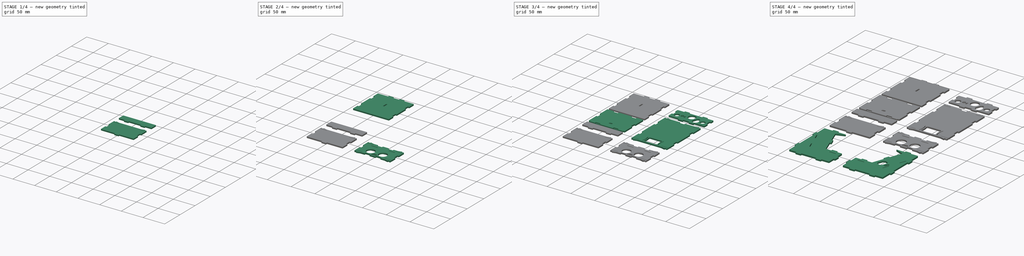
[diagram: build sequence overview — one tinted view per stage of 4, left to right]
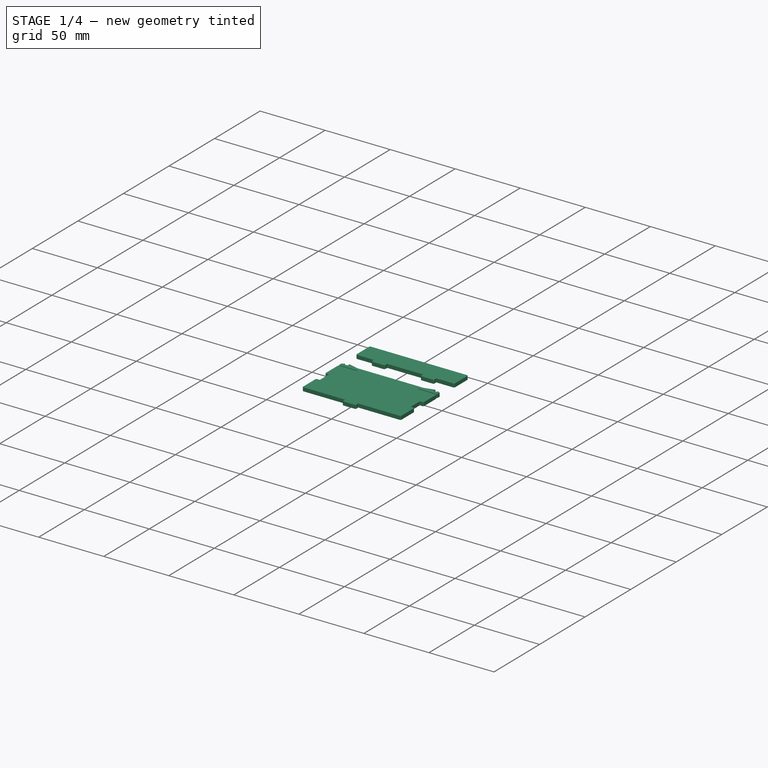
[diagram: stage 1 of 4 — iso view after this stage's code; geometry added in this stage tinted green]
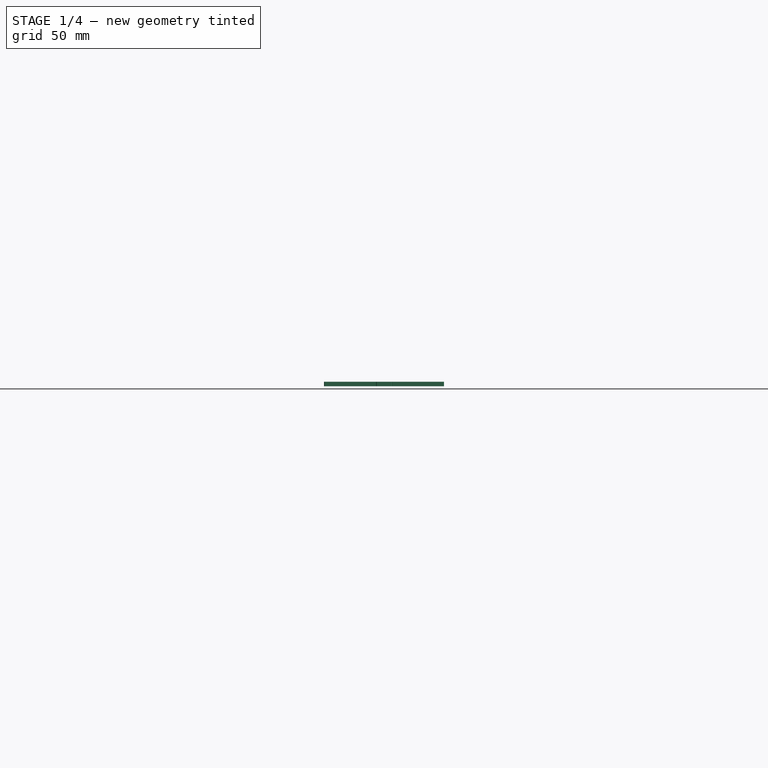
[diagram: stage 1 of 4 — front view after this stage's code; geometry added in this stage tinted green]
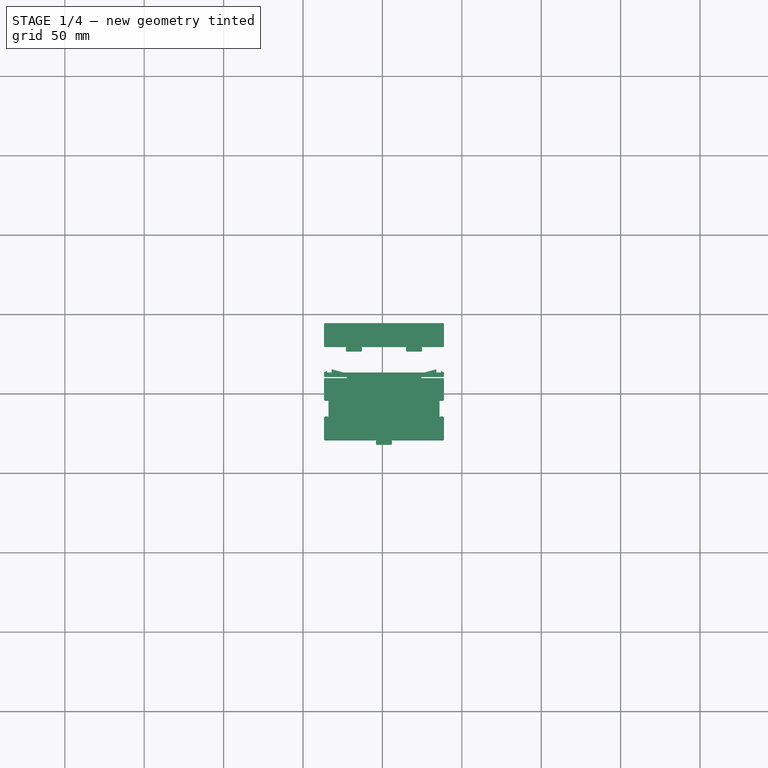
[diagram: stage 1 of 4 — top view after this stage's code; geometry added in this stage tinted green]
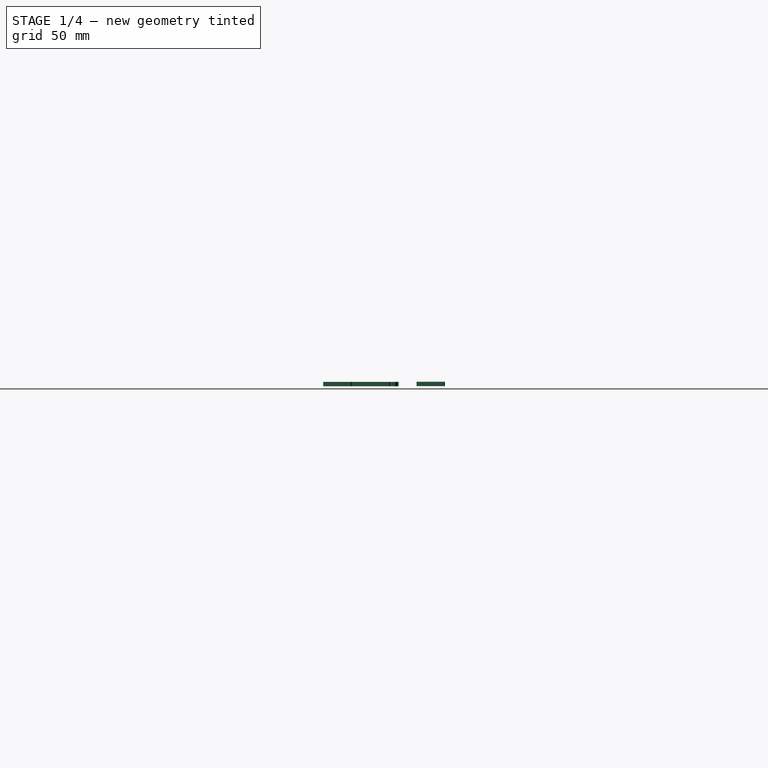
[diagram: stage 1 of 4 — right view after this stage's code; geometry added in this stage tinted green]
FCSTD DOCUMENT  (FreeCAD 1.0R39285 (Git))
Label: TheThing_v81_tabs_export_fix
License: CERN Open Hardware Licence permissive
LicenseURL: https://cern-ohl.web.cern.ch/
objects: Part::Part2DObjectPython×24, Sketcher::SketchObject×13, Part::Feature×11, Part::Chamfer×9, App::DocumentObjectGroup×6
note: 70 computed .brp shape members not serialized (recipe doc carries the construction recipe); baked Part::Feature solids carry a one-line shape summary decoded from their .brp

FEATURE [Part::Chamfer] Chamfer007
  Base = -> test007
  EdgeLinks = -> test007 [Edge4,Edge6,Edge17,Edge20,Edge87,Edge103,Edge106,Edge120]
  Edges = 8 edges r=0.5: [Edge4,Edge6,Edge17,Edge20,Edge87,Edge103,Edge106,Edge120]
FEATURE [Part::Chamfer] Chamfer008
  Base = -> test008
  EdgeLinks = -> test008 [Edge1,Edge2,Edge5,Edge8,Edge28,Edge31,Edge50,Edge53]
  Edges = 8 edges r=0.5: [Edge1,Edge2,Edge5,Edge8,Edge28,Edge31,Edge50,Edge53]
FEATURE [Part::Part2DObjectPython] Shape2DView  # Draft 2D object (typed FeaturePython)
  AutoUpdate = true
  Clip = false
  FuseArch = false
  HiddenLines = false
  InPlace = true
  OnlySolids = false
  Placement = pos=(92,350,3) rot=(0,0,1;1.5708rad)
  Projection = (-0.0061258,0.0189136,0.999802)
  ProjectionMode = 0
  SegmentLength = 0.05
  Tessellation = false
  VisibleOnly = false
FEATURE [Part::Part2DObjectPython] Shape2DView001  # Draft 2D object (typed FeaturePython)
  AutoUpdate = true
  Clip = false
  FuseArch = false
  HiddenLines = false
  InPlace = true
  OnlySolids = false
  Placement = pos=(138,9,3) rot=(0,0,1;3.14159rad)
  Projection = (0,0,1)
  ProjectionMode = 0
  SegmentLength = 0.05
  Tessellation = false
  VisibleOnly = false
FEATURE [App::DocumentObjectGroup] Group001  label="Logos"
  Group = -> [Shape2DView,Shape2DView001]
FEATURE [Part::Part2DObjectPython] Shape2DView002  # Draft 2D object (typed FeaturePython)
  AutoUpdate = true
  Base = -> test009
  Clip = false
  FuseArch = false
  HiddenLines = false
  InPlace = true
  OnlySolids = false
  Projection = (0,0,1)
  ProjectionMode = 0
  SegmentLength = 0.05
  Tessellation = false
  VisibleOnly = false
FEATURE [Part::Part2DObjectPython] Shape2DView003  # Draft 2D object (typed FeaturePython)
  AutoUpdate = true
  Base = -> Chamfer
  Clip = false
  FuseArch = false
  HiddenLines = false
  InPlace = true
  OnlySolids = false
  Projection = (0,0,1)
  ProjectionMode = 0
  SegmentLength = 0.05
  Tessellation = false
  VisibleOnly = false
FEATURE [Part::Part2DObjectPython] Shape2DView004  # Draft 2D object (typed FeaturePython)
  AutoUpdate = true
  Base = -> test010
  Clip = false
  FuseArch = false
  HiddenLines = false
  InPlace = true
  OnlySolids = false
  Projection = (0,0,1)
  ProjectionMode = 0
  SegmentLength = 0.05
  Tessellation = false
  VisibleOnly = false
FEATURE [Part::Part2DObjectPython] Shape2DView005  # Draft 2D object (typed FeaturePython)
  AutoUpdate = true
  Base = -> Chamfer001
  Clip = false
  FuseArch = false
  HiddenLines = false
  InPlace = true
  OnlySolids = false
  Projection = (0,0,1)
  ProjectionMode = 0
  SegmentLength = 0.05
  Tessellation = false
  VisibleOnly = false
FEATURE [Part::Part2DObjectPython] Shape2DView006  # Draft 2D object (typed FeaturePython)
  AutoUpdate = true
  Base = -> Chamfer002
  Clip = false
  FuseArch = false
  HiddenLines = false
  InPlace = true
  OnlySolids = false
  Projection = (0,0,1)
  ProjectionMode = 0
  SegmentLength = 0.05
  Tessellation = false
  VisibleOnly = false
FEATURE [Part::Part2DObjectPython] Shape2DView007  # Draft 2D object (typed FeaturePython)
  AutoUpdate = true
  Base = -> Chamfer003
  Clip = false
  FuseArch = false
  HiddenLines = false
  InPlace = true
  OnlySolids = false
  Projection = (0,0,1)
  ProjectionMode = 0
  SegmentLength = 0.05
  Tessellation = false
  VisibleOnly = false
FEATURE [Part::Part2DObjectPython] Shape2DView008  # Draft 2D object (typed FeaturePython)
  AutoUpdate = true
  Base = -> Chamfer004
  Clip = false
  FuseArch = false
  HiddenLines = false
  InPlace = true
  OnlySolids = false
  Projection = (0,0,1)
  ProjectionMode = 0
  SegmentLength = 0.05
  Tessellation = false
  VisibleOnly = false
FEATURE [Part::Part2DObjectPython] Shape2DView009  # Draft 2D object (typed FeaturePython)
  AutoUpdate = true
  Base = -> Chamfer005
  Clip = false
  FuseArch = false
  HiddenLines = false
  InPlace = true
  OnlySolids = false
  Projection = (0,0,1)
  ProjectionMode = 0
  SegmentLength = 0.05
  Tessellation = false
  VisibleOnly = false
FEATURE [Part::Part2DObjectPython] Shape2DView010  # Draft 2D object (typed FeaturePython)
  AutoUpdate = true
  Base = -> Chamfer006
  Clip = false
  FuseArch = false
  HiddenLines = false
  InPlace = true
  OnlySolids = false
  Projection = (0,0,1)
  ProjectionMode = 0
  SegmentLength = 0.05
  Tessellation = false
  VisibleOnly = false
FEATURE [Part::Part2DObjectPython] Shape2DView011  # Draft 2D object (typed FeaturePython)
  AutoUpdate = true
  Base = -> Chamfer007
  Clip = false
  FuseArch = false
  HiddenLines = false
  InPlace = true
  OnlySolids = false
  Projection = (0,0,1)
  ProjectionMode = 0
  SegmentLength = 0.05
  Tessellation = false
  VisibleOnly = false
FEATURE [Part::Part2DObjectPython] Shape2DView012  # Draft 2D object (typed FeaturePython)
  AutoUpdate = true
  Base = -> Chamfer008
  Clip = false
  FuseArch = false
  HiddenLines = false
  InPlace = true
  OnlySolids = false
  Projection = (0,0,1)
  ProjectionMode = 0
  SegmentLength = 0.05
  Tessellation = false
  VisibleOnly = false
FEATURE [Sketcher::SketchObject] Sketch001
  ArcFitTolerance = 1e-06
  FullyConstrained = false
  MakeInternals = false
  sketch-geometry (156):
    g0: LineSegment StartX=143.7 StartY=115 StartZ=0 EndX=168.3 EndY=115 EndZ=0
    g1: ArcOfCircle CenterX=143.7 CenterY=112.5 CenterZ=0 NormalX=0 NormalY=0 NormalZ=1 AngleXU=1.8e-15 Radius=2.5 StartAngle=1.5708 EndAngle=3.14159
    g2: ArcOfCircle CenterX=193.9 CenterY=112.5 CenterZ=0 NormalX=0 NormalY=0 NormalZ=1 AngleXU=1.8e-15 Radius=2.5 StartAngle=0 EndAngle=1.5708
    g3: LineSegment StartX=141.2 StartY=103.131 StartZ=0 EndX=141.2 EndY=112.5 EndZ=0
    g4: LineSegment StartX=196.4 StartY=112.5 StartZ=0 EndX=196.4 EndY=7.3 EndZ=0
    g5: ArcOfCircle CenterX=143.7 CenterY=103.131 CenterZ=0 NormalX=0 NormalY=0 NormalZ=1 AngleXU=1.8e-15 Radius=2.5 StartAngle=3.14159 EndAngle=4.36332
    g6: ArcOfCircle CenterX=193.9 CenterY=7.3 CenterZ=0 NormalX=0 NormalY=0 NormalZ=1 AngleXU=1.8e-15 Radius=2.5 StartAngle=4.71239 EndAngle=6.28319
    g7: LineSegment StartX=151.813 StartY=97.5174 StartZ=0 EndX=142.845 EndY=100.781 EndZ=0
    g8: LineSegment StartX=193.9 StartY=4.8 StartZ=0 EndX=151.8 EndY=4.8 EndZ=0
    g9: ArcOfCircle CenterX=150.958 CenterY=95.1682 CenterZ=0 NormalX=0 NormalY=0 NormalZ=1 AngleXU=1.8e-15 Radius=2.5 StartAngle=5.93412 EndAngle=7.50492
    g10: ArcOfCircle CenterX=108.7 CenterY=7.3 CenterZ=0 NormalX=0 NormalY=0 NormalZ=1 AngleXU=1.8e-15 Radius=2.5 StartAngle=3.14159 EndAngle=4.71239
    g11: LineSegment StartX=139.597 StartY=56.6449 StartZ=0 EndX=153.307 EndY=94.3131 EndZ=0
    g12: LineSegment StartX=106.2 StartY=7.3 StartZ=0 EndX=106.2 EndY=52.5 EndZ=0
    g13: ArcOfCircle CenterX=137.248 CenterY=57.5 CenterZ=0 NormalX=0 NormalY=0 NormalZ=1 AngleXU=1.8e-15 Radius=2.5 StartAngle=4.71239 EndAngle=5.93412
    g14: ArcOfCircle CenterX=108.7 CenterY=52.5 CenterZ=0 NormalX=0 NormalY=0 NormalZ=1 AngleXU=1.8e-15 Radius=2.5 StartAngle=1.5708 EndAngle=3.14159
    g15: LineSegment StartX=108.7 StartY=55 StartZ=0 EndX=137.248 EndY=55 EndZ=0
    g16: ArcOfCircle CenterX=146.633 CenterY=110.25 CenterZ=0 NormalX=0 NormalY=0 NormalZ=1 AngleXU=1.7e-15 Radius=0.25 StartAngle=3.66519 EndAngle=4.71239
    g17: ArcOfCircle CenterX=146.2 CenterY=110 CenterZ=0 NormalX=0 NormalY=0 NormalZ=1 AngleXU=1.7e-15 Radius=0.25 StartAngle=0.523599 EndAngle=4.18879
    g18: ArcOfCircle CenterX=145.95 CenterY=109.567 CenterZ=0 NormalX=0 NormalY=0 NormalZ=1 AngleXU=1.7e-15 Radius=0.25 StartAngle=-8.9e-15 EndAngle=1.0472
    g19: LineSegment StartX=146.2 StartY=104.993 StartZ=0 EndX=146.2 EndY=109.567 EndZ=0
    g20: ArcOfCircle CenterX=145.95 CenterY=104.993 CenterZ=0 NormalX=0 NormalY=0 NormalZ=1 AngleXU=1.7e-15 Radius=0.25 StartAngle=5.23599 EndAngle=6.28319
    g21: ArcOfCircle CenterX=146.2 CenterY=104.56 CenterZ=0 NormalX=0 NormalY=0 NormalZ=1 AngleXU=1.7e-15 Radius=0.25 StartAngle=2.0944 EndAngle=5.41052
    g22: ArcOfCircle CenterX=146.521 CenterY=104.177 CenterZ=0 NormalX=0 NormalY=0 NormalZ=1 AngleXU=1.7e-15 Radius=0.25 StartAngle=1.22173 EndAngle=2.26893
    g23: LineSegment StartX=159.528 StartY=99.7094 StartZ=0 EndX=146.607 EndY=104.412 EndZ=0
    g24: ArcOfCircle CenterX=159.186 CenterY=98.7697 CenterZ=0 NormalX=0 NormalY=0 NormalZ=1 AngleXU=1.8e-15 Radius=1 StartAngle=5.93412 EndAngle=7.50492
    g25: LineSegment StartX=142.739 StartY=50.658 StartZ=0 EndX=160.126 EndY=98.4277 EndZ=0
    g26: ArcOfCircle CenterX=141.799 CenterY=51 CenterZ=0 NormalX=0 NormalY=0 NormalZ=1 AngleXU=1.8e-15 Radius=1 StartAngle=4.71239 EndAngle=5.93412
    g27: LineSegment StartX=111.633 StartY=50 StartZ=0 EndX=141.799 EndY=50 EndZ=0
    g28: ArcOfCircle CenterX=111.633 CenterY=50.25 CenterZ=0 NormalX=0 NormalY=0 NormalZ=1 AngleXU=1.7e-15 Radius=0.25 StartAngle=3.66519 EndAngle=4.71239
    g29: ArcOfCircle CenterX=111.2 CenterY=50 CenterZ=0 NormalX=0 NormalY=0 NormalZ=1 AngleXU=1.7e-15 Radius=0.25 StartAngle=0.523599 EndAngle=4.18879
    g30: ArcOfCircle CenterX=110.95 CenterY=49.567 CenterZ=0 NormalX=0 NormalY=0 NormalZ=1 AngleXU=1.7e-15 Radius=0.25 StartAngle=1e-15 EndAngle=1.0472
    g31: LineSegment StartX=111.2 StartY=10.233 StartZ=0 EndX=111.2 EndY=49.567 EndZ=0
    g32: ArcOfCircle CenterX=110.95 CenterY=10.233 CenterZ=0 NormalX=0 NormalY=0 NormalZ=1 AngleXU=1.7e-15 Radius=0.25 StartAngle=5.23599 EndAngle=6.28319
    g33: ArcOfCircle CenterX=111.2 CenterY=9.8 CenterZ=0 NormalX=0 NormalY=0 NormalZ=1 AngleXU=1.7e-15 Radius=0.25 StartAngle=2.0944 EndAngle=5.75959
    g34: ArcOfCircle CenterX=111.633 CenterY=9.55 CenterZ=0 NormalX=0 NormalY=0 NormalZ=1 AngleXU=1.7e-15 Radius=0.25 StartAngle=1.5708 EndAngle=2.61799
    g35: LineSegment StartX=190.967 StartY=9.8 StartZ=0 EndX=170.662 EndY=9.8 EndZ=0
    g36: ArcOfCircle CenterX=190.967 CenterY=9.55 CenterZ=0 NormalX=0 NormalY=0 NormalZ=1 AngleXU=1.7e-15 Radius=0.25 StartAngle=0.523599 EndAngle=1.5708
    g37: ArcOfCircle CenterX=191.4 CenterY=9.8 CenterZ=0 NormalX=0 NormalY=0 NormalZ=1 AngleXU=1.7e-15 Radius=0.25 StartAngle=3.66519 EndAngle=7.33038
    g38: ArcOfCircle CenterX=191.65 CenterY=10.233 CenterZ=0 NormalX=0 NormalY=0 NormalZ=1 AngleXU=1.7e-15 Radius=0.25 StartAngle=3.14159 EndAngle=4.18879
    g39: LineSegment StartX=191.4 StartY=109.567 StartZ=0 EndX=191.4 EndY=10.233 EndZ=0
    g40: ArcOfCircle CenterX=191.65 CenterY=109.567 CenterZ=0 NormalX=0 NormalY=0 NormalZ=1 AngleXU=1.7e-15 Radius=0.25 StartAngle=2.0944 EndAngle=3.14159
    g41: ArcOfCircle CenterX=191.4 CenterY=110 CenterZ=0 NormalX=0 NormalY=0 NormalZ=1 AngleXU=1.7e-15 Radius=0.25 StartAngle=5.23599 EndAngle=8.90118
    g42: ArcOfCircle CenterX=190.967 CenterY=110.25 CenterZ=0 NormalX=0 NormalY=0 NormalZ=1 AngleXU=1.7e-15 Radius=0.25 StartAngle=4.71239 EndAngle=5.75959
    g43: LineSegment StartX=146.633 StartY=110 StartZ=0 EndX=168.3 EndY=110 EndZ=0
    g44: LineSegment StartX=163.725 StartY=107.587 StartZ=0 EndX=163.725 EndY=109.7 EndZ=0
    g45: LineSegment StartX=163.725 StartY=109.7 StartZ=0 EndX=164.025 EndY=110 EndZ=0
    g46: ArcOfCircle CenterX=163.725 CenterY=107.4 CenterZ=0 NormalX=0 NormalY=0 NormalZ=1 AngleXU=1.5708 Radius=0.186667 StartAngle=1.5708 EndAngle=4.71239
    g47: ArcOfCircle CenterX=163.725 CenterY=107.4 CenterZ=0 NormalX=0 NormalY=0 NormalZ=1 AngleXU=1.5708 Radius=0.186667 StartAngle=4.71239 EndAngle=6.28319
    g48: LineSegment StartX=155.62 StartY=78.9934 StartZ=0 EndX=153.634 EndY=79.7163 EndZ=0
    g49: LineSegment StartX=153.25 StartY=79.5369 StartZ=0 EndX=153.634 EndY=79.7163 EndZ=0
    g50: ArcOfCircle CenterX=155.796 CenterY=78.9296 CenterZ=0 NormalX=0 NormalY=0 NormalZ=1 AngleXU=2.79253 Radius=0.186667 StartAngle=0 EndAngle=1.5708
    g51: ArcOfCircle CenterX=155.796 CenterY=78.9296 CenterZ=0 NormalX=0 NormalY=0 NormalZ=1 AngleXU=2.79253 Radius=0.186667 StartAngle=1.5708 EndAngle=4.71239
    g52: LineSegment StartX=150.163 StartY=70.1784 StartZ=0 EndX=149.984 EndY=70.5629 EndZ=0
    g53: LineSegment StartX=155.86 StartY=79.105 StartZ=0 EndX=163.8 EndY=100.921 EndZ=0
    g54: LineSegment StartX=152.149 StartY=69.4556 StartZ=0 EndX=150.163 EndY=70.1784 EndZ=0
    g55: LineSegment StartX=163.8 StartY=100.921 StartZ=0 EndX=148.8 EndY=106.381 EndZ=0
    g56: ArcOfCircle CenterX=152.324 CenterY=69.3917 CenterZ=0 NormalX=0 NormalY=0 NormalZ=1 AngleXU=2.79253 Radius=0.186667 StartAngle=4.71239 EndAngle=6.28319
    g57: LineSegment StartX=148.8 StartY=106.381 StartZ=0 EndX=148.8 EndY=107.4 EndZ=0
    g58: ArcOfCircle CenterX=152.324 CenterY=69.3917 CenterZ=0 NormalX=0 NormalY=0 NormalZ=1 AngleXU=2.79253 Radius=0.186667 StartAngle=1.5708 EndAngle=4.71239
    g59: LineSegment StartX=148.8 StartY=107.4 StartZ=0 EndX=163.538 EndY=107.4 EndZ=0
    g60: LineSegment StartX=144.32 StartY=47.4 StartZ=0 EndX=152.26 EndY=69.2163 EndZ=0
    g61: LineSegment StartX=134.322 StartY=47.4 StartZ=0 EndX=144.32 EndY=47.4 EndZ=0
    g62: ArcOfCircle CenterX=134.135 CenterY=47.4 CenterZ=0 NormalX=0 NormalY=0 NormalZ=1 AngleXU=1.5708 Radius=0.186667 StartAngle=1.5708 EndAngle=4.71239
    g63: ArcOfCircle CenterX=134.135 CenterY=47.4 CenterZ=0 NormalX=0 NormalY=0 NormalZ=1 AngleXU=1.5708 Radius=0.186667 StartAngle=0 EndAngle=1.5708
    g64: LineSegment StartX=134.135 StartY=47.5867 StartZ=0 EndX=134.135 EndY=49.7 EndZ=0
    g65: LineSegment StartX=133.835 StartY=50 StartZ=0 EndX=134.135 EndY=49.7 EndZ=0
    g66: LineSegment StartX=173.575 StartY=110 StartZ=0 EndX=173.875 EndY=109.7 EndZ=0
    g67: LineSegment StartX=173.875 StartY=107.587 StartZ=0 EndX=173.875 EndY=109.7 EndZ=0
    g68: LineSegment StartX=123.985 StartY=49.7 StartZ=0 EndX=124.285 EndY=50 EndZ=0
    g69: ArcOfCircle CenterX=173.875 CenterY=107.4 CenterZ=0 NormalX=0 NormalY=0 NormalZ=1 AngleXU=1.5708 Radius=0.186667 StartAngle=0 EndAngle=1.5708
    g70: LineSegment StartX=123.985 StartY=47.5867 StartZ=0 EndX=123.985 EndY=49.7 EndZ=0
    g71: ArcOfCircle CenterX=173.875 CenterY=107.4 CenterZ=0 NormalX=0 NormalY=0 NormalZ=1 AngleXU=1.5708 Radius=0.186667 StartAngle=1.5708 EndAngle=4.71239
    g72: ArcOfCircle CenterX=123.985 CenterY=47.4 CenterZ=0 NormalX=0 NormalY=0 NormalZ=1 AngleXU=1.5708 Radius=0.186667 StartAngle=4.71239 EndAngle=6.28319
    g73: LineSegment StartX=174.062 StartY=107.4 StartZ=0 EndX=188.3 EndY=107.4 EndZ=0
    g74: ArcOfCircle CenterX=123.985 CenterY=47.4 CenterZ=0 NormalX=0 NormalY=0 NormalZ=1 AngleXU=1.5708 Radius=0.186667 StartAngle=1.5708 EndAngle=4.71239
    g75: LineSegment StartX=188.3 StartY=107.4 StartZ=0 EndX=188.8 EndY=106.9 EndZ=0
    g76: LineSegment StartX=114.3 StartY=47.4 StartZ=0 EndX=123.798 EndY=47.4 EndZ=0
    g77: LineSegment StartX=188.8 StartY=106.9 StartZ=0 EndX=188.8 EndY=88.9117 EndZ=0
    g78: LineSegment StartX=113.8 StartY=46.9 StartZ=0 EndX=114.3 EndY=47.4 EndZ=0
    g79: ArcOfCircle CenterX=188.8 CenterY=88.725 CenterZ=0 NormalX=0 NormalY=0 NormalZ=1 AngleXU=2e-16 Radius=0.186667 StartAngle=1.5708 EndAngle=4.71239
    g80: LineSegment StartX=113.8 StartY=35.1617 StartZ=0 EndX=113.8 EndY=46.9 EndZ=0
    g81: ArcOfCircle CenterX=188.8 CenterY=88.725 CenterZ=0 NormalX=0 NormalY=0 NormalZ=1 AngleXU=2e-16 Radius=0.186667 StartAngle=4.71239 EndAngle=6.28319
    g82: ArcOfCircle CenterX=113.8 CenterY=34.975 CenterZ=0 NormalX=0 NormalY=0 NormalZ=1 AngleXU=-3.14159 Radius=0.186667 StartAngle=1.5708 EndAngle=4.71239
    g83: LineSegment StartX=188.987 StartY=88.725 StartZ=0 EndX=191.1 EndY=88.725 EndZ=0
    g84: ArcOfCircle CenterX=113.8 CenterY=34.975 CenterZ=0 NormalX=0 NormalY=0 NormalZ=1 AngleXU=-3.14159 Radius=0.186667 StartAngle=0 EndAngle=1.5708
    g85: LineSegment StartX=191.1 StartY=88.725 StartZ=0 EndX=191.4 EndY=88.425 EndZ=0
    g86: LineSegment StartX=113.613 StartY=34.975 StartZ=0 EndX=111.5 EndY=34.975 EndZ=0
    g87: LineSegment StartX=111.2 StartY=34.675 StartZ=0 EndX=111.5 EndY=34.975 EndZ=0
    g88: LineSegment StartX=191.4 StartY=78.875 StartZ=0 EndX=191.1 EndY=78.575 EndZ=0
    g89: LineSegment StartX=188.987 StartY=78.575 StartZ=0 EndX=191.1 EndY=78.575 EndZ=0
    g90: LineSegment StartX=111.5 StartY=24.825 StartZ=0 EndX=111.2 EndY=25.125 EndZ=0
    g91: ArcOfCircle CenterX=188.8 CenterY=78.575 CenterZ=0 NormalX=0 NormalY=0 NormalZ=1 AngleXU=2e-16 Radius=0.186667 StartAngle=0 EndAngle=1.5708
    g92: LineSegment StartX=113.613 StartY=24.825 StartZ=0 EndX=111.5 EndY=24.825 EndZ=0
    g93: ArcOfCircle CenterX=188.8 CenterY=78.575 CenterZ=0 NormalX=0 NormalY=0 NormalZ=1 AngleXU=2e-16 Radius=0.186667 StartAngle=1.5708 EndAngle=4.71239
    g94: ArcOfCircle CenterX=113.8 CenterY=24.825 CenterZ=0 NormalX=0 NormalY=0 NormalZ=1 AngleXU=-3.14159 Radius=0.186667 StartAngle=4.71239 EndAngle=6.28319
    g95: LineSegment StartX=188.8 StartY=78.3883 StartZ=0 EndX=188.8 EndY=41.4117 EndZ=0
    g96: ArcOfCircle CenterX=113.8 CenterY=24.825 CenterZ=0 NormalX=0 NormalY=0 NormalZ=1 AngleXU=-3.14159 Radius=0.186667 StartAngle=1.5708 EndAngle=4.71239
    g97: ArcOfCircle CenterX=188.8 CenterY=41.225 CenterZ=0 NormalX=0 NormalY=0 NormalZ=1 AngleXU=2e-16 Radius=0.186667 StartAngle=1.5708 EndAngle=4.71239
    g98: LineSegment StartX=113.8 StartY=12.9 StartZ=0 EndX=113.8 EndY=24.6383 EndZ=0
    g99: ArcOfCircle CenterX=188.8 CenterY=41.225 CenterZ=0 NormalX=0 NormalY=0 NormalZ=1 AngleXU=2e-16 Radius=0.186667 StartAngle=4.71239 EndAngle=6.28319
    g100: LineSegment StartX=114.3 StartY=12.4 StartZ=0 EndX=113.8 EndY=12.9 EndZ=0
    g101: LineSegment StartX=188.987 StartY=41.225 StartZ=0 EndX=191.1 EndY=41.225 EndZ=0
    g102: LineSegment StartX=127.288 StartY=12.4 StartZ=0 EndX=114.3 EndY=12.4 EndZ=0
    g103: LineSegment StartX=191.1 StartY=41.225 StartZ=0 EndX=191.4 EndY=40.925 EndZ=0
    g104: ArcOfCircle CenterX=127.475 CenterY=12.4 CenterZ=0 NormalX=0 NormalY=0 NormalZ=1 AngleXU=-1.5708 Radius=0.186667 StartAngle=1.5708 EndAngle=4.71239
    g105: ArcOfCircle CenterX=127.475 CenterY=12.4 CenterZ=0 NormalX=0 NormalY=0 NormalZ=1 AngleXU=-1.5708 Radius=0.186667 StartAngle=0 EndAngle=1.5708
    g106: LineSegment StartX=191.4 StartY=31.375 StartZ=0 EndX=191.1 EndY=31.075 EndZ=0
    g107: LineSegment StartX=127.475 StartY=12.2133 StartZ=0 EndX=127.475 EndY=10.1 EndZ=0
    g108: LineSegment StartX=188.987 StartY=31.075 StartZ=0 EndX=191.1 EndY=31.075 EndZ=0
    g109: LineSegment StartX=127.775 StartY=9.8 StartZ=0 EndX=127.475 EndY=10.1 EndZ=0
    g110: ArcOfCircle CenterX=188.8 CenterY=31.075 CenterZ=0 NormalX=0 NormalY=0 NormalZ=1 AngleXU=2e-16 Radius=0.186667 StartAngle=0 EndAngle=1.5708
    g111: ArcOfCircle CenterX=188.8 CenterY=31.075 CenterZ=0 NormalX=0 NormalY=0 NormalZ=1 AngleXU=2e-16 Radius=0.186667 StartAngle=1.5708 EndAngle=4.71239
    g112: LineSegment StartX=137.625 StartY=10.1 StartZ=0 EndX=137.325 EndY=9.8 EndZ=0
    g113: LineSegment StartX=188.8 StartY=30.8883 StartZ=0 EndX=188.8 EndY=12.9 EndZ=0
    g114: LineSegment StartX=137.625 StartY=12.2133 StartZ=0 EndX=137.625 EndY=10.1 EndZ=0
    g115: LineSegment StartX=188.8 StartY=12.9 StartZ=0 EndX=188.3 EndY=12.4 EndZ=0
    g116: ArcOfCircle CenterX=137.625 CenterY=12.4 CenterZ=0 NormalX=0 NormalY=0 NormalZ=1 AngleXU=-1.5708 Radius=0.186667 StartAngle=4.71239 EndAngle=6.28319
    g117: LineSegment StartX=188.3 StartY=12.4 StartZ=0 EndX=175.312 EndY=12.4 EndZ=0
    g118: ArcOfCircle CenterX=137.625 CenterY=12.4 CenterZ=0 NormalX=0 NormalY=0 NormalZ=1 AngleXU=-1.5708 Radius=0.186667 StartAngle=1.5708 EndAngle=4.71239
    g119: ArcOfCircle CenterX=175.125 CenterY=12.4 CenterZ=0 NormalX=0 NormalY=0 NormalZ=1 AngleXU=-1.5708 Radius=0.186667 StartAngle=1.5708 EndAngle=4.71239
    g120: LineSegment StartX=164.788 StartY=12.4 StartZ=0 EndX=137.812 EndY=12.4 EndZ=0
    g121: ArcOfCircle CenterX=175.125 CenterY=12.4 CenterZ=0 NormalX=0 NormalY=0 NormalZ=1 AngleXU=-1.5708 Radius=0.186667 StartAngle=4.71239 EndAngle=6.28319
    g122: ArcOfCircle CenterX=164.975 CenterY=12.4 CenterZ=0 NormalX=0 NormalY=0 NormalZ=1 AngleXU=-1.5708 Radius=0.186667 StartAngle=1.5708 EndAngle=4.71239
    g123: LineSegment StartX=175.125 StartY=12.2133 StartZ=0 EndX=175.125 EndY=10.1 EndZ=0
    g124: ArcOfCircle CenterX=164.975 CenterY=12.4 CenterZ=0 NormalX=0 NormalY=0 NormalZ=1 AngleXU=-1.5708 Radius=0.186667 StartAngle=0 EndAngle=1.5708
    g125: LineSegment StartX=175.125 StartY=10.1 StartZ=0 EndX=174.825 EndY=9.8 EndZ=0
    g126: LineSegment StartX=164.975 StartY=12.2133 StartZ=0 EndX=164.975 EndY=10.1 EndZ=0
    g127: LineSegment StartX=165.275 StartY=9.8 StartZ=0 EndX=164.975 EndY=10.1 EndZ=0
    g128: LineSegment StartX=159.782 StartY=63.0476 StartZ=0 EndX=162.131 EndY=62.1926 EndZ=0
    g129: ArcOfCircle CenterX=160.592 CenterY=57.964 CenterZ=0 NormalX=0 NormalY=0 NormalZ=1 AngleXU=2e-16 Radius=4.5 StartAngle=5.93412 EndAngle=7.50492
    g130: LineSegment StartX=164.821 StartY=56.4249 StartZ=0 EndX=162.597 EndY=50.3169 EndZ=0
    g131: ArcOfCircle CenterX=158.369 CenterY=51.856 CenterZ=0 NormalX=0 NormalY=0 NormalZ=1 AngleXU=2e-16 Radius=4.5 StartAngle=4.36332 EndAngle=5.93412
    g132: LineSegment StartX=156.83 StartY=47.6273 StartZ=0 EndX=154.48 EndY=48.4824 EndZ=0
    g133: ArcOfCircle CenterX=156.02 CenterY=52.711 CenterZ=0 NormalX=0 NormalY=0 NormalZ=1 AngleXU=2e-16 Radius=4.5 StartAngle=2.79253 EndAngle=4.36332
    g134: LineSegment StartX=151.791 StartY=54.2501 StartZ=0 EndX=154.014 EndY=60.3581 EndZ=0
    g135: ArcOfCircle CenterX=158.243 CenterY=58.819 CenterZ=0 NormalX=0 NormalY=0 NormalZ=1 AngleXU=2e-16 Radius=4.5 StartAngle=1.22173 EndAngle=2.79253
    g136: LineSegment StartX=183.606 StartY=81.6897 StartZ=0 EndX=185.024 EndY=81.1732 EndZ=0
    g137: LineSegment StartX=185.024 StartY=81.1732 StartZ=0 EndX=180.92 EndY=69.8969 EndZ=0
    g138: LineSegment StartX=179.501 StartY=70.4134 StartZ=0 EndX=180.92 EndY=69.8969 EndZ=0
    g139: LineSegment StartX=183.606 StartY=81.6897 StartZ=0 EndX=179.501 EndY=70.4134 EndZ=0
    g140: LineSegment StartX=172.661 StartY=51.6195 StartZ=0 EndX=174.08 EndY=51.1031 EndZ=0
    g141: LineSegment StartX=174.08 StartY=51.1031 StartZ=0 EndX=169.976 EndY=39.8268 EndZ=0
    g142: LineSegment StartX=168.557 StartY=40.3432 StartZ=0 EndX=169.976 EndY=39.8268 EndZ=0
    g143: LineSegment StartX=172.661 StartY=51.6195 StartZ=0 EndX=168.557 EndY=40.3432 EndZ=0
    g144: LineSegment StartX=121.5 StartY=42.51 StartZ=0 EndX=121.5 EndY=41 EndZ=0
    g145: LineSegment StartX=121.5 StartY=42.51 StartZ=0 EndX=133.5 EndY=42.51 EndZ=0
    g146: LineSegment StartX=133.5 StartY=42.51 StartZ=0 EndX=133.5 EndY=41 EndZ=0
    g147: LineSegment StartX=121.5 StartY=41 StartZ=0 EndX=133.5 EndY=41 EndZ=0
    g148: ArcOfCircle CenterX=169.302 CenterY=53.7467 CenterZ=0 NormalX=0 NormalY=0 NormalZ=1 AngleXU=2e-16 Radius=2.5 StartAngle=5.93412 EndAngle=9.07571
    g149: LineSegment StartX=171.651 StartY=52.8917 StartZ=0 EndX=170.249 EndY=49.0389 EndZ=0
    g150: ArcOfCircle CenterX=167.899 CenterY=49.894 CenterZ=0 NormalX=0 NormalY=0 NormalZ=1 AngleXU=2e-16 Radius=2.5 StartAngle=2.79253 EndAngle=5.93412
    g151: LineSegment StartX=166.952 StartY=54.6018 StartZ=0 EndX=165.55 EndY=50.749 EndZ=0
    g152: LineSegment StartX=169.3 StartY=110 StartZ=0 EndX=190.967 EndY=110 EndZ=0
    g153: LineSegment StartX=169.3 StartY=115 StartZ=0 EndX=193.9 EndY=115 EndZ=0
    g154: LineSegment StartX=150.8 StartY=4.8 StartZ=0 EndX=108.7 EndY=4.8 EndZ=0
    g155: LineSegment StartX=169.662 StartY=9.8 StartZ=0 EndX=111.633 EndY=9.8 EndZ=0
  constraints (16):
    c: PointOnObject(g65,g27)
    c: PointOnObject(g68,g27)
    c: PointOnObject(g87,g31)
    c: PointOnObject(g90,g31)
    c: PointOnObject(g109,g155)
    c: PointOnObject(g112,g155)
    c: PointOnObject(g125,g35)
    c: PointOnObject(g127,g155)
    c: PointOnObject(g106,g39)
    c: PointOnObject(g103,g39)
    c: PointOnObject(g88,g39)
    c: PointOnObject(g85,g39)
    c: PointOnObject(g66,g152)
    c: PointOnObject(g45,g43)
    c: PointOnObject(g49,g25)
    c: PointOnObject(g52,g25)
FEATURE [Sketcher::SketchObject] Sketch002
  ArcFitTolerance = 1e-06
  FullyConstrained = false
  MakeInternals = false
  sketch-geometry (144):
    g0: LineSegment StartX=58.3 StartY=115 StartZ=0 EndX=33.7 EndY=115 EndZ=0
    g1: ArcOfCircle CenterX=58.3 CenterY=112.5 CenterZ=0 NormalX=0 NormalY=0 NormalZ=1 AngleXU=-3.14159 Radius=2.5 StartAngle=3.14159 EndAngle=4.71239
    g2: ArcOfCircle CenterX=8.1 CenterY=112.5 CenterZ=0 NormalX=0 NormalY=0 NormalZ=1 AngleXU=-3.14159 Radius=2.5 StartAngle=4.71239 EndAngle=6.28319
    g3: LineSegment StartX=60.8 StartY=103.131 StartZ=0 EndX=60.8 EndY=112.5 EndZ=0
    g4: LineSegment StartX=5.6 StartY=112.5 StartZ=0 EndX=5.6 EndY=7.3 EndZ=0
    g5: ArcOfCircle CenterX=58.3 CenterY=103.131 CenterZ=0 NormalX=0 NormalY=0 NormalZ=1 AngleXU=-3.14159 Radius=2.5 StartAngle=1.91986 EndAngle=3.14159
    g6: ArcOfCircle CenterX=8.1 CenterY=7.3 CenterZ=0 NormalX=0 NormalY=0 NormalZ=1 AngleXU=-3.14159 Radius=2.5 StartAngle=0 EndAngle=1.5708
    g7: LineSegment StartX=50.1871 StartY=97.5174 StartZ=0 EndX=59.1551 EndY=100.781 EndZ=0
    g8: LineSegment StartX=8.1 StartY=4.8 StartZ=0 EndX=50.2 EndY=4.8 EndZ=0
    g9: ArcOfCircle CenterX=51.0422 CenterY=95.1682 CenterZ=0 NormalX=0 NormalY=0 NormalZ=1 AngleXU=-3.14159 Radius=2.5 StartAngle=5.06145 EndAngle=6.63225
    g10: ArcOfCircle CenterX=93.3 CenterY=7.3 CenterZ=0 NormalX=0 NormalY=0 NormalZ=1 AngleXU=-3.14159 Radius=2.5 StartAngle=1.5708 EndAngle=3.14159
    g11: LineSegment StartX=62.403 StartY=56.6449 StartZ=0 EndX=48.6929 EndY=94.3131 EndZ=0
    g12: LineSegment StartX=95.8 StartY=7.3 StartZ=0 EndX=95.8 EndY=52.5 EndZ=0
    g13: ArcOfCircle CenterX=64.7523 CenterY=57.5 CenterZ=0 NormalX=0 NormalY=0 NormalZ=1 AngleXU=-3.14159 Radius=2.5 StartAngle=0.349066 EndAngle=1.5708
    g14: ArcOfCircle CenterX=93.3 CenterY=52.5 CenterZ=0 NormalX=0 NormalY=0 NormalZ=1 AngleXU=-3.14159 Radius=2.5 StartAngle=3.14159 EndAngle=4.71239
    g15: LineSegment StartX=93.3 StartY=55 StartZ=0 EndX=64.7523 EndY=55 EndZ=0
    g16: ArcOfCircle CenterX=55.367 CenterY=110.25 CenterZ=0 NormalX=0 NormalY=0 NormalZ=1 AngleXU=-3.14159 Radius=0.25 StartAngle=1.5708 EndAngle=2.61799
    g17: ArcOfCircle CenterX=55.8 CenterY=110 CenterZ=0 NormalX=0 NormalY=0 NormalZ=1 AngleXU=-3.14159 Radius=0.25 StartAngle=2.0944 EndAngle=5.75959
    g18: ArcOfCircle CenterX=56.05 CenterY=109.567 CenterZ=0 NormalX=0 NormalY=0 NormalZ=1 AngleXU=-3.14159 Radius=0.25 StartAngle=5.23599 EndAngle=6.28319
    g19: LineSegment StartX=55.8 StartY=104.993 StartZ=0 EndX=55.8 EndY=109.567 EndZ=0
    g20: ArcOfCircle CenterX=56.05 CenterY=104.993 CenterZ=0 NormalX=0 NormalY=0 NormalZ=1 AngleXU=-3.14159 Radius=0.25 StartAngle=0 EndAngle=1.0472
    g21: ArcOfCircle CenterX=55.8 CenterY=104.56 CenterZ=0 NormalX=0 NormalY=0 NormalZ=1 AngleXU=-3.14159 Radius=0.25 StartAngle=0.872665 EndAngle=4.18879
    g22: ArcOfCircle CenterX=55.4786 CenterY=104.177 CenterZ=0 NormalX=0 NormalY=0 NormalZ=1 AngleXU=-3.14159 Radius=0.25 StartAngle=4.01426 EndAngle=5.06145
    g23: LineSegment StartX=42.4721 StartY=99.7094 StartZ=0 EndX=55.3931 EndY=104.412 EndZ=0
    g24: ArcOfCircle CenterX=42.8142 CenterY=98.7697 CenterZ=0 NormalX=0 NormalY=0 NormalZ=1 AngleXU=-3.14159 Radius=1 StartAngle=5.06145 EndAngle=6.63225
    g25: LineSegment StartX=59.2612 StartY=50.658 StartZ=0 EndX=41.8745 EndY=98.4277 EndZ=0
    g26: ArcOfCircle CenterX=60.2009 CenterY=51 CenterZ=0 NormalX=0 NormalY=0 NormalZ=1 AngleXU=-3.14159 Radius=1 StartAngle=0.349066 EndAngle=1.5708
    g27: LineSegment StartX=90.367 StartY=50 StartZ=0 EndX=60.2009 EndY=50 EndZ=0
    g28: ArcOfCircle CenterX=90.367 CenterY=50.25 CenterZ=0 NormalX=0 NormalY=0 NormalZ=1 AngleXU=-3.14159 Radius=0.25 StartAngle=1.5708 EndAngle=2.61799
    g29: ArcOfCircle CenterX=90.8 CenterY=50 CenterZ=0 NormalX=0 NormalY=0 NormalZ=1 AngleXU=-3.14159 Radius=0.25 StartAngle=2.0944 EndAngle=5.75959
    g30: ArcOfCircle CenterX=91.05 CenterY=49.567 CenterZ=0 NormalX=0 NormalY=0 NormalZ=1 AngleXU=-3.14159 Radius=0.25 StartAngle=5.23599 EndAngle=6.28319
    g31: LineSegment StartX=90.8 StartY=10.233 StartZ=0 EndX=90.8 EndY=49.567 EndZ=0
    g32: ArcOfCircle CenterX=91.05 CenterY=10.233 CenterZ=0 NormalX=0 NormalY=0 NormalZ=1 AngleXU=-3.14159 Radius=0.25 StartAngle=0 EndAngle=1.0472
    g33: ArcOfCircle CenterX=90.8 CenterY=9.8 CenterZ=0 NormalX=0 NormalY=0 NormalZ=1 AngleXU=-3.14159 Radius=0.25 StartAngle=0.523599 EndAngle=4.18879
    g34: ArcOfCircle CenterX=90.367 CenterY=9.55 CenterZ=0 NormalX=0 NormalY=0 NormalZ=1 AngleXU=-3.14159 Radius=0.25 StartAngle=3.66519 EndAngle=4.71239
    g35: LineSegment StartX=11.033 StartY=9.8 StartZ=0 EndX=31.5632 EndY=9.8 EndZ=0
    g36: ArcOfCircle CenterX=11.033 CenterY=9.55 CenterZ=0 NormalX=0 NormalY=0 NormalZ=1 AngleXU=-3.14159 Radius=0.25 StartAngle=4.71239 EndAngle=5.75959
    g37: ArcOfCircle CenterX=10.6 CenterY=9.8 CenterZ=0 NormalX=0 NormalY=0 NormalZ=1 AngleXU=-3.14159 Radius=0.25 StartAngle=5.23599 EndAngle=8.90118
    g38: ArcOfCircle CenterX=10.35 CenterY=10.233 CenterZ=0 NormalX=0 NormalY=0 NormalZ=1 AngleXU=-3.14159 Radius=0.25 StartAngle=2.0944 EndAngle=3.14159
    g39: LineSegment StartX=10.6 StartY=109.567 StartZ=0 EndX=10.6 EndY=10.233 EndZ=0
    g40: ArcOfCircle CenterX=10.35 CenterY=109.567 CenterZ=0 NormalX=0 NormalY=0 NormalZ=1 AngleXU=-3.14159 Radius=0.25 StartAngle=3.14159 EndAngle=4.18879
    g41: ArcOfCircle CenterX=10.6 CenterY=110 CenterZ=0 NormalX=0 NormalY=0 NormalZ=1 AngleXU=-3.14159 Radius=0.25 StartAngle=3.66519 EndAngle=7.33038
    g42: ArcOfCircle CenterX=11.033 CenterY=110.25 CenterZ=0 NormalX=0 NormalY=0 NormalZ=1 AngleXU=-3.14159 Radius=0.25 StartAngle=0.523599 EndAngle=1.5708
    g43: LineSegment StartX=55.367 StartY=110 StartZ=0 EndX=33.7 EndY=110 EndZ=0
    g44: LineSegment StartX=38.275 StartY=107.587 StartZ=0 EndX=38.275 EndY=109.7 EndZ=0
    g45: LineSegment StartX=38.275 StartY=109.7 StartZ=0 EndX=37.975 EndY=110 EndZ=0
    g46: ArcOfCircle CenterX=38.275 CenterY=107.4 CenterZ=0 NormalX=0 NormalY=0 NormalZ=1 AngleXU=1.5708 Radius=0.186667 StartAngle=0 EndAngle=1.5708
    g47: ArcOfCircle CenterX=38.275 CenterY=107.4 CenterZ=0 NormalX=0 NormalY=0 NormalZ=1 AngleXU=1.5708 Radius=0.186667 StartAngle=1.5708 EndAngle=4.71239
    g48: LineSegment StartX=28.425 StartY=110 StartZ=0 EndX=28.125 EndY=109.7 EndZ=0
    g49: LineSegment StartX=53.2 StartY=107.4 StartZ=0 EndX=38.4617 EndY=107.4 EndZ=0
    g50: LineSegment StartX=28.125 StartY=107.587 StartZ=0 EndX=28.125 EndY=109.7 EndZ=0
    g51: LineSegment StartX=53.2 StartY=106.381 StartZ=0 EndX=53.2 EndY=107.4 EndZ=0
    g52: ArcOfCircle CenterX=28.125 CenterY=107.4 CenterZ=0 NormalX=0 NormalY=0 NormalZ=1 AngleXU=1.5708 Radius=0.186667 StartAngle=4.71239 EndAngle=6.28319
    g53: LineSegment StartX=38.2 StartY=100.921 StartZ=0 EndX=53.2 EndY=106.381 EndZ=0
    g54: ArcOfCircle CenterX=28.125 CenterY=107.4 CenterZ=0 NormalX=0 NormalY=0 NormalZ=1 AngleXU=1.5708 Radius=0.186667 StartAngle=1.5708 EndAngle=4.71239
    g55: LineSegment StartX=46.1405 StartY=79.105 StartZ=0 EndX=38.2 EndY=100.921 EndZ=0
    g56: LineSegment StartX=27.9383 StartY=107.4 StartZ=0 EndX=13.7 EndY=107.4 EndZ=0
    g57: ArcOfCircle CenterX=46.2043 CenterY=78.9296 CenterZ=0 NormalX=0 NormalY=0 NormalZ=1 AngleXU=0.349066 Radius=0.186667 StartAngle=1.5708 EndAngle=4.71239
    g58: LineSegment StartX=13.7 StartY=107.4 StartZ=0 EndX=13.2 EndY=106.9 EndZ=0
    g59: ArcOfCircle CenterX=46.2043 CenterY=78.9296 CenterZ=0 NormalX=0 NormalY=0 NormalZ=1 AngleXU=0.349066 Radius=0.186667 StartAngle=4.71239 EndAngle=6.28319
    g60: LineSegment StartX=13.2 StartY=106.9 StartZ=0 EndX=13.2 EndY=88.9117 EndZ=0
    g61: LineSegment StartX=46.3797 StartY=78.9934 StartZ=0 EndX=48.3656 EndY=79.7163 EndZ=0
    g62: ArcOfCircle CenterX=13.2 CenterY=88.725 CenterZ=0 NormalX=0 NormalY=0 NormalZ=1 AngleXU=3.14159 Radius=0.186667 StartAngle=1.5708 EndAngle=4.71239
    g63: LineSegment StartX=48.7501 StartY=79.5369 StartZ=0 EndX=48.3656 EndY=79.7163 EndZ=0
    g64: ArcOfCircle CenterX=13.2 CenterY=88.725 CenterZ=0 NormalX=0 NormalY=0 NormalZ=1 AngleXU=3.14159 Radius=0.186667 StartAngle=0 EndAngle=1.5708
    g65: LineSegment StartX=13.0133 StartY=88.725 StartZ=0 EndX=10.9 EndY=88.725 EndZ=0
    g66: LineSegment StartX=51.8371 StartY=70.1784 StartZ=0 EndX=52.0164 EndY=70.5629 EndZ=0
    g67: LineSegment StartX=10.9 StartY=88.725 StartZ=0 EndX=10.6 EndY=88.425 EndZ=0
    g68: LineSegment StartX=49.8512 StartY=69.4556 StartZ=0 EndX=51.8371 EndY=70.1784 EndZ=0
    g69: ArcOfCircle CenterX=49.6758 CenterY=69.3917 CenterZ=0 NormalX=0 NormalY=0 NormalZ=1 AngleXU=0.349066 Radius=0.186667 StartAngle=0 EndAngle=1.5708
    g70: LineSegment StartX=10.6 StartY=78.875 StartZ=0 EndX=10.9 EndY=78.575 EndZ=0
    g71: ArcOfCircle CenterX=49.6758 CenterY=69.3917 CenterZ=0 NormalX=0 NormalY=0 NormalZ=1 AngleXU=0.349066 Radius=0.186667 StartAngle=1.5708 EndAngle=4.71239
    g72: LineSegment StartX=13.0133 StartY=78.575 StartZ=0 EndX=10.9 EndY=78.575 EndZ=0
    g73: LineSegment StartX=57.6802 StartY=47.4 StartZ=0 EndX=49.7397 EndY=69.2163 EndZ=0
    g74: ArcOfCircle CenterX=13.2 CenterY=78.575 CenterZ=0 NormalX=0 NormalY=0 NormalZ=1 AngleXU=3.14159 Radius=0.186667 StartAngle=4.71239 EndAngle=6.28319
    g75: LineSegment StartX=67.6784 StartY=47.4 StartZ=0 EndX=57.6802 EndY=47.4 EndZ=0
    g76: ArcOfCircle CenterX=13.2 CenterY=78.575 CenterZ=0 NormalX=0 NormalY=0 NormalZ=1 AngleXU=3.14159 Radius=0.186667 StartAngle=1.5708 EndAngle=4.71239
    g77: ArcOfCircle CenterX=67.8651 CenterY=47.4 CenterZ=0 NormalX=0 NormalY=0 NormalZ=1 AngleXU=1.5708 Radius=0.186667 StartAngle=1.5708 EndAngle=4.71239
    g78: LineSegment StartX=13.2 StartY=78.3883 StartZ=0 EndX=13.2 EndY=41.4117 EndZ=0
    g79: ArcOfCircle CenterX=67.8651 CenterY=47.4 CenterZ=0 NormalX=0 NormalY=0 NormalZ=1 AngleXU=1.5708 Radius=0.186667 StartAngle=4.71239 EndAngle=6.28319
    g80: ArcOfCircle CenterX=13.2 CenterY=41.225 CenterZ=0 NormalX=0 NormalY=0 NormalZ=1 AngleXU=3.14159 Radius=0.186667 StartAngle=1.5708 EndAngle=4.71239
    g81: LineSegment StartX=67.8651 StartY=47.5867 StartZ=0 EndX=67.8651 EndY=49.7 EndZ=0
    g82: ArcOfCircle CenterX=13.2 CenterY=41.225 CenterZ=0 NormalX=0 NormalY=0 NormalZ=1 AngleXU=3.14159 Radius=0.186667 StartAngle=0 EndAngle=1.5708
    g83: LineSegment StartX=68.1651 StartY=50 StartZ=0 EndX=67.8651 EndY=49.7 EndZ=0
    g84: LineSegment StartX=13.0133 StartY=41.225 StartZ=0 EndX=10.9 EndY=41.225 EndZ=0
    g85: LineSegment StartX=10.9 StartY=41.225 StartZ=0 EndX=10.6 EndY=40.925 EndZ=0
    g86: LineSegment StartX=78.0151 StartY=49.7 StartZ=0 EndX=77.7151 EndY=50 EndZ=0
    g87: LineSegment StartX=78.0151 StartY=47.5867 StartZ=0 EndX=78.0151 EndY=49.7 EndZ=0
    g88: LineSegment StartX=10.6 StartY=31.375 StartZ=0 EndX=10.9 EndY=31.075 EndZ=0
    g89: ArcOfCircle CenterX=78.0151 CenterY=47.4 CenterZ=0 NormalX=0 NormalY=0 NormalZ=1 AngleXU=1.5708 Radius=0.186667 StartAngle=0 EndAngle=1.5708
    g90: LineSegment StartX=13.0133 StartY=31.075 StartZ=0 EndX=10.9 EndY=31.075 EndZ=0
    g91: ArcOfCircle CenterX=78.0151 CenterY=47.4 CenterZ=0 NormalX=0 NormalY=0 NormalZ=1 AngleXU=1.5708 Radius=0.186667 StartAngle=1.5708 EndAngle=4.71239
    g92: ArcOfCircle CenterX=13.2 CenterY=31.075 CenterZ=0 NormalX=0 NormalY=0 NormalZ=1 AngleXU=3.14159 Radius=0.186667 StartAngle=4.71239 EndAngle=6.28319
    g93: LineSegment StartX=87.7 StartY=47.4 StartZ=0 EndX=78.2018 EndY=47.4 EndZ=0
    g94: ArcOfCircle CenterX=13.2 CenterY=31.075 CenterZ=0 NormalX=0 NormalY=0 NormalZ=1 AngleXU=3.14159 Radius=0.186667 StartAngle=1.5708 EndAngle=4.71239
    g95: LineSegment StartX=88.2 StartY=46.9 StartZ=0 EndX=87.7 EndY=47.4 EndZ=0
    g96: LineSegment StartX=13.2 StartY=30.8883 StartZ=0 EndX=13.2 EndY=12.9 EndZ=0
    g97: LineSegment StartX=88.2 StartY=35.1617 StartZ=0 EndX=88.2 EndY=46.9 EndZ=0
    g98: LineSegment StartX=13.2 StartY=12.9 StartZ=0 EndX=13.7 EndY=12.4 EndZ=0
    g99: ArcOfCircle CenterX=88.2 CenterY=34.975 CenterZ=0 NormalX=0 NormalY=0 NormalZ=1 AngleXU=-2e-16 Radius=0.186667 StartAngle=1.5708 EndAngle=4.71239
    g100: LineSegment StartX=13.7 StartY=12.4 StartZ=0 EndX=26.6883 EndY=12.4 EndZ=0
    g101: ArcOfCircle CenterX=88.2 CenterY=34.975 CenterZ=0 NormalX=0 NormalY=0 NormalZ=1 AngleXU=-2e-16 Radius=0.186667 StartAngle=4.71239 EndAngle=6.28319
    g102: ArcOfCircle CenterX=26.875 CenterY=12.4 CenterZ=0 NormalX=0 NormalY=0 NormalZ=1 AngleXU=-1.5708 Radius=0.186667 StartAngle=1.5708 EndAngle=4.71239
    g103: LineSegment StartX=88.3867 StartY=34.975 StartZ=0 EndX=90.5 EndY=34.975 EndZ=0
    g104: ArcOfCircle CenterX=26.875 CenterY=12.4 CenterZ=0 NormalX=0 NormalY=0 NormalZ=1 AngleXU=-1.5708 Radius=0.186667 StartAngle=0 EndAngle=1.5708
    g105: LineSegment StartX=90.8 StartY=34.675 StartZ=0 EndX=90.5 EndY=34.975 EndZ=0
    g106: LineSegment StartX=26.875 StartY=12.2133 StartZ=0 EndX=26.875 EndY=10.1 EndZ=0
    g107: LineSegment StartX=26.875 StartY=10.1 StartZ=0 EndX=27.175 EndY=9.8 EndZ=0
    g108: LineSegment StartX=90.5 StartY=24.825 StartZ=0 EndX=90.8 EndY=25.125 EndZ=0
    g109: LineSegment StartX=88.3867 StartY=24.825 StartZ=0 EndX=90.5 EndY=24.825 EndZ=0
    g110: LineSegment StartX=36.725 StartY=9.8 StartZ=0 EndX=37.025 EndY=10.1 EndZ=0
    g111: ArcOfCircle CenterX=88.2 CenterY=24.825 CenterZ=0 NormalX=0 NormalY=0 NormalZ=1 AngleXU=-2e-16 Radius=0.186667 StartAngle=0 EndAngle=1.5708
    g112: LineSegment StartX=37.025 StartY=12.2133 StartZ=0 EndX=37.025 EndY=10.1 EndZ=0
    g113: ArcOfCircle CenterX=88.2 CenterY=24.825 CenterZ=0 NormalX=0 NormalY=0 NormalZ=1 AngleXU=-2e-16 Radius=0.186667 StartAngle=1.5708 EndAngle=4.71239
    g114: ArcOfCircle CenterX=37.025 CenterY=12.4 CenterZ=0 NormalX=0 NormalY=0 NormalZ=1 AngleXU=-1.5708 Radius=0.186667 StartAngle=4.71239 EndAngle=6.28319
    g115: LineSegment StartX=88.2 StartY=12.9 StartZ=0 EndX=88.2 EndY=24.6383 EndZ=0
    g116: ArcOfCircle CenterX=37.025 CenterY=12.4 CenterZ=0 NormalX=0 NormalY=0 NormalZ=1 AngleXU=-1.5708 Radius=0.186667 StartAngle=1.5708 EndAngle=4.71239
    g117: LineSegment StartX=87.7 StartY=12.4 StartZ=0 EndX=88.2 EndY=12.9 EndZ=0
    g118: LineSegment StartX=37.2117 StartY=12.4 StartZ=0 EndX=64.1883 EndY=12.4 EndZ=0
    g119: LineSegment StartX=74.7117 StartY=12.4 StartZ=0 EndX=87.7 EndY=12.4 EndZ=0
    g120: ArcOfCircle CenterX=64.375 CenterY=12.4 CenterZ=0 NormalX=0 NormalY=0 NormalZ=1 AngleXU=-1.5708 Radius=0.186667 StartAngle=1.5708 EndAngle=4.71239
    g121: ArcOfCircle CenterX=74.525 CenterY=12.4 CenterZ=0 NormalX=0 NormalY=0 NormalZ=1 AngleXU=-1.5708 Radius=0.186667 StartAngle=1.5708 EndAngle=4.71239
    g122: ArcOfCircle CenterX=64.375 CenterY=12.4 CenterZ=0 NormalX=0 NormalY=0 NormalZ=1 AngleXU=-1.5708 Radius=0.186667 StartAngle=0 EndAngle=1.5708
    g123: ArcOfCircle CenterX=74.525 CenterY=12.4 CenterZ=0 NormalX=0 NormalY=0 NormalZ=1 AngleXU=-1.5708 Radius=0.186667 StartAngle=4.71239 EndAngle=6.28319
    g124: LineSegment StartX=64.375 StartY=12.2133 StartZ=0 EndX=64.375 EndY=10.1 EndZ=0
    g125: LineSegment StartX=74.525 StartY=12.2133 StartZ=0 EndX=74.525 EndY=10.1 EndZ=0
    g126: LineSegment StartX=64.375 StartY=10.1 StartZ=0 EndX=64.675 EndY=9.8 EndZ=0
    g127: LineSegment StartX=74.225 StartY=9.8 StartZ=0 EndX=74.525 EndY=10.1 EndZ=0
    g128: LineSegment StartX=18.3945 StartY=81.6897 StartZ=0 EndX=16.9756 EndY=81.1732 EndZ=0
    g129: LineSegment StartX=18.3945 StartY=81.6897 StartZ=0 EndX=22.4987 EndY=70.4134 EndZ=0
    g130: LineSegment StartX=22.4987 StartY=70.4134 StartZ=0 EndX=21.0798 EndY=69.8969 EndZ=0
    g131: LineSegment StartX=16.9756 StartY=81.1732 StartZ=0 EndX=21.0798 EndY=69.8969 EndZ=0
    g132: LineSegment StartX=29.3391 StartY=51.6195 StartZ=0 EndX=27.9202 EndY=51.1031 EndZ=0
    g133: LineSegment StartX=29.3391 StartY=51.6195 StartZ=0 EndX=33.4434 EndY=40.3432 EndZ=0
    g134: LineSegment StartX=33.4434 StartY=40.3432 StartZ=0 EndX=32.0244 EndY=39.8268 EndZ=0
    g135: LineSegment StartX=27.9202 StartY=51.1031 StartZ=0 EndX=32.0244 EndY=39.8268 EndZ=0
    g136: LineSegment StartX=68.5 StartY=42.51 StartZ=0 EndX=68.5 EndY=41 EndZ=0
    g137: LineSegment StartX=68.5 StartY=42.51 StartZ=0 EndX=80.5 EndY=42.51 EndZ=0
    g138: LineSegment StartX=80.5 StartY=42.51 StartZ=0 EndX=80.5 EndY=41 EndZ=0
    g139: LineSegment StartX=68.5 StartY=41 StartZ=0 EndX=80.5 EndY=41 EndZ=0
    g140: LineSegment StartX=32.7 StartY=115 StartZ=0 EndX=8.1 EndY=115 EndZ=0
    g141: LineSegment StartX=32.7 StartY=110 StartZ=0 EndX=11.033 EndY=110 EndZ=0
    g142: LineSegment StartX=51.2 StartY=4.8 StartZ=0 EndX=93.3 EndY=4.8 EndZ=0
    g143: LineSegment StartX=32.5632 StartY=9.8 StartZ=0 EndX=90.367 EndY=9.8 EndZ=0
  constraints (16):
    c: PointOnObject(g45,g43)
    c: PointOnObject(g48,g141)
    c: PointOnObject(g67,g39)
    c: PointOnObject(g70,g39)
    c: PointOnObject(g85,g39)
    c: PointOnObject(g88,g39)
    c: PointOnObject(g110,g143)
    c: PointOnObject(g107,g35)
    c: PointOnObject(g127,g143)
    c: PointOnObject(g126,g143)
    c: PointOnObject(g105,g31)
    c: PointOnObject(g108,g31)
    c: PointOnObject(g86,g27)
    c: PointOnObject(g83,g27)
    c: PointOnObject(g63,g25)
    c: PointOnObject(g66,g25)
FEATURE [Sketcher::SketchObject] Sketch003
  ArcFitTolerance = 1e-06
  FullyConstrained = false
  MakeInternals = false
  sketch-geometry (124):
    g0: LineSegment StartX=114.2 StartY=280.2 StartZ=0 EndX=114.2 EndY=263.125 EndZ=0
    g1: LineSegment StartX=114.2 StartY=263.125 StartZ=0 EndX=114.7 EndY=262.625 EndZ=0
    g2: ArcOfCircle CenterX=114.6 CenterY=280.2 CenterZ=0 NormalX=0 NormalY=0 NormalZ=1 AngleXU=-3.14159 Radius=0.4 StartAngle=4.71239 EndAngle=6.28319
    g3: LineSegment StartX=114.7 StartY=262.625 StartZ=0 EndX=116.791 EndY=262.625 EndZ=0
    g4: LineSegment StartX=128.2 StartY=280.6 StartZ=0 EndX=114.6 EndY=280.6 EndZ=0
    g5: ArcOfCircle CenterX=116.965 CenterY=262.525 CenterZ=0 NormalX=0 NormalY=0 NormalZ=1 AngleXU=1e-16 Radius=0.200333 StartAngle=0 EndAngle=2.61799
    g6: ArcOfCircle CenterX=116.965 CenterY=262.525 CenterZ=0 NormalX=0 NormalY=0 NormalZ=1 AngleXU=1e-16 Radius=0.200333 StartAngle=5.23599 EndAngle=6.28319
    g7: ArcOfCircle CenterX=128.2 CenterY=281 CenterZ=0 NormalX=0 NormalY=0 NormalZ=1 AngleXU=-3.14159 Radius=0.4 StartAngle=1.5708 EndAngle=4.71239
    g8: LineSegment StartX=114.6 StartY=281.4 StartZ=0 EndX=128.2 EndY=281.4 EndZ=0
    g9: LineSegment StartX=117.065 StartY=252.949 StartZ=0 EndX=117.065 EndY=262.351 EndZ=0
    g10: ArcOfCircle CenterX=114.6 CenterY=281.8 CenterZ=0 NormalX=0 NormalY=0 NormalZ=1 AngleXU=-3.14159 Radius=0.4 StartAngle=0 EndAngle=1.5708
    g11: ArcOfCircle CenterX=116.965 CenterY=252.775 CenterZ=0 NormalX=0 NormalY=0 NormalZ=1 AngleXU=1e-16 Radius=0.200333 StartAngle=0 EndAngle=1.0472
    g12: ArcOfCircle CenterX=116.965 CenterY=252.775 CenterZ=0 NormalX=0 NormalY=0 NormalZ=1 AngleXU=1e-16 Radius=0.200333 StartAngle=3.66519 EndAngle=6.28319
    g13: LineSegment StartX=114.2 StartY=283.953 StartZ=0 EndX=114.2 EndY=281.8 EndZ=0
    g14: ArcOfCircle CenterX=114.6 CenterY=283.953 CenterZ=0 NormalX=0 NormalY=0 NormalZ=1 AngleXU=-3.14159 Radius=0.4 StartAngle=5.17604 EndAngle=6.28319
    g15: LineSegment StartX=114.7 StartY=252.675 StartZ=0 EndX=116.791 EndY=252.675 EndZ=0
    g16: LineSegment StartX=114.421 StartY=284.311 StartZ=0 EndX=116.2 EndY=285.2 EndZ=0
    g17: LineSegment StartX=114.7 StartY=252.675 StartZ=0 EndX=114.2 EndY=252.175 EndZ=0
    g18: LineSegment StartX=116.2 StartY=285.2 StartZ=0 EndX=116.2 EndY=284.2 EndZ=0
    g19: LineSegment StartX=114.2 StartY=252.175 StartZ=0 EndX=114.2 EndY=234.4 EndZ=0
    g20: LineSegment StartX=116.2 StartY=284.2 StartZ=0 EndX=119 EndY=284.2 EndZ=0
    g21: LineSegment StartX=114.2 StartY=215.625 StartZ=0 EndX=114.7 EndY=215.125 EndZ=0
    g22: LineSegment StartX=119 StartY=284.2 StartZ=0 EndX=119 EndY=286.2 EndZ=0
    g23: LineSegment StartX=114.7 StartY=215.125 StartZ=0 EndX=116.791 EndY=215.125 EndZ=0
    g24: LineSegment StartX=119 StartY=286.2 StartZ=0 EndX=126.413 EndY=284.214 EndZ=0
    g25: ArcOfCircle CenterX=116.965 CenterY=215.025 CenterZ=0 NormalX=0 NormalY=0 NormalZ=1 AngleXU=1e-16 Radius=0.200333 StartAngle=0 EndAngle=2.61799
    g26: ArcOfCircle CenterX=116.965 CenterY=215.025 CenterZ=0 NormalX=0 NormalY=0 NormalZ=1 AngleXU=1e-16 Radius=0.200333 StartAngle=5.23599 EndAngle=6.28319
    g27: ArcOfCircle CenterX=126.517 CenterY=284.6 CenterZ=0 NormalX=0 NormalY=0 NormalZ=1 AngleXU=-3.14159 Radius=0.4 StartAngle=1.309 EndAngle=1.5708
    g28: LineSegment StartX=126.517 StartY=284.2 StartZ=0 EndX=146.525 EndY=284.2 EndZ=0
    g29: LineSegment StartX=117.065 StartY=205.449 StartZ=0 EndX=117.065 EndY=214.851 EndZ=0
    g30: LineSegment StartX=147.025 StartY=283.7 StartZ=0 EndX=146.525 EndY=284.2 EndZ=0
    g31: ArcOfCircle CenterX=116.965 CenterY=205.275 CenterZ=0 NormalX=0 NormalY=0 NormalZ=1 AngleXU=1e-16 Radius=0.200333 StartAngle=0 EndAngle=1.0472
    g32: ArcOfCircle CenterX=116.965 CenterY=205.275 CenterZ=0 NormalX=0 NormalY=0 NormalZ=1 AngleXU=1e-16 Radius=0.200333 StartAngle=3.66519 EndAngle=6.28319
    g33: LineSegment StartX=147.025 StartY=283.7 StartZ=0 EndX=147.025 EndY=281.609 EndZ=0
    g34: ArcOfCircle CenterX=147.125 CenterY=281.435 CenterZ=0 NormalX=0 NormalY=0 NormalZ=1 AngleXU=-1.5708 Radius=0.200333 StartAngle=0 EndAngle=1.0472
    g35: ArcOfCircle CenterX=147.125 CenterY=281.435 CenterZ=0 NormalX=0 NormalY=0 NormalZ=1 AngleXU=-1.5708 Radius=0.200333 StartAngle=3.66519 EndAngle=6.28319
    g36: LineSegment StartX=114.7 StartY=205.175 StartZ=0 EndX=116.791 EndY=205.175 EndZ=0
    g37: LineSegment StartX=114.7 StartY=205.175 StartZ=0 EndX=114.2 EndY=204.675 EndZ=0
    g38: LineSegment StartX=147.299 StartY=281.335 StartZ=0 EndX=156.701 EndY=281.335 EndZ=0
    g39: LineSegment StartX=114.2 StartY=204.675 StartZ=0 EndX=114.2 EndY=187.6 EndZ=0
    g40: ArcOfCircle CenterX=156.875 CenterY=281.435 CenterZ=0 NormalX=0 NormalY=0 NormalZ=1 AngleXU=-1.5708 Radius=0.200333 StartAngle=0 EndAngle=2.61799
    g41: ArcOfCircle CenterX=156.875 CenterY=281.435 CenterZ=0 NormalX=0 NormalY=0 NormalZ=1 AngleXU=-1.5708 Radius=0.200333 StartAngle=5.23599 EndAngle=6.28319
    g42: ArcOfCircle CenterX=114.6 CenterY=187.6 CenterZ=0 NormalX=0 NormalY=0 NormalZ=1 AngleXU=-3.14159 Radius=0.4 StartAngle=0 EndAngle=1.5708
    g43: LineSegment StartX=114.6 StartY=187.2 StartZ=0 EndX=128.2 EndY=187.2 EndZ=0
    g44: LineSegment StartX=156.975 StartY=283.7 StartZ=0 EndX=156.975 EndY=281.609 EndZ=0
    g45: ArcOfCircle CenterX=128.2 CenterY=186.8 CenterZ=0 NormalX=0 NormalY=0 NormalZ=1 AngleXU=-3.14159 Radius=0.4 StartAngle=1.5708 EndAngle=4.71239
    g46: LineSegment StartX=157.475 StartY=284.2 StartZ=0 EndX=156.975 EndY=283.7 EndZ=0
    g47: LineSegment StartX=128.2 StartY=186.4 StartZ=0 EndX=114.6 EndY=186.4 EndZ=0
    g48: LineSegment StartX=157.475 StartY=284.2 StartZ=0 EndX=177.483 EndY=284.2 EndZ=0
    g49: ArcOfCircle CenterX=114.6 CenterY=186 CenterZ=0 NormalX=0 NormalY=0 NormalZ=1 AngleXU=-3.14159 Radius=0.4 StartAngle=4.71239 EndAngle=6.28319
    g50: ArcOfCircle CenterX=177.483 CenterY=284.6 CenterZ=0 NormalX=0 NormalY=0 NormalZ=1 AngleXU=-3.14159 Radius=0.4 StartAngle=1.5708 EndAngle=1.8326
    g51: LineSegment StartX=114.2 StartY=186 StartZ=0 EndX=114.2 EndY=183.847 EndZ=0
    g52: LineSegment StartX=177.587 StartY=284.214 StartZ=0 EndX=185 EndY=286.2 EndZ=0
    g53: ArcOfCircle CenterX=114.6 CenterY=183.847 CenterZ=0 NormalX=0 NormalY=0 NormalZ=1 AngleXU=-3.14159 Radius=0.4 StartAngle=0 EndAngle=1.10715
    g54: LineSegment StartX=185 StartY=286.2 StartZ=0 EndX=185 EndY=284.2 EndZ=0
    g55: LineSegment StartX=114.421 StartY=183.489 StartZ=0 EndX=116.2 EndY=182.6 EndZ=0
    g56: LineSegment StartX=187.8 StartY=284.2 StartZ=0 EndX=185 EndY=284.2 EndZ=0
    g57: LineSegment StartX=116.2 StartY=182.6 StartZ=0 EndX=116.2 EndY=183.6 EndZ=0
    g58: LineSegment StartX=187.8 StartY=285.2 StartZ=0 EndX=187.8 EndY=284.2 EndZ=0
    g59: LineSegment StartX=116.2 StartY=183.6 StartZ=0 EndX=119 EndY=183.6 EndZ=0
    g60: LineSegment StartX=189.579 StartY=284.311 StartZ=0 EndX=187.8 EndY=285.2 EndZ=0
    g61: LineSegment StartX=119 StartY=181.6 StartZ=0 EndX=119 EndY=183.6 EndZ=0
    g62: ArcOfCircle CenterX=189.4 CenterY=283.953 CenterZ=0 NormalX=0 NormalY=0 NormalZ=1 AngleXU=-3.14159 Radius=0.4 StartAngle=3.14159 EndAngle=4.24874
    g63: LineSegment StartX=126.413 StartY=183.586 StartZ=0 EndX=119 EndY=181.6 EndZ=0
    g64: LineSegment StartX=189.8 StartY=281.8 StartZ=0 EndX=189.8 EndY=283.953 EndZ=0
    g65: ArcOfCircle CenterX=126.517 CenterY=183.2 CenterZ=0 NormalX=0 NormalY=0 NormalZ=1 AngleXU=-3.14159 Radius=0.4 StartAngle=4.71239 EndAngle=4.97419
    g66: ArcOfCircle CenterX=189.4 CenterY=281.8 CenterZ=0 NormalX=0 NormalY=0 NormalZ=1 AngleXU=-3.14159 Radius=0.4 StartAngle=1.5708 EndAngle=3.14159
    g67: LineSegment StartX=177.483 StartY=183.6 StartZ=0 EndX=126.517 EndY=183.6 EndZ=0
    g68: LineSegment StartX=189.4 StartY=281.4 StartZ=0 EndX=175.8 EndY=281.4 EndZ=0
    g69: ArcOfCircle CenterX=177.483 CenterY=183.2 CenterZ=0 NormalX=0 NormalY=0 NormalZ=1 AngleXU=-3.14159 Radius=0.4 StartAngle=4.45059 EndAngle=4.71239
    g70: ArcOfCircle CenterX=175.8 CenterY=281 CenterZ=0 NormalX=0 NormalY=0 NormalZ=1 AngleXU=-3.14159 Radius=0.4 StartAngle=4.71239 EndAngle=7.85398
    g71: LineSegment StartX=185 StartY=181.6 StartZ=0 EndX=177.587 EndY=183.586 EndZ=0
    g72: LineSegment StartX=175.8 StartY=280.6 StartZ=0 EndX=189.4 EndY=280.6 EndZ=0
    g73: LineSegment StartX=185 StartY=183.6 StartZ=0 EndX=185 EndY=181.6 EndZ=0
    g74: ArcOfCircle CenterX=189.4 CenterY=280.2 CenterZ=0 NormalX=0 NormalY=0 NormalZ=1 AngleXU=-3.14159 Radius=0.4 StartAngle=3.14159 EndAngle=4.71239
    g75: LineSegment StartX=187.8 StartY=183.6 StartZ=0 EndX=185 EndY=183.6 EndZ=0
    g76: LineSegment StartX=189.8 StartY=263.125 StartZ=0 EndX=189.8 EndY=280.2 EndZ=0
    g77: LineSegment StartX=187.8 StartY=182.6 StartZ=0 EndX=187.8 EndY=183.6 EndZ=0
    g78: LineSegment StartX=189.3 StartY=262.625 StartZ=0 EndX=189.8 EndY=263.125 EndZ=0
    g79: LineSegment StartX=189.579 StartY=183.489 StartZ=0 EndX=187.8 EndY=182.6 EndZ=0
    g80: LineSegment StartX=187.209 StartY=262.625 StartZ=0 EndX=189.3 EndY=262.625 EndZ=0
    g81: ArcOfCircle CenterX=189.4 CenterY=183.847 CenterZ=0 NormalX=0 NormalY=0 NormalZ=1 AngleXU=-3.14159 Radius=0.4 StartAngle=2.03444 EndAngle=3.14159
    g82: ArcOfCircle CenterX=187.035 CenterY=262.525 CenterZ=0 NormalX=0 NormalY=0 NormalZ=1 AngleXU=1e-16 Radius=0.200333 StartAngle=0.523599 EndAngle=4.18879
    g83: LineSegment StartX=189.8 StartY=183.847 StartZ=0 EndX=189.8 EndY=186 EndZ=0
    g84: LineSegment StartX=186.935 StartY=252.949 StartZ=0 EndX=186.935 EndY=262.351 EndZ=0
    g85: ArcOfCircle CenterX=189.4 CenterY=186 CenterZ=0 NormalX=0 NormalY=0 NormalZ=1 AngleXU=-3.14159 Radius=0.4 StartAngle=3.14159 EndAngle=4.71239
    g86: ArcOfCircle CenterX=187.035 CenterY=252.775 CenterZ=0 NormalX=0 NormalY=0 NormalZ=1 AngleXU=1e-16 Radius=0.200333 StartAngle=2.0944 EndAngle=5.75959
    g87: LineSegment StartX=189.4 StartY=186.4 StartZ=0 EndX=175.8 EndY=186.4 EndZ=0
    g88: LineSegment StartX=187.209 StartY=252.675 StartZ=0 EndX=189.3 EndY=252.675 EndZ=0
    g89: ArcOfCircle CenterX=175.8 CenterY=186.8 CenterZ=0 NormalX=0 NormalY=0 NormalZ=1 AngleXU=-3.14159 Radius=0.4 StartAngle=4.71239 EndAngle=7.85398
    g90: LineSegment StartX=189.8 StartY=252.175 StartZ=0 EndX=189.3 EndY=252.675 EndZ=0
    g91: LineSegment StartX=175.8 StartY=187.2 StartZ=0 EndX=189.4 EndY=187.2 EndZ=0
    g92: LineSegment StartX=189.8 StartY=215.625 StartZ=0 EndX=189.8 EndY=233.4 EndZ=0
    g93: ArcOfCircle CenterX=189.4 CenterY=187.6 CenterZ=0 NormalX=0 NormalY=0 NormalZ=1 AngleXU=-3.14159 Radius=0.4 StartAngle=1.5708 EndAngle=3.14159
    g94: LineSegment StartX=189.3 StartY=215.125 StartZ=0 EndX=189.8 EndY=215.625 EndZ=0
    g95: LineSegment StartX=189.8 StartY=187.6 StartZ=0 EndX=189.8 EndY=204.675 EndZ=0
    g96: LineSegment StartX=187.209 StartY=215.125 StartZ=0 EndX=189.3 EndY=215.125 EndZ=0
    g97: LineSegment StartX=189.8 StartY=204.675 StartZ=0 EndX=189.3 EndY=205.175 EndZ=0
    g98: ArcOfCircle CenterX=187.035 CenterY=215.025 CenterZ=0 NormalX=0 NormalY=0 NormalZ=1 AngleXU=1e-16 Radius=0.200333 StartAngle=0.523599 EndAngle=4.18879
    g99: LineSegment StartX=187.209 StartY=205.175 StartZ=0 EndX=189.3 EndY=205.175 EndZ=0
    g100: LineSegment StartX=186.935 StartY=205.449 StartZ=0 EndX=186.935 EndY=214.851 EndZ=0
    g101: ArcOfCircle CenterX=187.035 CenterY=205.275 CenterZ=0 NormalX=0 NormalY=0 NormalZ=1 AngleXU=1e-16 Radius=0.200333 StartAngle=2.0944 EndAngle=5.75959
    g102: ArcOfCircle CenterX=135.61 CenterY=203 CenterZ=0 NormalX=0 NormalY=0 NormalZ=1 AngleXU=-3.14159 Radius=0.8 StartAngle=3.44888 EndAngle=6.60988
    g103: ArcOfCircle CenterX=112 CenterY=195 CenterZ=0 NormalX=0 NormalY=0 NormalZ=1 AngleXU=-3.14159 Radius=24.1285 StartAngle=2.81489 EndAngle=3.46829
    g104: ArcOfCircle CenterX=110.4 CenterY=195 CenterZ=0 NormalX=0 NormalY=0 NormalZ=1 AngleXU=-3.14159 Radius=27.2489 StartAngle=2.83431 EndAngle=3.44888
    g105: ArcOfCircle CenterX=135.61 CenterY=187 CenterZ=0 NormalX=0 NormalY=0 NormalZ=1 AngleXU=-3.14159 Radius=0.8 StartAngle=5.95649 EndAngle=9.11749
    g106: ArcOfCircle CenterX=163.39 CenterY=188.31 CenterZ=0 NormalX=0 NormalY=0 NormalZ=1 AngleXU=-3.14159 Radius=2.11 StartAngle=1.5708 EndAngle=3.39711
    g107: ArcOfCircle CenterX=189 CenterY=195 CenterZ=0 NormalX=0 NormalY=0 NormalZ=1 AngleXU=-3.14159 Radius=24.3594 StartAngle=6.02767 EndAngle=6.5387
    g108: LineSegment StartX=163.39 StartY=186.2 StartZ=0 EndX=140.61 EndY=186.2 EndZ=0
    g109: ArcOfCircle CenterX=163.39 CenterY=201.69 CenterZ=0 NormalX=0 NormalY=0 NormalZ=1 AngleXU=-3.14159 Radius=2.11 StartAngle=2.88608 EndAngle=4.71239
    g110: ArcOfCircle CenterX=140.61 CenterY=188.31 CenterZ=0 NormalX=0 NormalY=0 NormalZ=1 AngleXU=-3.14159 Radius=2.11 StartAngle=6.02767 EndAngle=7.85398
    g111: LineSegment StartX=140.61 StartY=203.8 StartZ=0 EndX=163.39 EndY=203.8 EndZ=0
    g112: ArcOfCircle CenterX=115 CenterY=195 CenterZ=0 NormalX=0 NormalY=0 NormalZ=1 AngleXU=-3.14159 Radius=24.3594 StartAngle=2.88608 EndAngle=3.39711
    g113: ArcOfCircle CenterX=140.61 CenterY=201.69 CenterZ=0 NormalX=0 NormalY=0 NormalZ=1 AngleXU=-3.14159 Radius=2.11 StartAngle=4.71239 EndAngle=6.5387
    g114: ArcOfCircle CenterX=168.39 CenterY=203 CenterZ=0 NormalX=0 NormalY=0 NormalZ=1 AngleXU=-3.14159 Radius=0.8 StartAngle=2.81489 EndAngle=5.9759
    g115: ArcOfCircle CenterX=193.6 CenterY=195 CenterZ=0 NormalX=0 NormalY=0 NormalZ=1 AngleXU=-3.14159 Radius=27.2489 StartAngle=5.9759 EndAngle=6.59047
    g116: ArcOfCircle CenterX=192 CenterY=195 CenterZ=0 NormalX=0 NormalY=0 NormalZ=1 AngleXU=-3.14159 Radius=24.1285 StartAngle=5.95649 EndAngle=6.60988
    g117: ArcOfCircle CenterX=168.39 CenterY=187 CenterZ=0 NormalX=0 NormalY=0 NormalZ=1 AngleXU=-3.14159 Radius=0.8 StartAngle=0.307283 EndAngle=3.46829
    g118: LineSegment StartX=114.2 StartY=281.8 StartZ=0 EndX=114.2 EndY=280.2 EndZ=0
    g119: LineSegment StartX=114.2 StartY=187.6 StartZ=0 EndX=114.2 EndY=186 EndZ=0
    g120: LineSegment StartX=189.8 StartY=187.6 StartZ=0 EndX=189.8 EndY=186 EndZ=0
    g121: LineSegment StartX=189.8 StartY=281.8 StartZ=0 EndX=189.8 EndY=280.2 EndZ=0
    g122: LineSegment StartX=189.8 StartY=234.4 StartZ=0 EndX=189.8 EndY=252.175 EndZ=0
    g123: LineSegment StartX=114.2 StartY=233.4 StartZ=0 EndX=114.2 EndY=215.625 EndZ=0
  constraints (13):
    c: Tangent(g118,g10) = -1.5708
    c: Coincident(g118,g0)
    c: Vertical(g118)
    c: Coincident(g119,g39)
    c: Tangent(g119,g49) = -1.5708
    c: Vertical(g119)
    c: Coincident(g120,g93)
    c: Coincident(g120,g83)
    c: Vertical(g120)
    c: Tangent(g120,g85)
    c: Coincident(g121,g64)
    c: Tangent(g121,g74) = 1.5708
    c: Vertical(g121)
FEATURE [Sketcher::SketchObject] Sketch004
  ArcFitTolerance = 1e-06
  FullyConstrained = false
  MakeInternals = false
  sketch-geometry (78):
    g0: LineSegment StartX=13.7 StartY=256.036 StartZ=0 EndX=26.625 EndY=256.036 EndZ=0
    g1: LineSegment StartX=16 StartY=199.64 StartZ=0 EndX=13.7 EndY=199.64 EndZ=0
    g2: LineSegment StartX=13.7 StartY=199.64 StartZ=0 EndX=13.2 EndY=200.14 EndZ=0
    g3: LineSegment StartX=16 StartY=198.74 StartZ=0 EndX=16 EndY=199.64 EndZ=0
    g4: LineSegment StartX=13.2 StartY=200.14 StartZ=0 EndX=13.2 EndY=222.083 EndZ=0
    g5: LineSegment StartX=16 StartY=198.74 StartZ=0 EndX=16.5 EndY=198.24 EndZ=0
    g6: LineSegment StartX=13.7 StartY=222.583 StartZ=0 EndX=13.2 EndY=222.083 EndZ=0
    g7: LineSegment StartX=26.625 StartY=198.24 StartZ=0 EndX=16.5 EndY=198.24 EndZ=0
    g8: LineSegment StartX=13.7 StartY=222.583 StartZ=0 EndX=15.7913 EndY=222.583 EndZ=0
    g9: ArcOfCircle CenterX=15.9648 CenterY=222.683 CenterZ=0 NormalX=0 NormalY=0 NormalZ=1 AngleXU=0 Radius=0.200333 StartAngle=3.66519 EndAngle=6.28319
    g10: LineSegment StartX=27.125 StartY=200.826 StartZ=0 EndX=27.1249 EndY=198.74 EndZ=0
    g11: ArcOfCircle CenterX=15.9648 CenterY=222.683 CenterZ=0 NormalX=0 NormalY=0 NormalZ=1 AngleXU=0 Radius=0.200333 StartAngle=0 EndAngle=1.0472
    g12: ArcOfEllipse CenterX=27.2227 CenterY=201.006 CenterZ=0 NormalX=0 NormalY=0 NormalZ=1 MajorRadius=0.207869 MinorRadius=0.195333 AngleXU=1.5708 StartAngle=1.5708 EndAngle=2.61799
    g13: ArcOfEllipse CenterX=27.2227 CenterY=201.006 CenterZ=0 NormalX=0 NormalY=0 NormalZ=1 MajorRadius=0.207869 MinorRadius=0.195333 AngleXU=1.5708 StartAngle=5.23599 EndAngle=7.85398
    g14: LineSegment StartX=16.065 StartY=232.259 StartZ=0 EndX=16.065 EndY=222.856 EndZ=0
    g15: LineSegment StartX=36.8082 StartY=201.109 StartZ=0 EndX=27.3918 EndY=201.109 EndZ=0
    g16: ArcOfCircle CenterX=15.9648 CenterY=232.433 CenterZ=0 NormalX=0 NormalY=0 NormalZ=1 AngleXU=0 Radius=0.200333 StartAngle=5.23599 EndAngle=6.28319
    g17: ArcOfEllipse CenterX=36.9773 CenterY=201.006 CenterZ=0 NormalX=0 NormalY=0 NormalZ=1 MajorRadius=0.207869 MinorRadius=0.195333 AngleXU=1.5708 StartAngle=4.71239 EndAngle=7.33038
    g18: ArcOfEllipse CenterX=36.9773 CenterY=201.006 CenterZ=0 NormalX=0 NormalY=0 NormalZ=1 MajorRadius=0.207869 MinorRadius=0.195333 AngleXU=1.5708 StartAngle=3.66519 EndAngle=4.71239
    g19: ArcOfCircle CenterX=15.9648 CenterY=232.433 CenterZ=0 NormalX=0 NormalY=0 NormalZ=1 AngleXU=0 Radius=0.200333 StartAngle=0 EndAngle=2.61799
    g20: LineSegment StartX=37.075 StartY=200.826 StartZ=0 EndX=37.0751 EndY=198.74 EndZ=0
    g21: LineSegment StartX=13.7 StartY=232.533 StartZ=0 EndX=15.7913 EndY=232.533 EndZ=0
    g22: LineSegment StartX=13.2 StartY=233.033 StartZ=0 EndX=13.7 EndY=232.533 EndZ=0
    g23: LineSegment StartX=64.4249 StartY=198.24 StartZ=0 EndX=51.4999 EndY=198.24 EndZ=0
    g24: LineSegment StartX=13.2 StartY=233.033 StartZ=0 EndX=13.2 EndY=255.536 EndZ=0
    g25: LineSegment StartX=13.7 StartY=256.036 StartZ=0 EndX=13.2 EndY=255.536 EndZ=0
    g26: LineSegment StartX=64.925 StartY=200.826 StartZ=0 EndX=64.925 EndY=198.74 EndZ=0
    g27: ArcOfEllipse CenterX=65.0227 CenterY=201.006 CenterZ=0 NormalX=0 NormalY=0 NormalZ=1 MajorRadius=0.207869 MinorRadius=0.195333 AngleXU=1.5708 StartAngle=1.5708 EndAngle=2.61799
    g28: ArcOfEllipse CenterX=65.0227 CenterY=201.006 CenterZ=0 NormalX=0 NormalY=0 NormalZ=1 MajorRadius=0.207869 MinorRadius=0.195333 AngleXU=1.5708 StartAngle=5.23599 EndAngle=7.85398
    g29: LineSegment StartX=26.625 StartY=256.036 StartZ=0 EndX=27.125 EndY=255.536 EndZ=0
    g30: LineSegment StartX=74.6082 StartY=201.109 StartZ=0 EndX=65.1918 EndY=201.109 EndZ=0
    g31: LineSegment StartX=27.125 StartY=255.536 StartZ=0 EndX=27.125 EndY=253.445 EndZ=0
    g32: ArcOfEllipse CenterX=74.7773 CenterY=201.006 CenterZ=0 NormalX=0 NormalY=0 NormalZ=1 MajorRadius=0.207869 MinorRadius=0.195333 AngleXU=1.5708 StartAngle=4.71239 EndAngle=7.33038
    g33: ArcOfEllipse CenterX=74.7773 CenterY=201.006 CenterZ=0 NormalX=0 NormalY=0 NormalZ=1 MajorRadius=0.207869 MinorRadius=0.195333 AngleXU=1.5708 StartAngle=3.66519 EndAngle=4.71239
    g34: ArcOfCircle CenterX=27.2252 CenterY=253.271 CenterZ=0 NormalX=0 NormalY=0 NormalZ=1 AngleXU=-1.5708 Radius=0.200333 StartAngle=3.66519 EndAngle=6.28319
    g35: LineSegment StartX=74.875 StartY=200.826 StartZ=0 EndX=74.875 EndY=198.74 EndZ=0
    g36: ArcOfCircle CenterX=27.2252 CenterY=253.271 CenterZ=0 NormalX=0 NormalY=0 NormalZ=1 AngleXU=-1.5708 Radius=0.200333 StartAngle=0 EndAngle=1.0472
    g37: LineSegment StartX=27.3987 StartY=253.171 StartZ=0 EndX=36.8013 EndY=253.171 EndZ=0
    g38: LineSegment StartX=85.5 StartY=198.24 StartZ=0 EndX=75.375 EndY=198.24 EndZ=0
    g39: ArcOfCircle CenterX=36.9748 CenterY=253.271 CenterZ=0 NormalX=0 NormalY=0 NormalZ=1 AngleXU=-1.5708 Radius=0.200333 StartAngle=5.23599 EndAngle=6.28319
    g40: LineSegment StartX=85.5 StartY=198.24 StartZ=0 EndX=86 EndY=198.74 EndZ=0
    g41: ArcOfCircle CenterX=36.9748 CenterY=253.271 CenterZ=0 NormalX=0 NormalY=0 NormalZ=1 AngleXU=-1.5708 Radius=0.200333 StartAngle=0 EndAngle=2.61799
    g42: LineSegment StartX=86 StartY=199.64 StartZ=0 EndX=86 EndY=198.74 EndZ=0
    g43: LineSegment StartX=37.075 StartY=255.536 StartZ=0 EndX=37.075 EndY=253.445 EndZ=0
    g44: LineSegment StartX=88.3 StartY=199.64 StartZ=0 EndX=86 EndY=199.64 EndZ=0
    g45: LineSegment StartX=37.575 StartY=256.036 StartZ=0 EndX=37.075 EndY=255.536 EndZ=0
    g46: LineSegment StartX=88.3 StartY=199.64 StartZ=0 EndX=88.8 EndY=200.14 EndZ=0
    g47: LineSegment StartX=37.575 StartY=256.036 StartZ=0 EndX=50.5 EndY=256.036 EndZ=0
    g48: LineSegment StartX=88.8 StartY=222.083 StartZ=0 EndX=88.8 EndY=200.14 EndZ=0
    g49: LineSegment StartX=64.925 StartY=255.536 StartZ=0 EndX=64.425 EndY=256.036 EndZ=0
    g50: LineSegment StartX=88.8 StartY=222.083 StartZ=0 EndX=88.3 EndY=222.583 EndZ=0
    g51: LineSegment StartX=64.925 StartY=255.536 StartZ=0 EndX=64.925 EndY=253.445 EndZ=0
    g52: LineSegment StartX=86.2087 StartY=222.583 StartZ=0 EndX=88.3 EndY=222.583 EndZ=0
    g53: ArcOfCircle CenterX=65.0252 CenterY=253.271 CenterZ=0 NormalX=0 NormalY=0 NormalZ=1 AngleXU=-1.5708 Radius=0.200333 StartAngle=3.66519 EndAngle=6.28319
    g54: ArcOfCircle CenterX=86.0352 CenterY=222.683 CenterZ=0 NormalX=0 NormalY=0 NormalZ=1 AngleXU=0 Radius=0.200333 StartAngle=2.0944 EndAngle=5.75959
    g55: ArcOfCircle CenterX=65.0252 CenterY=253.271 CenterZ=0 NormalX=0 NormalY=0 NormalZ=1 AngleXU=-1.5708 Radius=0.200333 StartAngle=0 EndAngle=1.0472
    g56: LineSegment StartX=85.935 StartY=232.259 StartZ=0 EndX=85.935 EndY=222.856 EndZ=0
    g57: LineSegment StartX=65.1987 StartY=253.171 StartZ=0 EndX=74.6013 EndY=253.171 EndZ=0
    g58: ArcOfCircle CenterX=86.0352 CenterY=232.433 CenterZ=0 NormalX=0 NormalY=0 NormalZ=1 AngleXU=0 Radius=0.200333 StartAngle=0.523599 EndAngle=4.18879
    g59: ArcOfCircle CenterX=74.7748 CenterY=253.271 CenterZ=0 NormalX=0 NormalY=0 NormalZ=1 AngleXU=-1.5708 Radius=0.200333 StartAngle=5.23599 EndAngle=6.28319
    g60: LineSegment StartX=86.2087 StartY=232.533 StartZ=0 EndX=88.3 EndY=232.533 EndZ=0
    g61: ArcOfCircle CenterX=74.7748 CenterY=253.271 CenterZ=0 NormalX=0 NormalY=0 NormalZ=1 AngleXU=-1.5708 Radius=0.200333 StartAngle=0 EndAngle=2.61799
    g62: LineSegment StartX=88.3 StartY=232.533 StartZ=0 EndX=88.8 EndY=233.033 EndZ=0
    g63: LineSegment StartX=74.875 StartY=255.536 StartZ=0 EndX=74.875 EndY=253.445 EndZ=0
    g64: LineSegment StartX=88.8 StartY=255.536 StartZ=0 EndX=88.8 EndY=233.033 EndZ=0
    g65: LineSegment StartX=75.375 StartY=256.036 StartZ=0 EndX=74.875 EndY=255.536 EndZ=0
    g66: LineSegment StartX=88.8 StartY=255.536 StartZ=0 EndX=88.3 EndY=256.036 EndZ=0
    g67: LineSegment StartX=75.375 StartY=256.036 StartZ=0 EndX=88.3 EndY=256.036 EndZ=0
    g68: LineSegment StartX=49.5 StartY=213.752 StartZ=0 EndX=52.5 EndY=213.752 EndZ=0
    g69: ArcOfCircle CenterX=49.5 CenterY=211.752 CenterZ=0 NormalX=0 NormalY=0 NormalZ=1 AngleXU=0 Radius=2 StartAngle=1.5708 EndAngle=4.71239
    g70: ArcOfCircle CenterX=52.5 CenterY=211.752 CenterZ=0 NormalX=0 NormalY=0 NormalZ=1 AngleXU=0 Radius=2 StartAngle=4.71239 EndAngle=7.85398
    g71: LineSegment StartX=49.5 StartY=209.752 StartZ=0 EndX=52.5 EndY=209.752 EndZ=0
    g72: LineSegment StartX=37.0751 StartY=198.74 StartZ=0 EndX=37.575 EndY=198.24 EndZ=0
    g73: LineSegment StartX=64.925 StartY=198.74 StartZ=0 EndX=64.4249 EndY=198.24 EndZ=0
    g74: LineSegment StartX=74.875 StartY=198.74 StartZ=0 EndX=75.375 EndY=198.24 EndZ=0
    g75: LineSegment StartX=27.1249 StartY=198.74 StartZ=0 EndX=26.625 EndY=198.24 EndZ=0
    g76: LineSegment StartX=50.4999 StartY=198.24 StartZ=0 EndX=37.575 EndY=198.24 EndZ=0
    g77: LineSegment StartX=51.5 StartY=256.036 StartZ=0 EndX=64.425 EndY=256.036 EndZ=0
  constraints (8):
    c: Angle(g-1,g72) = -0.785398
    c: Angle(g-1,g73) = -2.35619
    c: Angle(g-1,g74) = -0.785398
    c: Coincident(g38,g74)
    c: Coincident(g23,g73)
    c: Coincident(g76,g72)
    c: Angle(g-1,g75) = -2.35619
    c: Coincident(g7,g75)
FEATURE [Sketcher::SketchObject] Sketch005
  ArcFitTolerance = 1e-06
  FullyConstrained = false
  MakeInternals = false
  sketch-geometry (94):
    g0: LineSegment StartX=114.7 StartY=315.535 StartZ=0 EndX=116.791 EndY=315.535 EndZ=0
    g1: LineSegment StartX=114.2 StartY=304.085 StartZ=0 EndX=114.2 EndY=295.8 EndZ=0
    g2: LineSegment StartX=114.2 StartY=305.085 StartZ=0 EndX=114.7 EndY=305.585 EndZ=0
    g3: LineSegment StartX=114.7 StartY=295.3 StartZ=0 EndX=114.2 EndY=295.8 EndZ=0
    g4: LineSegment StartX=114.7 StartY=305.585 StartZ=0 EndX=116.791 EndY=305.585 EndZ=0
    g5: LineSegment StartX=114.7 StartY=295.3 StartZ=0 EndX=135.398 EndY=295.3 EndZ=0
    g6: ArcOfCircle CenterX=116.965 CenterY=305.685 CenterZ=0 NormalX=0 NormalY=0 NormalZ=1 AngleXU=0 Radius=0.200333 StartAngle=3.66519 EndAngle=6.28319
    g7: ArcOfCircle CenterX=135.585 CenterY=295.3 CenterZ=0 NormalX=0 NormalY=0 NormalZ=1 AngleXU=-1.5708 Radius=0.186667 StartAngle=1.5708 EndAngle=4.71239
    g8: ArcOfCircle CenterX=116.965 CenterY=305.685 CenterZ=0 NormalX=0 NormalY=0 NormalZ=1 AngleXU=0 Radius=0.200333 StartAngle=0 EndAngle=1.0472
    g9: ArcOfCircle CenterX=135.585 CenterY=295.3 CenterZ=0 NormalX=0 NormalY=0 NormalZ=1 AngleXU=-1.5708 Radius=0.186667 StartAngle=0 EndAngle=1.5708
    g10: LineSegment StartX=117.065 StartY=315.261 StartZ=0 EndX=117.065 EndY=305.859 EndZ=0
    g11: LineSegment StartX=135.585 StartY=295.113 StartZ=0 EndX=135.585 EndY=293 EndZ=0
    g12: ArcOfCircle CenterX=116.965 CenterY=315.435 CenterZ=0 NormalX=0 NormalY=0 NormalZ=1 AngleXU=0 Radius=0.200333 StartAngle=5.23599 EndAngle=6.28319
    g13: LineSegment StartX=136.085 StartY=292.5 StartZ=0 EndX=135.585 EndY=293 EndZ=0
    g14: ArcOfCircle CenterX=116.965 CenterY=315.435 CenterZ=0 NormalX=0 NormalY=0 NormalZ=1 AngleXU=0 Radius=0.200333 StartAngle=0 EndAngle=2.61799
    g15: LineSegment StartX=145.235 StartY=292.5 StartZ=0 EndX=136.085 EndY=292.5 EndZ=0
    g16: LineSegment StartX=145.735 StartY=293 StartZ=0 EndX=145.235 EndY=292.5 EndZ=0
    g17: LineSegment StartX=114.7 StartY=315.535 StartZ=0 EndX=114.2 EndY=316.035 EndZ=0
    g18: LineSegment StartX=145.735 StartY=295.113 StartZ=0 EndX=145.735 EndY=293 EndZ=0
    g19: LineSegment StartX=114.2 StartY=321.84 StartZ=0 EndX=114.2 EndY=316.035 EndZ=0
    g20: ArcOfCircle CenterX=145.735 CenterY=295.3 CenterZ=0 NormalX=0 NormalY=0 NormalZ=1 AngleXU=-1.5708 Radius=0.186667 StartAngle=4.71239 EndAngle=6.28319
    g21: LineSegment StartX=114.2 StartY=321.84 StartZ=0 EndX=115.2 EndY=322.84 EndZ=0
    g22: ArcOfCircle CenterX=145.735 CenterY=295.3 CenterZ=0 NormalX=0 NormalY=0 NormalZ=1 AngleXU=-1.5708 Radius=0.186667 StartAngle=1.5708 EndAngle=4.71239
    g23: LineSegment StartX=127.838 StartY=322.84 StartZ=0 EndX=115.2 EndY=322.84 EndZ=0
    g24: LineSegment StartX=145.922 StartY=295.3 StartZ=0 EndX=158.078 EndY=295.3 EndZ=0
    g25: ArcOfCircle CenterX=128.025 CenterY=322.84 CenterZ=0 NormalX=0 NormalY=0 NormalZ=1 AngleXU=1.5708 Radius=0.186667 StartAngle=1.5708 EndAngle=4.71239
    g26: ArcOfCircle CenterX=158.265 CenterY=295.3 CenterZ=0 NormalX=0 NormalY=0 NormalZ=1 AngleXU=-1.5708 Radius=0.186667 StartAngle=1.5708 EndAngle=4.71239
    g27: ArcOfCircle CenterX=128.025 CenterY=322.84 CenterZ=0 NormalX=0 NormalY=0 NormalZ=1 AngleXU=1.5708 Radius=0.186667 StartAngle=4.71239 EndAngle=6.28319
    g28: ArcOfCircle CenterX=158.265 CenterY=295.3 CenterZ=0 NormalX=0 NormalY=0 NormalZ=1 AngleXU=-1.5708 Radius=0.186667 StartAngle=0 EndAngle=1.5708
    g29: LineSegment StartX=128.025 StartY=323.027 StartZ=0 EndX=128.025 EndY=325.14 EndZ=0
    g30: LineSegment StartX=158.265 StartY=295.113 StartZ=0 EndX=158.265 EndY=293 EndZ=0
    g31: LineSegment StartX=128.025 StartY=325.14 StartZ=0 EndX=128.525 EndY=325.64 EndZ=0
    g32: LineSegment StartX=158.765 StartY=292.5 StartZ=0 EndX=158.265 EndY=293 EndZ=0
    g33: LineSegment StartX=128.525 StartY=325.64 StartZ=0 EndX=137.675 EndY=325.64 EndZ=0
    g34: LineSegment StartX=167.915 StartY=292.5 StartZ=0 EndX=158.765 EndY=292.5 EndZ=0
    g35: LineSegment StartX=137.675 StartY=325.64 StartZ=0 EndX=138.175 EndY=325.14 EndZ=0
    g36: LineSegment StartX=168.415 StartY=293 StartZ=0 EndX=167.915 EndY=292.5 EndZ=0
    g37: LineSegment StartX=138.175 StartY=323.027 StartZ=0 EndX=138.175 EndY=325.14 EndZ=0
    g38: LineSegment StartX=168.415 StartY=295.113 StartZ=0 EndX=168.415 EndY=293 EndZ=0
    g39: ArcOfCircle CenterX=138.175 CenterY=322.84 CenterZ=0 NormalX=0 NormalY=0 NormalZ=1 AngleXU=1.5708 Radius=0.186667 StartAngle=0 EndAngle=1.5708
    g40: ArcOfCircle CenterX=168.415 CenterY=295.3 CenterZ=0 NormalX=0 NormalY=0 NormalZ=1 AngleXU=-1.5708 Radius=0.186667 StartAngle=4.71239 EndAngle=6.28319
    g41: ArcOfCircle CenterX=138.175 CenterY=322.84 CenterZ=0 NormalX=0 NormalY=0 NormalZ=1 AngleXU=1.5708 Radius=0.186667 StartAngle=1.5708 EndAngle=4.71239
    g42: ArcOfCircle CenterX=168.415 CenterY=295.3 CenterZ=0 NormalX=0 NormalY=0 NormalZ=1 AngleXU=-1.5708 Radius=0.186667 StartAngle=1.5708 EndAngle=4.71239
    g43: LineSegment StartX=165.638 StartY=322.84 StartZ=0 EndX=138.362 EndY=322.84 EndZ=0
    g44: LineSegment StartX=168.602 StartY=295.3 StartZ=0 EndX=189.3 EndY=295.3 EndZ=0
    g45: ArcOfCircle CenterX=165.825 CenterY=322.84 CenterZ=0 NormalX=0 NormalY=0 NormalZ=1 AngleXU=1.5708 Radius=0.186667 StartAngle=1.5708 EndAngle=4.71239
    g46: LineSegment StartX=189.8 StartY=295.8 StartZ=0 EndX=189.3 EndY=295.3 EndZ=0
    g47: ArcOfCircle CenterX=165.825 CenterY=322.84 CenterZ=0 NormalX=0 NormalY=0 NormalZ=1 AngleXU=1.5708 Radius=0.186667 StartAngle=4.71239 EndAngle=6.28319
    g48: LineSegment StartX=189.8 StartY=295.8 StartZ=0 EndX=189.8 EndY=304.085 EndZ=0
    g49: LineSegment StartX=165.825 StartY=323.027 StartZ=0 EndX=165.825 EndY=325.14 EndZ=0
    g50: LineSegment StartX=189.3 StartY=305.585 StartZ=0 EndX=189.8 EndY=305.085 EndZ=0
    g51: LineSegment StartX=165.825 StartY=325.14 StartZ=0 EndX=166.325 EndY=325.64 EndZ=0
    g52: LineSegment StartX=187.209 StartY=305.585 StartZ=0 EndX=189.3 EndY=305.585 EndZ=0
    g53: LineSegment StartX=166.325 StartY=325.64 StartZ=0 EndX=175.475 EndY=325.64 EndZ=0
    g54: ArcOfCircle CenterX=187.035 CenterY=305.685 CenterZ=0 NormalX=0 NormalY=0 NormalZ=1 AngleXU=0 Radius=0.200333 StartAngle=2.0944 EndAngle=5.75959
    g55: LineSegment StartX=175.475 StartY=325.64 StartZ=0 EndX=175.975 EndY=325.14 EndZ=0
    g56: LineSegment StartX=186.935 StartY=315.261 StartZ=0 EndX=186.935 EndY=305.859 EndZ=0
    g57: LineSegment StartX=175.975 StartY=323.027 StartZ=0 EndX=175.975 EndY=325.14 EndZ=0
    g58: ArcOfCircle CenterX=187.035 CenterY=315.435 CenterZ=0 NormalX=0 NormalY=0 NormalZ=1 AngleXU=0 Radius=0.200333 StartAngle=0.523599 EndAngle=4.18879
    g59: ArcOfCircle CenterX=175.975 CenterY=322.84 CenterZ=0 NormalX=0 NormalY=0 NormalZ=1 AngleXU=1.5708 Radius=0.186667 StartAngle=0 EndAngle=1.5708
    g60: LineSegment StartX=187.209 StartY=315.535 StartZ=0 EndX=189.3 EndY=315.535 EndZ=0
    g61: ArcOfCircle CenterX=175.975 CenterY=322.84 CenterZ=0 NormalX=0 NormalY=0 NormalZ=1 AngleXU=1.5708 Radius=0.186667 StartAngle=1.5708 EndAngle=4.71239
    g62: LineSegment StartX=189.8 StartY=316.035 StartZ=0 EndX=189.3 EndY=315.535 EndZ=0
    g63: LineSegment StartX=189.3 StartY=322.84 StartZ=0 EndX=176.162 EndY=322.84 EndZ=0
    g64: LineSegment StartX=189.8 StartY=316.035 StartZ=0 EndX=189.8 EndY=322.34 EndZ=0
    g65: LineSegment StartX=189.3 StartY=322.84 StartZ=0 EndX=189.8 EndY=322.34 EndZ=0
    g66: Circle CenterX=151.985 CenterY=312.034 CenterZ=0 NormalX=0 NormalY=0 NormalZ=1 AngleXU=-3.14159 Radius=7.5
    g67: LineSegment StartX=171.565 StartY=305.01 StartZ=0 EndX=169.208 EndY=311.01 EndZ=0
    g68: ArcOfCircle CenterX=165.98 CenterY=302.816 CenterZ=0 NormalX=0 NormalY=0 NormalZ=1 AngleXU=-3.14159 Radius=6 StartAngle=5.91756 EndAngle=9.79482
    g69: LineSegment StartX=162.681 StartY=310.981 StartZ=0 EndX=160.377 EndY=304.961 EndZ=0
    g70: ArcOfCircle CenterX=165.95 CenterY=309.73 CenterZ=0 NormalX=0 NormalY=0 NormalZ=1 AngleXU=-3.14159 Radius=3.5 StartAngle=3.5159 EndAngle=5.91756
    g71: Circle CenterX=179.04 CenterY=305.55 CenterZ=0 NormalX=0 NormalY=0 NormalZ=1 AngleXU=-3.14159 Radius=5
    g72: Circle CenterX=124.96 CenterY=305.45 CenterZ=0 NormalX=0 NormalY=0 NormalZ=1 AngleXU=-3.14159 Radius=5
    g73: Circle CenterX=134.982 CenterY=307.462 CenterZ=0 NormalX=0 NormalY=0 NormalZ=1 AngleXU=-3.14159 Radius=3
    g74: ArcOfCircle CenterX=140.57 CenterY=305.45 CenterZ=0 NormalX=0 NormalY=0 NormalZ=1 AngleXU=-3.14159 Radius=1.5 StartAngle=-1.8e-15 EndAngle=3.14159
    g75: LineSegment StartX=139.07 StartY=305.45 StartZ=0 EndX=139.07 EndY=307.95 EndZ=0
    g76: ArcOfCircle CenterX=140.57 CenterY=307.95 CenterZ=0 NormalX=0 NormalY=0 NormalZ=1 AngleXU=-3.14159 Radius=1.5 StartAngle=3.14159 EndAngle=6.28319
    g77: LineSegment StartX=142.07 StartY=305.45 StartZ=0 EndX=142.07 EndY=307.95 EndZ=0
    g78: LineSegment [constr] StartX=165.98 StartY=302.816 StartZ=0 EndX=158.736 EndY=300.875 EndZ=0
    g79: LineSegment [constr] StartX=165.98 StartY=302.816 StartZ=0 EndX=173.224 EndY=300.875 EndZ=0
    g80: LineSegment [constr] StartX=165.98 StartY=302.816 StartZ=0 EndX=165.98 EndY=309.329 EndZ=0
    g81: Circle [constr] CenterX=165.98 CenterY=302.816 CenterZ=0 NormalX=0 NormalY=0 NormalZ=1 AngleXU=0 Radius=7.5
    g82: LineSegment [constr] StartX=158.736 StartY=300.875 StartZ=0 EndX=154.872 EndY=299.84 EndZ=0
    g83: LineSegment [constr] StartX=173.224 StartY=300.875 StartZ=0 EndX=177.088 EndY=299.84 EndZ=0
    g84: LineSegment StartX=158.736 StartY=300.875 StartZ=0 EndX=158.658 EndY=301.165 EndZ=0
    g85: LineSegment StartX=158.658 StartY=301.165 StartZ=0 EndX=154.794 EndY=300.129 EndZ=0
    g86: LineSegment StartX=154.794 StartY=300.129 StartZ=0 EndX=154.949 EndY=299.55 EndZ=0
    g87: LineSegment StartX=154.949 StartY=299.55 StartZ=0 EndX=158.813 EndY=300.585 EndZ=0
    g88: LineSegment StartX=158.813 StartY=300.585 StartZ=0 EndX=158.736 EndY=300.875 EndZ=0
    g89: LineSegment StartX=173.224 StartY=300.875 StartZ=0 EndX=173.302 EndY=301.165 EndZ=0
    g90: LineSegment StartX=173.302 StartY=301.165 StartZ=0 EndX=177.166 EndY=300.129 EndZ=0
    g91: LineSegment StartX=177.166 StartY=300.129 StartZ=0 EndX=177.011 EndY=299.55 EndZ=0
    g92: LineSegment StartX=177.011 StartY=299.55 StartZ=0 EndX=173.147 EndY=300.585 EndZ=0
    g93: LineSegment StartX=173.147 StartY=300.585 StartZ=0 EndX=173.224 EndY=300.875 EndZ=0
  constraints (56):
    c: DistanceX(g68) = 165.98
    c: DistanceY(g68) = 302.816
    c: DistanceX(g70) = 165.95
    c: DistanceY(g70) = 309.73
    c: DistanceX(g68) = 160.377
    c: DistanceY(g68) = 304.961
    c: DistanceX(g67) = 171.565
    c: DistanceY(g67) = 305.01
    c: DistanceX(g67) = 169.208
    c: DistanceY(g67) = 311.01
    c: DistanceX(g69) = 162.681
    c: DistanceY(g69) = 310.981
    c: Coincident(g78,g68)
    c: Coincident(g79,g68)
    c: Angle(g80,g78) = 1.8326
    c: Angle(g79,g80) = 1.8326
    c: Diameter(g81) = 15
    c: Coincident(g81,g80)
    c: PointOnObject(g78,g81)
    c: PointOnObject(g79,g81)
    c: Coincident(g80,g68)
    c: Vertical(g80)
    c: Coincident(g82,g78)
    c: Distance(g83) = 4
    c: Coincident(g83,g79)
    c: Equal(g83,g82)
    c: Parallel(g78,g82)
    c: Parallel(g79,g83)
    c: Coincident(g78,g84)
    c: Coincident(g84,g85)
    c: Coincident(g85,g86)
    c: Coincident(g86,g87)
    c: Coincident(g87,g88)
    c: Coincident(g88,g84)
    c: Coincident(g79,g89)
    c: Coincident(g89,g90)
    c: Coincident(g90,g91)
    c: Coincident(g91,g92)
    c: Coincident(g92,g93)
    c: Coincident(g93,g89)
    c: Perpendicular(g82,g84)
    c: Perpendicular(g85,g84)
    c: Perpendicular(g86,g85)
    c: Perpendicular(g87,g86)
    c: Perpendicular(g88,g87)
    c: PointOnObject(g82,g86)
    c: Equal(g84,g88)
    c: Distance(g86,g86) = 0.6
    c: Perpendicular(g93,g83)
    c: Perpendicular(g92,g93)
    c: Perpendicular(g91,g92)
    c: Perpendicular(g90,g91)
    c: Perpendicular(g89,g90)
    c: Equal(g89,g93)
    c: PointOnObject(g83,g91)
    c: Equal(g91,g86)
FEATURE [Sketcher::SketchObject] Sketch006
  ArcFitTolerance = 1e-06
  FullyConstrained = false
  MakeInternals = false
  sketch-geometry (134):
    g0: LineSegment StartX=167.715 StartY=121.6 StartZ=0 EndX=176.383 EndY=121.6 EndZ=0
    g1: LineSegment StartX=167.715 StartY=121.6 StartZ=0 EndX=167.215 EndY=122.1 EndZ=0
    g2: ArcOfCircle CenterX=176.383 CenterY=121.2 CenterZ=0 NormalX=0 NormalY=0 NormalZ=1 AngleXU=1.5708 Radius=0.4 StartAngle=6.02139 EndAngle=6.28319
    g3: LineSegment StartX=167.215 StartY=122.1 StartZ=0 EndX=167.215 EndY=124.191 EndZ=0
    g4: LineSegment StartX=176.487 StartY=121.586 StartZ=0 EndX=183.9 EndY=119.6 EndZ=0
    g5: ArcOfCircle CenterX=167.115 CenterY=124.365 CenterZ=0 NormalX=0 NormalY=0 NormalZ=1 AngleXU=1.5708 Radius=0.200333 StartAngle=0 EndAngle=1.0472
    g6: ArcOfCircle CenterX=167.115 CenterY=124.365 CenterZ=0 NormalX=0 NormalY=0 NormalZ=1 AngleXU=1.5708 Radius=0.200333 StartAngle=3.66519 EndAngle=6.28319
    g7: LineSegment StartX=183.9 StartY=119.6 StartZ=0 EndX=183.9 EndY=121.6 EndZ=0
    g8: LineSegment StartX=183.9 StartY=121.6 StartZ=0 EndX=186.7 EndY=121.6 EndZ=0
    g9: LineSegment StartX=166.941 StartY=124.465 StartZ=0 EndX=157.539 EndY=124.465 EndZ=0
    g10: LineSegment StartX=186.7 StartY=120.6 StartZ=0 EndX=186.7 EndY=121.6 EndZ=0
    g11: ArcOfCircle CenterX=157.365 CenterY=124.365 CenterZ=0 NormalX=0 NormalY=0 NormalZ=1 AngleXU=1.5708 Radius=0.200333 StartAngle=0 EndAngle=2.61799
    g12: ArcOfCircle CenterX=157.365 CenterY=124.365 CenterZ=0 NormalX=0 NormalY=0 NormalZ=1 AngleXU=1.5708 Radius=0.200333 StartAngle=5.23599 EndAngle=6.28319
    g13: LineSegment StartX=188.479 StartY=121.489 StartZ=0 EndX=186.7 EndY=120.6 EndZ=0
    g14: ArcOfCircle CenterX=188.3 CenterY=121.847 CenterZ=0 NormalX=0 NormalY=0 NormalZ=1 AngleXU=1.5708 Radius=0.4 StartAngle=3.60524 EndAngle=4.71239
    g15: LineSegment StartX=157.265 StartY=122.1 StartZ=0 EndX=157.265 EndY=124.191 EndZ=0
    g16: LineSegment StartX=188.7 StartY=121.847 StartZ=0 EndX=188.7 EndY=124 EndZ=0
    g17: LineSegment StartX=157.265 StartY=122.1 StartZ=0 EndX=156.765 EndY=121.6 EndZ=0
    g18: ArcOfCircle CenterX=188.3 CenterY=124 CenterZ=0 NormalX=0 NormalY=0 NormalZ=1 AngleXU=1.5708 Radius=0.4 StartAngle=4.71239 EndAngle=6.28319
    g19: LineSegment StartX=145.035 StartY=121.6 StartZ=0 EndX=150.4 EndY=121.6 EndZ=0
    g20: LineSegment StartX=188.3 StartY=124.4 StartZ=0 EndX=174.7 EndY=124.4 EndZ=0
    g21: LineSegment StartX=145.035 StartY=121.6 StartZ=0 EndX=144.535 EndY=122.1 EndZ=0
    g22: ArcOfCircle CenterX=174.7 CenterY=124.8 CenterZ=0 NormalX=0 NormalY=0 NormalZ=1 AngleXU=3.14159 Radius=0.4 StartAngle=4.71239 EndAngle=7.85398
    g23: LineSegment StartX=144.535 StartY=122.1 StartZ=0 EndX=144.535 EndY=124.191 EndZ=0
    g24: LineSegment StartX=174.7 StartY=125.2 StartZ=0 EndX=188.3 EndY=125.2 EndZ=0
    g25: ArcOfCircle CenterX=144.435 CenterY=124.365 CenterZ=0 NormalX=0 NormalY=0 NormalZ=1 AngleXU=1.5708 Radius=0.200333 StartAngle=0 EndAngle=1.0472
    g26: ArcOfCircle CenterX=144.435 CenterY=124.365 CenterZ=0 NormalX=0 NormalY=0 NormalZ=1 AngleXU=1.5708 Radius=0.200333 StartAngle=3.66519 EndAngle=6.28319
    g27: ArcOfCircle CenterX=188.3 CenterY=125.6 CenterZ=0 NormalX=0 NormalY=0 NormalZ=1 AngleXU=1.5708 Radius=0.4 StartAngle=3.14159 EndAngle=4.71239
    g28: LineSegment StartX=188.7 StartY=125.6 StartZ=0 EndX=188.7 EndY=136.425 EndZ=0
    g29: LineSegment StartX=144.261 StartY=124.465 StartZ=0 EndX=134.859 EndY=124.465 EndZ=0
    g30: LineSegment StartX=188.2 StartY=136.925 StartZ=0 EndX=188.7 EndY=136.425 EndZ=0
    g31: ArcOfCircle CenterX=134.685 CenterY=124.365 CenterZ=0 NormalX=0 NormalY=0 NormalZ=1 AngleXU=1.5708 Radius=0.200333 StartAngle=0 EndAngle=2.61799
    g32: ArcOfCircle CenterX=134.685 CenterY=124.365 CenterZ=0 NormalX=0 NormalY=0 NormalZ=1 AngleXU=1.5708 Radius=0.200333 StartAngle=5.23599 EndAngle=6.28319
    g33: LineSegment StartX=188.2 StartY=136.925 StartZ=0 EndX=186.109 EndY=136.925 EndZ=0
    g34: ArcOfCircle CenterX=185.935 CenterY=137.025 CenterZ=0 NormalX=0 NormalY=0 NormalZ=1 AngleXU=3.14159 Radius=0.200333 StartAngle=0 EndAngle=2.61799
    g35: ArcOfCircle CenterX=185.935 CenterY=137.025 CenterZ=0 NormalX=0 NormalY=0 NormalZ=1 AngleXU=3.14159 Radius=0.200333 StartAngle=5.23599 EndAngle=6.28319
    g36: LineSegment StartX=134.585 StartY=122.1 StartZ=0 EndX=134.585 EndY=124.191 EndZ=0
    g37: LineSegment StartX=134.585 StartY=122.1 StartZ=0 EndX=134.085 EndY=121.6 EndZ=0
    g38: LineSegment StartX=185.835 StartY=146.601 StartZ=0 EndX=185.835 EndY=137.199 EndZ=0
    g39: LineSegment StartX=125.417 StartY=121.6 StartZ=0 EndX=134.085 EndY=121.6 EndZ=0
    g40: ArcOfCircle CenterX=185.935 CenterY=146.775 CenterZ=0 NormalX=0 NormalY=0 NormalZ=1 AngleXU=3.14159 Radius=0.200333 StartAngle=0 EndAngle=1.0472
    g41: ArcOfCircle CenterX=185.935 CenterY=146.775 CenterZ=0 NormalX=0 NormalY=0 NormalZ=1 AngleXU=3.14159 Radius=0.200333 StartAngle=3.66519 EndAngle=6.28319
    g42: ArcOfCircle CenterX=125.417 CenterY=121.2 CenterZ=0 NormalX=0 NormalY=0 NormalZ=1 AngleXU=1.5708 Radius=0.4 StartAngle=0 EndAngle=0.261799
    g43: LineSegment StartX=117.9 StartY=119.6 StartZ=0 EndX=125.313 EndY=121.586 EndZ=0
    g44: LineSegment StartX=188.2 StartY=146.875 StartZ=0 EndX=186.109 EndY=146.875 EndZ=0
    g45: LineSegment StartX=117.9 StartY=121.6 StartZ=0 EndX=117.9 EndY=119.6 EndZ=0
    g46: LineSegment StartX=188.7 StartY=147.375 StartZ=0 EndX=188.2 EndY=146.875 EndZ=0
    g47: LineSegment StartX=115.1 StartY=121.6 StartZ=0 EndX=117.9 EndY=121.6 EndZ=0
    g48: LineSegment StartX=188.7 StartY=147.375 StartZ=0 EndX=188.7 EndY=158.2 EndZ=0
    g49: LineSegment StartX=115.1 StartY=120.6 StartZ=0 EndX=115.1 EndY=121.6 EndZ=0
    g50: ArcOfCircle CenterX=188.3 CenterY=158.2 CenterZ=0 NormalX=0 NormalY=0 NormalZ=1 AngleXU=1.5708 Radius=0.4 StartAngle=4.71239 EndAngle=6.28319
    g51: LineSegment StartX=113.321 StartY=121.489 StartZ=0 EndX=115.1 EndY=120.6 EndZ=0
    g52: LineSegment StartX=188.3 StartY=158.6 StartZ=0 EndX=174.7 EndY=158.6 EndZ=0
    g53: ArcOfCircle CenterX=113.5 CenterY=121.847 CenterZ=0 NormalX=0 NormalY=0 NormalZ=1 AngleXU=1.5708 Radius=0.4 StartAngle=1.5708 EndAngle=2.67795
    g54: ArcOfCircle CenterX=174.7 CenterY=159 CenterZ=0 NormalX=0 NormalY=0 NormalZ=1 AngleXU=3.14159 Radius=0.4 StartAngle=4.71239 EndAngle=7.85398
    g55: LineSegment StartX=113.1 StartY=124 StartZ=0 EndX=113.1 EndY=121.847 EndZ=0
    g56: LineSegment StartX=174.7 StartY=159.4 StartZ=0 EndX=188.3 EndY=159.4 EndZ=0
    g57: ArcOfCircle CenterX=113.5 CenterY=124 CenterZ=0 NormalX=0 NormalY=0 NormalZ=1 AngleXU=1.5708 Radius=0.4 StartAngle=0 EndAngle=1.5708
    g58: ArcOfCircle CenterX=188.3 CenterY=159.8 CenterZ=0 NormalX=0 NormalY=0 NormalZ=1 AngleXU=1.5708 Radius=0.4 StartAngle=3.14159 EndAngle=4.71239
    g59: LineSegment StartX=127.1 StartY=124.4 StartZ=0 EndX=113.5 EndY=124.4 EndZ=0
    g60: LineSegment StartX=188.7 StartY=159.8 StartZ=0 EndX=188.7 EndY=161.953 EndZ=0
    g61: ArcOfCircle CenterX=127.1 CenterY=124.8 CenterZ=0 NormalX=0 NormalY=0 NormalZ=1 AngleXU=3.14159 Radius=0.4 StartAngle=1.5708 EndAngle=4.71239
    g62: ArcOfCircle CenterX=188.3 CenterY=161.953 CenterZ=0 NormalX=0 NormalY=0 NormalZ=1 AngleXU=1.5708 Radius=0.4 StartAngle=4.71239 EndAngle=5.81954
    g63: LineSegment StartX=113.5 StartY=125.2 StartZ=0 EndX=127.1 EndY=125.2 EndZ=0
    g64: LineSegment StartX=188.479 StartY=162.311 StartZ=0 EndX=186.7 EndY=163.2 EndZ=0
    g65: ArcOfCircle CenterX=113.5 CenterY=125.6 CenterZ=0 NormalX=0 NormalY=0 NormalZ=1 AngleXU=1.5708 Radius=0.4 StartAngle=1.5708 EndAngle=3.14159
    g66: LineSegment StartX=186.7 StartY=163.2 StartZ=0 EndX=186.7 EndY=162.2 EndZ=0
    g67: LineSegment StartX=113.1 StartY=136.425 StartZ=0 EndX=113.1 EndY=125.6 EndZ=0
    g68: LineSegment StartX=186.7 StartY=162.2 StartZ=0 EndX=183.9 EndY=162.2 EndZ=0
    g69: LineSegment StartX=113.1 StartY=136.425 StartZ=0 EndX=113.6 EndY=136.925 EndZ=0
    g70: LineSegment StartX=183.9 StartY=162.2 StartZ=0 EndX=183.9 EndY=164.2 EndZ=0
    g71: LineSegment StartX=115.691 StartY=136.925 StartZ=0 EndX=113.6 EndY=136.925 EndZ=0
    g72: LineSegment StartX=183.9 StartY=164.2 StartZ=0 EndX=176.487 EndY=162.214 EndZ=0
    g73: ArcOfCircle CenterX=115.865 CenterY=137.025 CenterZ=0 NormalX=0 NormalY=0 NormalZ=1 AngleXU=3.14159 Radius=0.200333 StartAngle=0.523599 EndAngle=4.18879
    g74: ArcOfCircle CenterX=176.383 CenterY=162.6 CenterZ=0 NormalX=0 NormalY=0 NormalZ=1 AngleXU=1.5708 Radius=0.4 StartAngle=3.14159 EndAngle=3.40339
    g75: LineSegment StartX=115.965 StartY=146.601 StartZ=0 EndX=115.965 EndY=137.199 EndZ=0
    g76: LineSegment StartX=176.383 StartY=162.2 StartZ=0 EndX=167.715 EndY=162.2 EndZ=0
    g77: ArcOfCircle CenterX=115.865 CenterY=146.775 CenterZ=0 NormalX=0 NormalY=0 NormalZ=1 AngleXU=3.14159 Radius=0.200333 StartAngle=2.0944 EndAngle=5.75959
    g78: LineSegment StartX=167.215 StartY=161.7 StartZ=0 EndX=167.715 EndY=162.2 EndZ=0
    g79: LineSegment StartX=115.691 StartY=146.875 StartZ=0 EndX=113.6 EndY=146.875 EndZ=0
    g80: LineSegment StartX=167.215 StartY=161.7 StartZ=0 EndX=167.215 EndY=159.609 EndZ=0
    g81: LineSegment StartX=113.6 StartY=146.875 StartZ=0 EndX=113.1 EndY=147.375 EndZ=0
    g82: ArcOfCircle CenterX=167.115 CenterY=159.435 CenterZ=0 NormalX=0 NormalY=0 NormalZ=1 AngleXU=-1.5708 Radius=0.200333 StartAngle=0 EndAngle=2.61799
    g83: ArcOfCircle CenterX=167.115 CenterY=159.435 CenterZ=0 NormalX=0 NormalY=0 NormalZ=1 AngleXU=-1.5708 Radius=0.200333 StartAngle=5.23599 EndAngle=6.28319
    g84: LineSegment StartX=113.1 StartY=158.2 StartZ=0 EndX=113.1 EndY=147.375 EndZ=0
    g85: ArcOfCircle CenterX=113.5 CenterY=158.2 CenterZ=0 NormalX=0 NormalY=0 NormalZ=1 AngleXU=1.5708 Radius=0.4 StartAngle=0 EndAngle=1.5708
    g86: LineSegment StartX=157.539 StartY=159.335 StartZ=0 EndX=166.941 EndY=159.335 EndZ=0
    g87: LineSegment StartX=127.1 StartY=158.6 StartZ=0 EndX=113.5 EndY=158.6 EndZ=0
    g88: ArcOfCircle CenterX=157.365 CenterY=159.435 CenterZ=0 NormalX=0 NormalY=0 NormalZ=1 AngleXU=-1.5708 Radius=0.200333 StartAngle=0 EndAngle=1.0472
    g89: ArcOfCircle CenterX=157.365 CenterY=159.435 CenterZ=0 NormalX=0 NormalY=0 NormalZ=1 AngleXU=-1.5708 Radius=0.200333 StartAngle=3.66519 EndAngle=6.28319
    g90: ArcOfCircle CenterX=127.1 CenterY=159 CenterZ=0 NormalX=0 NormalY=0 NormalZ=1 AngleXU=3.14159 Radius=0.4 StartAngle=1.5708 EndAngle=4.71239
    g91: LineSegment StartX=113.5 StartY=159.4 StartZ=0 EndX=127.1 EndY=159.4 EndZ=0
    g92: LineSegment StartX=157.265 StartY=161.7 StartZ=0 EndX=157.265 EndY=159.609 EndZ=0
    g93: ArcOfCircle CenterX=113.5 CenterY=159.8 CenterZ=0 NormalX=0 NormalY=0 NormalZ=1 AngleXU=1.5708 Radius=0.4 StartAngle=1.5708 EndAngle=3.14159
    g94: LineSegment StartX=156.765 StartY=162.2 StartZ=0 EndX=157.265 EndY=161.7 EndZ=0
    g95: LineSegment StartX=113.1 StartY=161.953 StartZ=0 EndX=113.1 EndY=159.8 EndZ=0
    g96: LineSegment StartX=156.765 StartY=162.2 StartZ=0 EndX=151.4 EndY=162.2 EndZ=0
    g97: ArcOfCircle CenterX=113.5 CenterY=161.953 CenterZ=0 NormalX=0 NormalY=0 NormalZ=1 AngleXU=1.5708 Radius=0.4 StartAngle=0.463648 EndAngle=1.5708
    g98: LineSegment StartX=144.535 StartY=161.7 StartZ=0 EndX=145.035 EndY=162.2 EndZ=0
    g99: LineSegment StartX=113.321 StartY=162.311 StartZ=0 EndX=115.1 EndY=163.2 EndZ=0
    g100: LineSegment StartX=144.535 StartY=161.7 StartZ=0 EndX=144.535 EndY=159.609 EndZ=0
    g101: LineSegment StartX=115.1 StartY=162.2 StartZ=0 EndX=115.1 EndY=163.2 EndZ=0
    g102: ArcOfCircle CenterX=144.435 CenterY=159.435 CenterZ=0 NormalX=0 NormalY=0 NormalZ=1 AngleXU=-1.5708 Radius=0.200333 StartAngle=0 EndAngle=2.61799
    g103: ArcOfCircle CenterX=144.435 CenterY=159.435 CenterZ=0 NormalX=0 NormalY=0 NormalZ=1 AngleXU=-1.5708 Radius=0.200333 StartAngle=5.23599 EndAngle=6.28319
    g104: LineSegment StartX=117.9 StartY=162.2 StartZ=0 EndX=115.1 EndY=162.2 EndZ=0
    g105: LineSegment StartX=117.9 StartY=164.2 StartZ=0 EndX=117.9 EndY=162.2 EndZ=0
    g106: LineSegment StartX=134.859 StartY=159.335 StartZ=0 EndX=144.261 EndY=159.335 EndZ=0
    g107: LineSegment StartX=125.313 StartY=162.214 StartZ=0 EndX=117.9 EndY=164.2 EndZ=0
    g108: ArcOfCircle CenterX=134.685 CenterY=159.435 CenterZ=0 NormalX=0 NormalY=0 NormalZ=1 AngleXU=-1.5708 Radius=0.200333 StartAngle=0 EndAngle=1.0472
    g109: ArcOfCircle CenterX=134.685 CenterY=159.435 CenterZ=0 NormalX=0 NormalY=0 NormalZ=1 AngleXU=-1.5708 Radius=0.200333 StartAngle=3.66519 EndAngle=6.28319
    g110: ArcOfCircle CenterX=125.417 CenterY=162.6 CenterZ=0 NormalX=0 NormalY=0 NormalZ=1 AngleXU=1.5708 Radius=0.4 StartAngle=2.87979 EndAngle=3.14159
    g111: LineSegment StartX=134.085 StartY=162.2 StartZ=0 EndX=125.417 EndY=162.2 EndZ=0
    g112: LineSegment StartX=134.585 StartY=161.7 StartZ=0 EndX=134.585 EndY=159.609 EndZ=0
    g113: LineSegment StartX=134.085 StartY=162.2 StartZ=0 EndX=134.585 EndY=161.7 EndZ=0
    g114: Circle CenterX=163.7 CenterY=134.9 CenterZ=0 NormalX=0 NormalY=0 NormalZ=-1 AngleXU=0 Radius=8.5
    g115: LineSegment StartX=148.05 StartY=129.3 StartZ=0 EndX=153.75 EndY=129.3 EndZ=0
    g116: ArcOfCircle CenterX=153.75 CenterY=126.8 CenterZ=0 NormalX=0 NormalY=0 NormalZ=1 AngleXU=3.14159 Radius=2.5 StartAngle=1.5708 EndAngle=4.71239
    g117: ArcOfCircle CenterX=148.05 CenterY=126.8 CenterZ=0 NormalX=0 NormalY=0 NormalZ=1 AngleXU=3.14159 Radius=2.5 StartAngle=4.71239 EndAngle=7.85398
    g118: LineSegment StartX=148.05 StartY=124.3 StartZ=0 EndX=153.75 EndY=124.3 EndZ=0
    g119: LineSegment StartX=162.9 StartY=154.51 StartZ=0 EndX=174.9 EndY=154.51 EndZ=0
    g120: ArcOfCircle CenterX=174.9 CenterY=153.755 CenterZ=0 NormalX=0 NormalY=0 NormalZ=1 AngleXU=3.14159 Radius=0.755 StartAngle=1.5708 EndAngle=4.71239
    g121: ArcOfCircle CenterX=162.9 CenterY=153.755 CenterZ=0 NormalX=0 NormalY=0 NormalZ=1 AngleXU=3.14159 Radius=0.755 StartAngle=4.71239 EndAngle=7.85398
    g122: LineSegment StartX=162.9 StartY=153 StartZ=0 EndX=174.9 EndY=153 EndZ=0
    g123: Circle CenterX=138.1 CenterY=134.9 CenterZ=0 NormalX=0 NormalY=0 NormalZ=-1 AngleXU=0 Radius=8.5
    g124: LineSegment StartX=126.9 StartY=154.51 StartZ=0 EndX=138.9 EndY=154.51 EndZ=0
    g125: ArcOfCircle CenterX=138.9 CenterY=153.755 CenterZ=0 NormalX=0 NormalY=0 NormalZ=1 AngleXU=3.14159 Radius=0.755 StartAngle=1.5708 EndAngle=4.71239
    g126: ArcOfCircle CenterX=126.9 CenterY=153.755 CenterZ=0 NormalX=0 NormalY=0 NormalZ=1 AngleXU=3.14159 Radius=0.755 StartAngle=4.71239 EndAngle=7.85398
    g127: LineSegment StartX=126.9 StartY=153 StartZ=0 EndX=138.9 EndY=153 EndZ=0
    g128: LineSegment StartX=113.1 StartY=159.8 StartZ=0 EndX=113.1 EndY=158.2 EndZ=0
    g129: LineSegment StartX=188.7 StartY=159.8 StartZ=0 EndX=188.7 EndY=158.2 EndZ=0
    g130: LineSegment StartX=188.7 StartY=124 StartZ=0 EndX=188.7 EndY=125.6 EndZ=0
    g131: LineSegment StartX=113.1 StartY=125.6 StartZ=0 EndX=113.1 EndY=124 EndZ=0
    g132: LineSegment StartX=150.4 StartY=162.2 StartZ=0 EndX=145.035 EndY=162.2 EndZ=0
    g133: LineSegment StartX=151.4 StartY=121.6 StartZ=0 EndX=156.765 EndY=121.6 EndZ=0
  constraints (13):
    c: Tangent(g128,g93) = -1.5708
    c: Coincident(g128,g84)
    c: Vertical(g128)
    c: Coincident(g129,g58)
    c: Coincident(g129,g48)
    c: Vertical(g129)
    c: Coincident(g130,g16)
    c: Coincident(g130,g27)
    c: Vertical(g130)
    c: Tangent(g130,g18)
    c: Tangent(g131,g65) = -1.5708
    c: Coincident(g131,g55)
    c: Vertical(g131)
FEATURE [Sketcher::SketchObject] Sketch007
  ArcFitTolerance = 1e-06
  FullyConstrained = false
  MakeInternals = false
  sketch-geometry (70):
    g0: LineSegment StartX=13.7 StartY=259.7 StartZ=0 EndX=88.3 EndY=259.7 EndZ=0
    g1: LineSegment StartX=13.7 StartY=259.7 StartZ=0 EndX=13.2 EndY=260.2 EndZ=0
    g2: LineSegment StartX=88.3 StartY=259.7 StartZ=0 EndX=88.8 EndY=260.2 EndZ=0
    g3: LineSegment StartX=13.2 StartY=272.975 StartZ=0 EndX=13.2 EndY=260.2 EndZ=0
    g4: LineSegment StartX=88.8 StartY=260.2 StartZ=0 EndX=88.8 EndY=272.975 EndZ=0
    g5: LineSegment StartX=13.2 StartY=272.975 StartZ=0 EndX=13.7 EndY=273.475 EndZ=0
    g6: LineSegment StartX=88.8 StartY=272.975 StartZ=0 EndX=88.3 EndY=273.475 EndZ=0
    g7: LineSegment StartX=13.7 StartY=273.475 StartZ=0 EndX=15.7913 EndY=273.475 EndZ=0
    g8: LineSegment StartX=86.2087 StartY=273.475 StartZ=0 EndX=88.3 EndY=273.475 EndZ=0
    g9: ArcOfCircle CenterX=15.9648 CenterY=273.575 CenterZ=0 NormalX=0 NormalY=0 NormalZ=1 AngleXU=1e-16 Radius=0.200333 StartAngle=3.66519 EndAngle=6.28319
    g10: ArcOfCircle CenterX=86.0352 CenterY=273.575 CenterZ=0 NormalX=0 NormalY=0 NormalZ=1 AngleXU=1e-16 Radius=0.200333 StartAngle=2.0944 EndAngle=5.75959
    g11: ArcOfCircle CenterX=15.9648 CenterY=273.575 CenterZ=0 NormalX=0 NormalY=0 NormalZ=1 AngleXU=1e-16 Radius=0.200333 StartAngle=0 EndAngle=1.0472
    g12: LineSegment StartX=85.935 StartY=283.151 StartZ=0 EndX=85.935 EndY=273.749 EndZ=0
    g13: LineSegment StartX=16.065 StartY=283.151 StartZ=0 EndX=16.065 EndY=273.749 EndZ=0
    g14: ArcOfCircle CenterX=86.0352 CenterY=283.325 CenterZ=0 NormalX=0 NormalY=0 NormalZ=1 AngleXU=1e-16 Radius=0.200333 StartAngle=0.523599 EndAngle=4.18879
    g15: ArcOfCircle CenterX=15.9648 CenterY=283.325 CenterZ=0 NormalX=0 NormalY=0 NormalZ=1 AngleXU=1e-16 Radius=0.200333 StartAngle=5.23599 EndAngle=6.28319
    g16: LineSegment StartX=86.2087 StartY=283.425 StartZ=0 EndX=88.3 EndY=283.425 EndZ=0
    g17: ArcOfCircle CenterX=15.9648 CenterY=283.325 CenterZ=0 NormalX=0 NormalY=0 NormalZ=1 AngleXU=1e-16 Radius=0.200333 StartAngle=0 EndAngle=2.61799
    g18: LineSegment StartX=88.3 StartY=283.425 StartZ=0 EndX=88.8 EndY=283.925 EndZ=0
    g19: LineSegment StartX=13.7 StartY=283.425 StartZ=0 EndX=15.7913 EndY=283.425 EndZ=0
    g20: LineSegment StartX=88.8 StartY=283.925 StartZ=0 EndX=88.8 EndY=296.7 EndZ=0
    g21: LineSegment StartX=13.2 StartY=283.925 StartZ=0 EndX=13.7 EndY=283.425 EndZ=0
    g22: LineSegment StartX=88.8 StartY=310.475 StartZ=0 EndX=88.3 EndY=310.975 EndZ=0
    g23: LineSegment StartX=13.2 StartY=310.475 StartZ=0 EndX=13.2 EndY=297.7 EndZ=0
    g24: LineSegment StartX=86.2087 StartY=310.975 StartZ=0 EndX=88.3 EndY=310.975 EndZ=0
    g25: LineSegment StartX=13.7 StartY=310.975 StartZ=0 EndX=13.2 EndY=310.475 EndZ=0
    g26: ArcOfCircle CenterX=86.0352 CenterY=311.075 CenterZ=0 NormalX=0 NormalY=0 NormalZ=1 AngleXU=1e-16 Radius=0.200333 StartAngle=2.0944 EndAngle=5.75959
    g27: LineSegment StartX=13.7 StartY=310.975 StartZ=0 EndX=15.7913 EndY=310.975 EndZ=0
    g28: LineSegment StartX=85.935 StartY=320.651 StartZ=0 EndX=85.935 EndY=311.249 EndZ=0
    g29: ArcOfCircle CenterX=15.9648 CenterY=311.075 CenterZ=0 NormalX=0 NormalY=0 NormalZ=1 AngleXU=1e-16 Radius=0.200333 StartAngle=3.66519 EndAngle=6.28319
    g30: ArcOfCircle CenterX=86.0352 CenterY=320.825 CenterZ=0 NormalX=0 NormalY=0 NormalZ=1 AngleXU=1e-16 Radius=0.200333 StartAngle=0.523599 EndAngle=4.18879
    g31: ArcOfCircle CenterX=15.9648 CenterY=311.075 CenterZ=0 NormalX=0 NormalY=0 NormalZ=1 AngleXU=1e-16 Radius=0.200333 StartAngle=0 EndAngle=1.0472
    g32: LineSegment StartX=86.2087 StartY=320.925 StartZ=0 EndX=88.3 EndY=320.925 EndZ=0
    g33: LineSegment StartX=16.065 StartY=320.651 StartZ=0 EndX=16.065 EndY=311.249 EndZ=0
    g34: LineSegment StartX=88.3 StartY=320.925 StartZ=0 EndX=88.8 EndY=321.425 EndZ=0
    g35: ArcOfCircle CenterX=15.9648 CenterY=320.825 CenterZ=0 NormalX=0 NormalY=0 NormalZ=1 AngleXU=1e-16 Radius=0.200333 StartAngle=5.23599 EndAngle=6.28319
    g36: LineSegment StartX=88.8 StartY=321.425 StartZ=0 EndX=88.8 EndY=334.2 EndZ=0
    g37: ArcOfCircle CenterX=15.9648 CenterY=320.825 CenterZ=0 NormalX=0 NormalY=0 NormalZ=1 AngleXU=1e-16 Radius=0.200333 StartAngle=0 EndAngle=2.61799
    g38: LineSegment StartX=88.8 StartY=334.2 StartZ=0 EndX=88.3 EndY=334.7 EndZ=0
    g39: LineSegment StartX=13.7 StartY=320.925 StartZ=0 EndX=15.7913 EndY=320.925 EndZ=0
    g40: LineSegment StartX=88.3 StartY=334.7 StartZ=0 EndX=67.6017 EndY=334.7 EndZ=0
    g41: LineSegment StartX=13.2 StartY=321.425 StartZ=0 EndX=13.7 EndY=320.925 EndZ=0
    g42: ArcOfCircle CenterX=67.415 CenterY=334.7 CenterZ=0 NormalX=0 NormalY=0 NormalZ=1 AngleXU=1.5708 Radius=0.186667 StartAngle=1.5708 EndAngle=4.71239
    g43: LineSegment StartX=13.2 StartY=334.2 StartZ=0 EndX=13.2 EndY=321.425 EndZ=0
    g44: ArcOfCircle CenterX=67.415 CenterY=334.7 CenterZ=0 NormalX=0 NormalY=0 NormalZ=1 AngleXU=1.5708 Radius=0.186667 StartAngle=0 EndAngle=1.5708
    g45: LineSegment StartX=13.7 StartY=334.7 StartZ=0 EndX=13.2 EndY=334.2 EndZ=0
    g46: LineSegment StartX=67.415 StartY=334.887 StartZ=0 EndX=67.415 EndY=337 EndZ=0
    g47: LineSegment StartX=34.3983 StartY=334.7 StartZ=0 EndX=13.7 EndY=334.7 EndZ=0
    g48: LineSegment StartX=67.415 StartY=337 StartZ=0 EndX=66.915 EndY=337.5 EndZ=0
    g49: ArcOfCircle CenterX=34.585 CenterY=334.7 CenterZ=0 NormalX=0 NormalY=0 NormalZ=1 AngleXU=1.5708 Radius=0.186667 StartAngle=1.5708 EndAngle=4.71239
    g50: LineSegment StartX=57.765 StartY=337.5 StartZ=0 EndX=66.915 EndY=337.5 EndZ=0
    g51: ArcOfCircle CenterX=34.585 CenterY=334.7 CenterZ=0 NormalX=0 NormalY=0 NormalZ=1 AngleXU=1.5708 Radius=0.186667 StartAngle=4.71239 EndAngle=6.28319
    g52: LineSegment StartX=57.765 StartY=337.5 StartZ=0 EndX=57.265 EndY=337 EndZ=0
    g53: LineSegment StartX=34.585 StartY=334.887 StartZ=0 EndX=34.585 EndY=337 EndZ=0
    g54: LineSegment StartX=57.265 StartY=334.887 StartZ=0 EndX=57.265 EndY=337 EndZ=0
    g55: LineSegment StartX=35.085 StartY=337.5 StartZ=0 EndX=34.585 EndY=337 EndZ=0
    g56: ArcOfCircle CenterX=57.265 CenterY=334.7 CenterZ=0 NormalX=0 NormalY=0 NormalZ=1 AngleXU=1.5708 Radius=0.186667 StartAngle=4.71239 EndAngle=6.28319
    g57: LineSegment StartX=35.085 StartY=337.5 StartZ=0 EndX=44.235 EndY=337.5 EndZ=0
    g58: ArcOfCircle CenterX=57.265 CenterY=334.7 CenterZ=0 NormalX=0 NormalY=0 NormalZ=1 AngleXU=1.5708 Radius=0.186667 StartAngle=1.5708 EndAngle=4.71239
    g59: LineSegment StartX=44.735 StartY=337 StartZ=0 EndX=44.235 EndY=337.5 EndZ=0
    g60: LineSegment StartX=57.0783 StartY=334.7 StartZ=0 EndX=44.9217 EndY=334.7 EndZ=0
    g61: LineSegment StartX=44.735 StartY=334.887 StartZ=0 EndX=44.735 EndY=337 EndZ=0
    g62: ArcOfCircle CenterX=44.735 CenterY=334.7 CenterZ=0 NormalX=0 NormalY=0 NormalZ=1 AngleXU=1.5708 Radius=0.186667 StartAngle=1.5708 EndAngle=4.71239
    g63: ArcOfCircle CenterX=44.735 CenterY=334.7 CenterZ=0 NormalX=0 NormalY=0 NormalZ=1 AngleXU=1.5708 Radius=0.186667 StartAngle=0 EndAngle=1.5708
    g64: LineSegment StartX=52.4 StartY=307.701 StartZ=0 EndX=52.4 EndY=297.701 EndZ=0
    g65: LineSegment StartX=52.4 StartY=297.701 StartZ=0 EndX=49.6 EndY=297.701 EndZ=0
    g66: LineSegment StartX=49.6 StartY=297.701 StartZ=0 EndX=49.6 EndY=307.701 EndZ=0
    g67: LineSegment StartX=49.6 StartY=307.701 StartZ=0 EndX=52.4 EndY=307.701 EndZ=0
    g68: LineSegment StartX=88.8 StartY=297.7 StartZ=0 EndX=88.8 EndY=310.475 EndZ=0
    g69: LineSegment StartX=13.2 StartY=296.7 StartZ=0 EndX=13.2 EndY=283.925 EndZ=0
FEATURE [Sketcher::SketchObject] Sketch008
  ArcFitTolerance = 1e-06
  FullyConstrained = false
  MakeInternals = false
  sketch-geometry (64):
    g0: LineSegment StartX=88.3 StartY=135.725 StartZ=0 EndX=86.2087 EndY=135.725 EndZ=0
    g1: LineSegment StartX=13.2 StartY=159.5 StartZ=0 EndX=13.2 EndY=146.175 EndZ=0
    g2: LineSegment StartX=13.7 StartY=145.675 StartZ=0 EndX=13.2 EndY=146.175 EndZ=0
    g3: ArcOfCircle CenterX=13.6 CenterY=159.5 CenterZ=0 NormalX=0 NormalY=0 NormalZ=1 AngleXU=1.5708 Radius=0.4 StartAngle=0 EndAngle=1.5708
    g4: LineSegment StartX=15.7913 StartY=145.675 StartZ=0 EndX=13.7 EndY=145.675 EndZ=0
    g5: LineSegment StartX=27.2 StartY=159.9 StartZ=0 EndX=13.6 EndY=159.9 EndZ=0
    g6: ArcOfCircle CenterX=15.9648 CenterY=145.575 CenterZ=0 NormalX=0 NormalY=0 NormalZ=1 AngleXU=3.14159 Radius=0.200333 StartAngle=2.0944 EndAngle=5.75959
    g7: ArcOfCircle CenterX=27.2 CenterY=160.3 CenterZ=0 NormalX=0 NormalY=0 NormalZ=1 AngleXU=3.14159 Radius=0.4 StartAngle=1.5708 EndAngle=4.71239
    g8: LineSegment StartX=16.065 StartY=135.999 StartZ=0 EndX=16.065 EndY=145.401 EndZ=0
    g9: LineSegment StartX=13.6 StartY=160.7 StartZ=0 EndX=27.2 EndY=160.7 EndZ=0
    g10: ArcOfCircle CenterX=15.9648 CenterY=135.825 CenterZ=0 NormalX=0 NormalY=0 NormalZ=1 AngleXU=3.14159 Radius=0.200333 StartAngle=0.523599 EndAngle=4.18879
    g11: ArcOfCircle CenterX=13.6 CenterY=161.1 CenterZ=0 NormalX=0 NormalY=0 NormalZ=1 AngleXU=1.5708 Radius=0.4 StartAngle=1.5708 EndAngle=3.14159
    g12: LineSegment StartX=15.7913 StartY=135.725 StartZ=0 EndX=13.7 EndY=135.725 EndZ=0
    g13: LineSegment StartX=13.2 StartY=163.253 StartZ=0 EndX=13.2 EndY=161.1 EndZ=0
    g14: LineSegment StartX=13.2 StartY=135.225 StartZ=0 EndX=13.7 EndY=135.725 EndZ=0
    g15: ArcOfCircle CenterX=13.6 CenterY=163.253 CenterZ=0 NormalX=0 NormalY=0 NormalZ=1 AngleXU=1.5708 Radius=0.4 StartAngle=0.463648 EndAngle=1.5708
    g16: LineSegment StartX=13.2 StartY=135.225 StartZ=0 EndX=13.2 EndY=121.2 EndZ=0
    g17: LineSegment StartX=13.4211 StartY=163.611 StartZ=0 EndX=15.2 EndY=164.5 EndZ=0
    g18: LineSegment StartX=13.7 StartY=120.7 StartZ=0 EndX=13.2 EndY=121.2 EndZ=0
    g19: LineSegment StartX=15.2 StartY=164.5 StartZ=0 EndX=15.2 EndY=163.5 EndZ=0
    g20: LineSegment StartX=13.7 StartY=120.7 StartZ=0 EndX=45.7383 EndY=120.7 EndZ=0
    g21: LineSegment StartX=15.2 StartY=163.5 StartZ=0 EndX=18 EndY=163.5 EndZ=0
    g22: ArcOfCircle CenterX=45.925 CenterY=120.7 CenterZ=0 NormalX=0 NormalY=0 NormalZ=1 AngleXU=-1.5708 Radius=0.186667 StartAngle=1.5708 EndAngle=4.71239
    g23: LineSegment StartX=18 StartY=163.5 StartZ=0 EndX=18 EndY=165.5 EndZ=0
    g24: ArcOfCircle CenterX=45.925 CenterY=120.7 CenterZ=0 NormalX=0 NormalY=0 NormalZ=1 AngleXU=-1.5708 Radius=0.186667 StartAngle=0 EndAngle=1.5708
    g25: LineSegment StartX=18 StartY=165.5 StartZ=0 EndX=25.4132 EndY=163.514 EndZ=0
    g26: LineSegment StartX=45.925 StartY=120.513 StartZ=0 EndX=45.925 EndY=118.4 EndZ=0
    g27: ArcOfCircle CenterX=25.5168 CenterY=163.9 CenterZ=0 NormalX=0 NormalY=0 NormalZ=1 AngleXU=1.5708 Radius=0.4 StartAngle=2.87979 EndAngle=3.14159
    g28: LineSegment StartX=46.425 StartY=117.9 StartZ=0 EndX=45.925 EndY=118.4 EndZ=0
    g29: LineSegment StartX=25.5168 StartY=163.5 StartZ=0 EndX=50.5 EndY=163.5 EndZ=0
    g30: LineSegment StartX=55.575 StartY=117.9 StartZ=0 EndX=51.5 EndY=117.9 EndZ=0
    g31: ArcOfCircle CenterX=76.4832 CenterY=163.9 CenterZ=0 NormalX=0 NormalY=0 NormalZ=1 AngleXU=1.5708 Radius=0.4 StartAngle=3.14159 EndAngle=3.40339
    g32: LineSegment StartX=56.075 StartY=118.4 StartZ=0 EndX=55.575 EndY=117.9 EndZ=0
    g33: LineSegment StartX=76.5868 StartY=163.514 StartZ=0 EndX=84 EndY=165.5 EndZ=0
    g34: LineSegment StartX=56.075 StartY=120.513 StartZ=0 EndX=56.075 EndY=118.4 EndZ=0
    g35: LineSegment StartX=84 StartY=165.5 StartZ=0 EndX=84 EndY=163.5 EndZ=0
    g36: ArcOfCircle CenterX=56.075 CenterY=120.7 CenterZ=0 NormalX=0 NormalY=0 NormalZ=1 AngleXU=-1.5708 Radius=0.186667 StartAngle=4.71239 EndAngle=6.28319
    g37: LineSegment StartX=86.8 StartY=163.5 StartZ=0 EndX=84 EndY=163.5 EndZ=0
    g38: ArcOfCircle CenterX=56.075 CenterY=120.7 CenterZ=0 NormalX=0 NormalY=0 NormalZ=1 AngleXU=-1.5708 Radius=0.186667 StartAngle=1.5708 EndAngle=4.71239
    g39: LineSegment StartX=86.8 StartY=164.5 StartZ=0 EndX=86.8 EndY=163.5 EndZ=0
    g40: LineSegment StartX=56.2617 StartY=120.7 StartZ=0 EndX=88.3 EndY=120.7 EndZ=0
    g41: LineSegment StartX=88.5789 StartY=163.611 StartZ=0 EndX=86.8 EndY=164.5 EndZ=0
    g42: LineSegment StartX=88.8 StartY=121.2 StartZ=0 EndX=88.3 EndY=120.7 EndZ=0
    g43: ArcOfCircle CenterX=88.4 CenterY=163.253 CenterZ=0 NormalX=0 NormalY=0 NormalZ=1 AngleXU=1.5708 Radius=0.4 StartAngle=4.71239 EndAngle=5.81954
    g44: LineSegment StartX=88.8 StartY=135.225 StartZ=0 EndX=88.8 EndY=121.2 EndZ=0
    g45: LineSegment StartX=88.8 StartY=161.1 StartZ=0 EndX=88.8 EndY=163.253 EndZ=0
    g46: LineSegment StartX=88.3 StartY=135.725 StartZ=0 EndX=88.8 EndY=135.225 EndZ=0
    g47: ArcOfCircle CenterX=88.4 CenterY=161.1 CenterZ=0 NormalX=0 NormalY=0 NormalZ=1 AngleXU=1.5708 Radius=0.4 StartAngle=3.14159 EndAngle=4.71239
    g48: LineSegment StartX=88.4 StartY=160.7 StartZ=0 EndX=74.8 EndY=160.7 EndZ=0
    g49: ArcOfCircle CenterX=86.0352 CenterY=135.825 CenterZ=0 NormalX=0 NormalY=0 NormalZ=1 AngleXU=3.14159 Radius=0.200333 StartAngle=0 EndAngle=2.61799
    g50: ArcOfCircle CenterX=74.8 CenterY=160.3 CenterZ=0 NormalX=0 NormalY=0 NormalZ=1 AngleXU=3.14159 Radius=0.4 StartAngle=4.71239 EndAngle=7.85398
    g51: ArcOfCircle CenterX=86.0352 CenterY=135.825 CenterZ=0 NormalX=0 NormalY=0 NormalZ=1 AngleXU=3.14159 Radius=0.200333 StartAngle=5.23599 EndAngle=6.28319
    g52: LineSegment StartX=74.8 StartY=159.9 StartZ=0 EndX=88.4 EndY=159.9 EndZ=0
    g53: LineSegment StartX=85.935 StartY=135.999 StartZ=0 EndX=85.935 EndY=145.401 EndZ=0
    g54: ArcOfCircle CenterX=88.4 CenterY=159.5 CenterZ=0 NormalX=0 NormalY=0 NormalZ=1 AngleXU=1.5708 Radius=0.4 StartAngle=4.71239 EndAngle=6.28319
    g55: ArcOfCircle CenterX=86.0352 CenterY=145.575 CenterZ=0 NormalX=0 NormalY=0 NormalZ=1 AngleXU=3.14159 Radius=0.200333 StartAngle=0 EndAngle=1.0472
    g56: LineSegment StartX=88.8 StartY=159.5 StartZ=0 EndX=88.8 EndY=146.175 EndZ=0
    g57: ArcOfCircle CenterX=86.0352 CenterY=145.575 CenterZ=0 NormalX=0 NormalY=0 NormalZ=1 AngleXU=3.14159 Radius=0.200333 StartAngle=3.66519 EndAngle=6.28319
    g58: LineSegment StartX=88.8 StartY=146.175 StartZ=0 EndX=88.3 EndY=145.675 EndZ=0
    g59: LineSegment StartX=88.3 StartY=145.675 StartZ=0 EndX=86.2087 EndY=145.675 EndZ=0
    g60: LineSegment StartX=13.2 StartY=161.1 StartZ=0 EndX=13.2 EndY=159.5 EndZ=0
    g61: LineSegment StartX=88.8 StartY=161.1 StartZ=0 EndX=88.8 EndY=159.5 EndZ=0
    g62: LineSegment StartX=50.5 StartY=117.9 StartZ=0 EndX=46.425 EndY=117.9 EndZ=0
    g63: LineSegment StartX=51.5 StartY=163.5 StartZ=0 EndX=76.4832 EndY=163.5 EndZ=0
  constraints (6):
    c: Tangent(g60,g11) = -1.5708
    c: Coincident(g60,g1)
    c: Vertical(g60)
    c: Coincident(g61,g45)
    c: Tangent(g61,g54) = 1.5708
    c: Vertical(g61)
FEATURE [Sketcher::SketchObject] Sketch009
  ArcFitTolerance = 1e-06
  FullyConstrained = false
  MakeInternals = false
  sketch-geometry (30):
    g0: LineSegment StartX=13.7 StartY=194.601 StartZ=0 EndX=88.3 EndY=194.601 EndZ=0
    g1: LineSegment StartX=13.2 StartY=179.978 StartZ=0 EndX=13.2 EndY=186.539 EndZ=0
    g2: LineSegment StartX=13.2 StartY=179.978 StartZ=0 EndX=13.7 EndY=179.478 EndZ=0
    g3: LineSegment StartX=13.7 StartY=194.601 StartZ=0 EndX=13.2 EndY=194.101 EndZ=0
    g4: LineSegment StartX=26.8383 StartY=179.478 StartZ=0 EndX=13.7 EndY=179.478 EndZ=0
    g5: ArcOfCircle CenterX=27.025 CenterY=179.478 CenterZ=0 NormalX=0 NormalY=0 NormalZ=1 AngleXU=-1.5708 Radius=0.186667 StartAngle=1.5708 EndAngle=4.71239
    g6: LineSegment StartX=88.3 StartY=194.601 StartZ=0 EndX=88.8 EndY=194.101 EndZ=0
    g7: ArcOfCircle CenterX=27.025 CenterY=179.478 CenterZ=0 NormalX=0 NormalY=0 NormalZ=1 AngleXU=-1.5708 Radius=0.186667 StartAngle=0 EndAngle=1.5708
    g8: LineSegment StartX=88.8 StartY=194.101 StartZ=0 EndX=88.8 EndY=187.539 EndZ=0
    g9: LineSegment StartX=27.025 StartY=179.291 StartZ=0 EndX=27.025 EndY=177.178 EndZ=0
    g10: LineSegment StartX=88.8 StartY=179.978 StartZ=0 EndX=88.3 EndY=179.478 EndZ=0
    g11: LineSegment StartX=27.025 StartY=177.178 StartZ=0 EndX=27.525 EndY=176.678 EndZ=0
    g12: LineSegment StartX=88.3 StartY=179.478 StartZ=0 EndX=75.1617 EndY=179.478 EndZ=0
    g13: LineSegment StartX=27.525 StartY=176.678 StartZ=0 EndX=36.675 EndY=176.678 EndZ=0
    g14: ArcOfCircle CenterX=74.975 CenterY=179.478 CenterZ=0 NormalX=0 NormalY=0 NormalZ=1 AngleXU=-1.5708 Radius=0.186667 StartAngle=1.5708 EndAngle=4.71239
    g15: LineSegment StartX=36.675 StartY=176.678 StartZ=0 EndX=37.175 EndY=177.178 EndZ=0
    g16: ArcOfCircle CenterX=74.975 CenterY=179.478 CenterZ=0 NormalX=0 NormalY=0 NormalZ=1 AngleXU=-1.5708 Radius=0.186667 StartAngle=4.71239 EndAngle=6.28319
    g17: LineSegment StartX=37.175 StartY=179.291 StartZ=0 EndX=37.175 EndY=177.178 EndZ=0
    g18: LineSegment StartX=74.975 StartY=179.291 StartZ=0 EndX=74.975 EndY=177.178 EndZ=0
    g19: ArcOfCircle CenterX=37.175 CenterY=179.478 CenterZ=0 NormalX=0 NormalY=0 NormalZ=1 AngleXU=-1.5708 Radius=0.186667 StartAngle=4.71239 EndAngle=6.28319
    g20: LineSegment StartX=74.975 StartY=177.178 StartZ=0 EndX=74.475 EndY=176.678 EndZ=0
    g21: ArcOfCircle CenterX=37.175 CenterY=179.478 CenterZ=0 NormalX=0 NormalY=0 NormalZ=1 AngleXU=-1.5708 Radius=0.186667 StartAngle=1.5708 EndAngle=4.71239
    g22: LineSegment StartX=65.325 StartY=176.678 StartZ=0 EndX=74.475 EndY=176.678 EndZ=0
    g23: LineSegment StartX=64.6383 StartY=179.478 StartZ=0 EndX=37.3617 EndY=179.478 EndZ=0
    g24: LineSegment StartX=64.825 StartY=177.178 StartZ=0 EndX=65.325 EndY=176.678 EndZ=0
    g25: ArcOfCircle CenterX=64.825 CenterY=179.478 CenterZ=0 NormalX=0 NormalY=0 NormalZ=1 AngleXU=-1.5708 Radius=0.186667 StartAngle=1.5708 EndAngle=4.71239
    g26: LineSegment StartX=64.825 StartY=179.291 StartZ=0 EndX=64.825 EndY=177.178 EndZ=0
    g27: ArcOfCircle CenterX=64.825 CenterY=179.478 CenterZ=0 NormalX=0 NormalY=0 NormalZ=1 AngleXU=-1.5708 Radius=0.186667 StartAngle=0 EndAngle=1.5708
    g28: LineSegment StartX=88.8 StartY=186.539 StartZ=0 EndX=88.8 EndY=179.978 EndZ=0
    g29: LineSegment StartX=13.2 StartY=187.539 StartZ=0 EndX=13.2 EndY=194.101 EndZ=0
FEATURE [App::DocumentObjectGroup] Group002  label="Shape2D"
  Group = -> [Shape2DView010,Shape2DView006,Shape2DView004,Shape2DView005,Shape2DView008,Shape2DView002,Shape2DView007,Shape2DView009,Shape2DView003,Shape2DView012,Shape2DView011]
FEATURE [App::DocumentObjectGroup] Group003  label="Solids"
  Group = -> [test009,test010,Chamfer,Chamfer001,Chamfer002,Chamfer003,Chamfer004,Chamfer005,Chamfer007,Chamfer006,Chamfer008]
FEATURE [Sketcher::SketchObject] Sketch010
  ArcFitTolerance = 1e-06
  FullyConstrained = false
  MakeInternals = false
  Placement = pos=(0,0,3) rot=(0,0,1;0rad)
  sketch-geometry (775):
    g0: BSplineCurve PolesCount=4 KnotsCount=2 Degree=3 IsPeriodic=0
    g1: BSplineCurve PolesCount=4 KnotsCount=2 Degree=3 IsPeriodic=0
    g2: BSplineCurve PolesCount=2 KnotsCount=2 Degree=1 IsPeriodic=0
    g3: BSplineCurve PolesCount=4 KnotsCount=2 Degree=3 IsPeriodic=0
    g4: BSplineCurve PolesCount=2 KnotsCount=2 Degree=1 IsPeriodic=0
    g5: BSplineCurve PolesCount=2 KnotsCount=2 Degree=1 IsPeriodic=0
    g6: BSplineCurve PolesCount=2 KnotsCount=2 Degree=1 IsPeriodic=0
    g7: BSplineCurve PolesCount=4 KnotsCount=2 Degree=3 IsPeriodic=0
    g8: BSplineCurve PolesCount=2 KnotsCount=2 Degree=1 IsPeriodic=0
    g9: BSplineCurve PolesCount=4 KnotsCount=2 Degree=3 IsPeriodic=0
    g10: BSplineCurve PolesCount=4 KnotsCount=2 Degree=3 IsPeriodic=0
    g11: BSplineCurve PolesCount=4 KnotsCount=2 Degree=3 IsPeriodic=0
    g12: BSplineCurve PolesCount=4 KnotsCount=2 Degree=3 IsPeriodic=0
    g13: BSplineCurve PolesCount=4 KnotsCount=2 Degree=3 IsPeriodic=0
    g14: BSplineCurve PolesCount=4 KnotsCount=2 Degree=3 IsPeriodic=0
    g15: BSplineCurve PolesCount=4 KnotsCount=2 Degree=3 IsPeriodic=0
    g16: BSplineCurve PolesCount=4 KnotsCount=2 Degree=3 IsPeriodic=0
    g17: BSplineCurve PolesCount=4 KnotsCount=2 Degree=3 IsPeriodic=0
    g18: BSplineCurve PolesCount=4 KnotsCount=2 Degree=3 IsPeriodic=0
    g19: BSplineCurve PolesCount=4 KnotsCount=2 Degree=3 IsPeriodic=0
    g20: BSplineCurve PolesCount=4 KnotsCount=2 Degree=3 IsPeriodic=0
    g21: BSplineCurve PolesCount=4 KnotsCount=2 Degree=3 IsPeriodic=0
    g22: BSplineCurve PolesCount=4 KnotsCount=2 Degree=3 IsPeriodic=0
    g23: BSplineCurve PolesCount=4 KnotsCount=2 Degree=3 IsPeriodic=0
    g24: BSplineCurve PolesCount=2 KnotsCount=2 Degree=1 IsPeriodic=0
    g25: BSplineCurve PolesCount=2 KnotsCount=2 Degree=1 IsPeriodic=0
    g26: BSplineCurve PolesCount=2 KnotsCount=2 Degree=1 IsPeriodic=0
    g27: BSplineCurve PolesCount=2 KnotsCount=2 Degree=1 IsPeriodic=0
    g28: BSplineCurve PolesCount=2 KnotsCount=2 Degree=1 IsPeriodic=0
    g29: BSplineCurve PolesCount=2 KnotsCount=2 Degree=1 IsPeriodic=0
    g30: BSplineCurve PolesCount=2 KnotsCount=2 Degree=1 IsPeriodic=0
    g31: BSplineCurve PolesCount=2 KnotsCount=2 Degree=1 IsPeriodic=0
    g32: BSplineCurve PolesCount=2 KnotsCount=2 Degree=1 IsPeriodic=0
    g33: BSplineCurve PolesCount=2 KnotsCount=2 Degree=1 IsPeriodic=0
    g34: BSplineCurve PolesCount=2 KnotsCount=2 Degree=1 IsPeriodic=0
    g35: BSplineCurve PolesCount=2 KnotsCount=2 Degree=1 IsPeriodic=0
    g36: BSplineCurve PolesCount=2 KnotsCount=2 Degree=1 IsPeriodic=0
    g37: BSplineCurve PolesCount=2 KnotsCount=2 Degree=1 IsPeriodic=0
    g38: BSplineCurve PolesCount=2 KnotsCount=2 Degree=1 IsPeriodic=0
    g39: BSplineCurve PolesCount=2 KnotsCount=2 Degree=1 IsPeriodic=0
    g40: BSplineCurve PolesCount=2 KnotsCount=2 Degree=1 IsPeriodic=0
    g41: BSplineCurve PolesCount=2 KnotsCount=2 Degree=1 IsPeriodic=0
    g42: BSplineCurve PolesCount=2 KnotsCount=2 Degree=1 IsPeriodic=0
    g43: BSplineCurve PolesCount=2 KnotsCount=2 Degree=1 IsPeriodic=0
    g44: BSplineCurve PolesCount=2 KnotsCount=2 Degree=1 IsPeriodic=0
    g45: BSplineCurve PolesCount=2 KnotsCount=2 Degree=1 IsPeriodic=0
    g46: BSplineCurve PolesCount=2 KnotsCount=2 Degree=1 IsPeriodic=0
    g47: BSplineCurve PolesCount=2 KnotsCount=2 Degree=1 IsPeriodic=0
    g48: BSplineCurve PolesCount=2 KnotsCount=2 Degree=1 IsPeriodic=0
    g49: BSplineCurve PolesCount=2 KnotsCount=2 Degree=1 IsPeriodic=0
    g50: BSplineCurve PolesCount=2 KnotsCount=2 Degree=1 IsPeriodic=0
    g51: BSplineCurve PolesCount=2 KnotsCount=2 Degree=1 IsPeriodic=0
    g52: BSplineCurve PolesCount=2 KnotsCount=2 Degree=1 IsPeriodic=0
    g53: BSplineCurve PolesCount=2 KnotsCount=2 Degree=1 IsPeriodic=0
    g54: BSplineCurve PolesCount=2 KnotsCount=2 Degree=1 IsPeriodic=0
    g55: BSplineCurve PolesCount=2 KnotsCount=2 Degree=1 IsPeriodic=0
    g56: BSplineCurve PolesCount=2 KnotsCount=2 Degree=1 IsPeriodic=0
    g57: BSplineCurve PolesCount=2 KnotsCount=2 Degree=1 IsPeriodic=0
    g58: BSplineCurve PolesCount=2 KnotsCount=2 Degree=1 IsPeriodic=0
    g59: BSplineCurve PolesCount=2 KnotsCount=2 Degree=1 IsPeriodic=0
    g60: BSplineCurve PolesCount=2 KnotsCount=2 Degree=1 IsPeriodic=0
    g61: BSplineCurve PolesCount=2 KnotsCount=2 Degree=1 IsPeriodic=0
    g62: BSplineCurve PolesCount=2 KnotsCount=2 Degree=1 IsPeriodic=0
    g63: BSplineCurve PolesCount=2 KnotsCount=2 Degree=1 IsPeriodic=0
    g64: BSplineCurve PolesCount=2 KnotsCount=2 Degree=1 IsPeriodic=0
    g65: BSplineCurve PolesCount=2 KnotsCount=2 Degree=1 IsPeriodic=0
    g66: BSplineCurve PolesCount=2 KnotsCount=2 Degree=1 IsPeriodic=0
    g67: BSplineCurve PolesCount=2 KnotsCount=2 Degree=1 IsPeriodic=0
    g68: BSplineCurve PolesCount=2 KnotsCount=2 Degree=1 IsPeriodic=0
    g69: BSplineCurve PolesCount=2 KnotsCount=2 Degree=1 IsPeriodic=0
    g70: BSplineCurve PolesCount=2 KnotsCount=2 Degree=1 IsPeriodic=0
    g71: BSplineCurve PolesCount=2 KnotsCount=2 Degree=1 IsPeriodic=0
    g72: BSplineCurve PolesCount=2 KnotsCount=2 Degree=1 IsPeriodic=0
    g73: BSplineCurve PolesCount=2 KnotsCount=2 Degree=1 IsPeriodic=0
    g74: BSplineCurve PolesCount=2 KnotsCount=2 Degree=1 IsPeriodic=0
    g75: BSplineCurve PolesCount=2 KnotsCount=2 Degree=1 IsPeriodic=0
    g76: BSplineCurve PolesCount=4 KnotsCount=2 Degree=3 IsPeriodic=0
    g77: BSplineCurve PolesCount=2 KnotsCount=2 Degree=1 IsPeriodic=0
    g78: BSplineCurve PolesCount=2 KnotsCount=2 Degree=1 IsPeriodic=0
    g79: BSplineCurve PolesCount=2 KnotsCount=2 Degree=1 IsPeriodic=0
    g80: BSplineCurve PolesCount=4 KnotsCount=2 Degree=3 IsPeriodic=0
    g81: BSplineCurve PolesCount=2 KnotsCount=2 Degree=1 IsPeriodic=0
    g82: BSplineCurve PolesCount=2 KnotsCount=2 Degree=1 IsPeriodic=0
    g83: BSplineCurve PolesCount=4 KnotsCount=2 Degree=3 IsPeriodic=0
    g84: BSplineCurve PolesCount=4 KnotsCount=2 Degree=3 IsPeriodic=0
    g85: BSplineCurve PolesCount=2 KnotsCount=2 Degree=1 IsPeriodic=0
    g86: BSplineCurve PolesCount=2 KnotsCount=2 Degree=1 IsPeriodic=0
    g87: BSplineCurve PolesCount=2 KnotsCount=2 Degree=1 IsPeriodic=0
    g88: BSplineCurve PolesCount=2 KnotsCount=2 Degree=1 IsPeriodic=0
    g89: BSplineCurve PolesCount=2 KnotsCount=2 Degree=1 IsPeriodic=0
    g90: BSplineCurve PolesCount=2 KnotsCount=2 Degree=1 IsPeriodic=0
    g91: BSplineCurve PolesCount=2 KnotsCount=2 Degree=1 IsPeriodic=0
    g92: BSplineCurve PolesCount=2 KnotsCount=2 Degree=1 IsPeriodic=0
    g93: BSplineCurve PolesCount=2 KnotsCount=2 Degree=1 IsPeriodic=0
    g94: BSplineCurve PolesCount=2 KnotsCount=2 Degree=1 IsPeriodic=0
    g95: BSplineCurve PolesCount=4 KnotsCount=2 Degree=3 IsPeriodic=0
    g96: BSplineCurve PolesCount=4 KnotsCount=2 Degree=3 IsPeriodic=0
    g97: BSplineCurve PolesCount=4 KnotsCount=2 Degree=3 IsPeriodic=0
    g98: BSplineCurve PolesCount=4 KnotsCount=2 Degree=3 IsPeriodic=0
    g99: BSplineCurve PolesCount=4 KnotsCount=2 Degree=3 IsPeriodic=0
    g100: BSplineCurve PolesCount=4 KnotsCount=2 Degree=3 IsPeriodic=0
    g101: BSplineCurve PolesCount=2 KnotsCount=2 Degree=1 IsPeriodic=0
    g102: BSplineCurve PolesCount=4 KnotsCount=2 Degree=3 IsPeriodic=0
    g103: BSplineCurve PolesCount=4 KnotsCount=2 Degree=3 IsPeriodic=0
    g104: BSplineCurve PolesCount=4 KnotsCount=2 Degree=3 IsPeriodic=0
    g105: BSplineCurve PolesCount=4 KnotsCount=2 Degree=3 IsPeriodic=0
    g106: BSplineCurve PolesCount=4 KnotsCount=2 Degree=3 IsPeriodic=0
    g107: BSplineCurve PolesCount=4 KnotsCount=2 Degree=3 IsPeriodic=0
    g108: BSplineCurve PolesCount=2 KnotsCount=2 Degree=1 IsPeriodic=0
    g109: BSplineCurve PolesCount=2 KnotsCount=2 Degree=1 IsPeriodic=0
    g110: BSplineCurve PolesCount=2 KnotsCount=2 Degree=1 IsPeriodic=0
    g111: BSplineCurve PolesCount=2 KnotsCount=2 Degree=1 IsPeriodic=0
    g112: BSplineCurve PolesCount=2 KnotsCount=2 Degree=1 IsPeriodic=0
    g113: BSplineCurve PolesCount=2 KnotsCount=2 Degree=1 IsPeriodic=0
    g114: BSplineCurve PolesCount=2 KnotsCount=2 Degree=1 IsPeriodic=0
    g115: BSplineCurve PolesCount=2 KnotsCount=2 Degree=1 IsPeriodic=0
    g116: BSplineCurve PolesCount=2 KnotsCount=2 Degree=1 IsPeriodic=0
    g117: BSplineCurve PolesCount=2 KnotsCount=2 Degree=1 IsPeriodic=0
    g118: BSplineCurve PolesCount=2 KnotsCount=2 Degree=1 IsPeriodic=0
    g119: BSplineCurve PolesCount=2 KnotsCount=2 Degree=1 IsPeriodic=0
    g120: BSplineCurve PolesCount=2 KnotsCount=2 Degree=1 IsPeriodic=0
    g121: BSplineCurve PolesCount=4 KnotsCount=2 Degree=3 IsPeriodic=0
    g122: BSplineCurve PolesCount=4 KnotsCount=2 Degree=3 IsPeriodic=0
    g123: BSplineCurve PolesCount=4 KnotsCount=2 Degree=3 IsPeriodic=0
    g124: BSplineCurve PolesCount=4 KnotsCount=2 Degree=3 IsPeriodic=0
    g125: BSplineCurve PolesCount=4 KnotsCount=2 Degree=3 IsPeriodic=0
    g126: BSplineCurve PolesCount=4 KnotsCount=2 Degree=3 IsPeriodic=0
    g127: BSplineCurve PolesCount=2 KnotsCount=2 Degree=1 IsPeriodic=0
    g128: BSplineCurve PolesCount=4 KnotsCount=2 Degree=3 IsPeriodic=0
    g129: BSplineCurve PolesCount=4 KnotsCount=2 Degree=3 IsPeriodic=0
    g130: BSplineCurve PolesCount=4 KnotsCount=2 Degree=3 IsPeriodic=0
    g131: BSplineCurve PolesCount=4 KnotsCount=2 Degree=3 IsPeriodic=0
    g132: BSplineCurve PolesCount=4 KnotsCount=2 Degree=3 IsPeriodic=0
    g133: BSplineCurve PolesCount=4 KnotsCount=2 Degree=3 IsPeriodic=0
    g134: BSplineCurve PolesCount=2 KnotsCount=2 Degree=1 IsPeriodic=0
    g135: BSplineCurve PolesCount=2 KnotsCount=2 Degree=1 IsPeriodic=0
    g136: BSplineCurve PolesCount=2 KnotsCount=2 Degree=1 IsPeriodic=0
    g137: BSplineCurve PolesCount=2 KnotsCount=2 Degree=1 IsPeriodic=0
    g138: BSplineCurve PolesCount=2 KnotsCount=2 Degree=1 IsPeriodic=0
    g139: BSplineCurve PolesCount=2 KnotsCount=2 Degree=1 IsPeriodic=0
    g140: BSplineCurve PolesCount=2 KnotsCount=2 Degree=1 IsPeriodic=0
    g141: BSplineCurve PolesCount=2 KnotsCount=2 Degree=1 IsPeriodic=0
    g142: BSplineCurve PolesCount=2 KnotsCount=2 Degree=1 IsPeriodic=0
    g143: BSplineCurve PolesCount=2 KnotsCount=2 Degree=1 IsPeriodic=0
    g144: BSplineCurve PolesCount=2 KnotsCount=2 Degree=1 IsPeriodic=0
    g145: BSplineCurve PolesCount=2 KnotsCount=2 Degree=1 IsPeriodic=0
    g146: BSplineCurve PolesCount=2 KnotsCount=2 Degree=1 IsPeriodic=0
    g147: BSplineCurve PolesCount=2 KnotsCount=2 Degree=1 IsPeriodic=0
    g148: BSplineCurve PolesCount=2 KnotsCount=2 Degree=1 IsPeriodic=0
    g149: BSplineCurve PolesCount=2 KnotsCount=2 Degree=1 IsPeriodic=0
    g150: BSplineCurve PolesCount=2 KnotsCount=2 Degree=1 IsPeriodic=0
    g151: BSplineCurve PolesCount=2 KnotsCount=2 Degree=1 IsPeriodic=0
    g152: BSplineCurve PolesCount=4 KnotsCount=2 Degree=3 IsPeriodic=0
    g153: BSplineCurve PolesCount=4 KnotsCount=2 Degree=3 IsPeriodic=0
    g154: BSplineCurve PolesCount=2 KnotsCount=2 Degree=1 IsPeriodic=0
    g155: BSplineCurve PolesCount=2 KnotsCount=2 Degree=1 IsPeriodic=0
    g156: BSplineCurve PolesCount=2 KnotsCount=2 Degree=1 IsPeriodic=0
    g157: BSplineCurve PolesCount=4 KnotsCount=2 Degree=3 IsPeriodic=0
    g158: BSplineCurve PolesCount=4 KnotsCount=2 Degree=3 IsPeriodic=0
    g159: BSplineCurve PolesCount=2 KnotsCount=2 Degree=1 IsPeriodic=0
    g160: BSplineCurve PolesCount=2 KnotsCount=2 Degree=1 IsPeriodic=0
    g161: BSplineCurve PolesCount=2 KnotsCount=2 Degree=1 IsPeriodic=0
    g162: BSplineCurve PolesCount=2 KnotsCount=2 Degree=1 IsPeriodic=0
    g163: BSplineCurve PolesCount=2 KnotsCount=2 Degree=1 IsPeriodic=0
    g164: BSplineCurve PolesCount=2 KnotsCount=2 Degree=1 IsPeriodic=0
    g165: BSplineCurve PolesCount=2 KnotsCount=2 Degree=1 IsPeriodic=0
    g166: BSplineCurve PolesCount=2 KnotsCount=2 Degree=1 IsPeriodic=0
    g167: BSplineCurve PolesCount=2 KnotsCount=2 Degree=1 IsPeriodic=0
    g168: BSplineCurve PolesCount=2 KnotsCount=2 Degree=1 IsPeriodic=0
    g169: BSplineCurve PolesCount=2 KnotsCount=2 Degree=1 IsPeriodic=0
    g170: BSplineCurve PolesCount=2 KnotsCount=2 Degree=1 IsPeriodic=0
    g171: BSplineCurve PolesCount=2 KnotsCount=2 Degree=1 IsPeriodic=0
    g172: BSplineCurve PolesCount=2 KnotsCount=2 Degree=1 IsPeriodic=0
    g173: BSplineCurve PolesCount=2 KnotsCount=2 Degree=1 IsPeriodic=0
    g174: BSplineCurve PolesCount=2 KnotsCount=2 Degree=1 IsPeriodic=0
    g175: BSplineCurve PolesCount=2 KnotsCount=2 Degree=1 IsPeriodic=0
    g176: BSplineCurve PolesCount=2 KnotsCount=2 Degree=1 IsPeriodic=0
    g177: BSplineCurve PolesCount=2 KnotsCount=2 Degree=1 IsPeriodic=0
    g178: BSplineCurve PolesCount=2 KnotsCount=2 Degree=1 IsPeriodic=0
    g179: BSplineCurve PolesCount=2 KnotsCount=2 Degree=1 IsPeriodic=0
    g180: BSplineCurve PolesCount=2 KnotsCount=2 Degree=1 IsPeriodic=0
    g181: BSplineCurve PolesCount=2 KnotsCount=2 Degree=1 IsPeriodic=0
    g182: BSplineCurve PolesCount=2 KnotsCount=2 Degree=1 IsPeriodic=0
    g183: BSplineCurve PolesCount=2 KnotsCount=2 Degree=1 IsPeriodic=0
    g184: BSplineCurve PolesCount=2 KnotsCount=2 Degree=1 IsPeriodic=0
    g185: BSplineCurve PolesCount=2 KnotsCount=2 Degree=1 IsPeriodic=0
    g186: BSplineCurve PolesCount=2 KnotsCount=2 Degree=1 IsPeriodic=0
    g187: BSplineCurve PolesCount=2 KnotsCount=2 Degree=1 IsPeriodic=0
    g188: BSplineCurve PolesCount=2 KnotsCount=2 Degree=1 IsPeriodic=0
    g189: BSplineCurve PolesCount=2 KnotsCount=2 Degree=1 IsPeriodic=0
    g190: BSplineCurve PolesCount=2 KnotsCount=2 Degree=1 IsPeriodic=0
    g191: BSplineCurve PolesCount=2 KnotsCount=2 Degree=1 IsPeriodic=0
    g192: BSplineCurve PolesCount=2 KnotsCount=2 Degree=1 IsPeriodic=0
    g193: BSplineCurve PolesCount=2 KnotsCount=2 Degree=1 IsPeriodic=0
    g194: BSplineCurve PolesCount=2 KnotsCount=2 Degree=1 IsPeriodic=0
    g195: BSplineCurve PolesCount=2 KnotsCount=2 Degree=1 IsPeriodic=0
    g196: BSplineCurve PolesCount=2 KnotsCount=2 Degree=1 IsPeriodic=0
    g197: BSplineCurve PolesCount=2 KnotsCount=2 Degree=1 IsPeriodic=0
    g198: BSplineCurve PolesCount=4 KnotsCount=2 Degree=3 IsPeriodic=0
    g199: BSplineCurve PolesCount=4 KnotsCount=2 Degree=3 IsPeriodic=0
    g200: BSplineCurve PolesCount=2 KnotsCount=2 Degree=1 IsPeriodic=0
    g201: BSplineCurve PolesCount=2 KnotsCount=2 Degree=1 IsPeriodic=0
    g202: BSplineCurve PolesCount=4 KnotsCount=2 Degree=3 IsPeriodic=0
    g203: BSplineCurve PolesCount=2 KnotsCount=2 Degree=1 IsPeriodic=0
    g204: BSplineCurve PolesCount=4 KnotsCount=2 Degree=3 IsPeriodic=0
    g205: BSplineCurve PolesCount=4 KnotsCount=2 Degree=3 IsPeriodic=0
    g206: BSplineCurve PolesCount=4 KnotsCount=2 Degree=3 IsPeriodic=0
    g207: BSplineCurve PolesCount=4 KnotsCount=2 Degree=3 IsPeriodic=0
    g208: BSplineCurve PolesCount=4 KnotsCount=2 Degree=3 IsPeriodic=0
    g209: BSplineCurve PolesCount=2 KnotsCount=2 Degree=1 IsPeriodic=0
    g210: BSplineCurve PolesCount=4 KnotsCount=2 Degree=3 IsPeriodic=0
    g211: BSplineCurve PolesCount=4 KnotsCount=2 Degree=3 IsPeriodic=0
    g212: BSplineCurve PolesCount=4 KnotsCount=2 Degree=3 IsPeriodic=0
    g213: BSplineCurve PolesCount=4 KnotsCount=2 Degree=3 IsPeriodic=0
    g214: BSplineCurve PolesCount=2 KnotsCount=2 Degree=1 IsPeriodic=0
    g215: BSplineCurve PolesCount=4 KnotsCount=2 Degree=3 IsPeriodic=0
    g216: BSplineCurve PolesCount=4 KnotsCount=2 Degree=3 IsPeriodic=0
    g217: BSplineCurve PolesCount=4 KnotsCount=2 Degree=3 IsPeriodic=0
    g218: BSplineCurve PolesCount=4 KnotsCount=2 Degree=3 IsPeriodic=0
    g219: BSplineCurve PolesCount=2 KnotsCount=2 Degree=1 IsPeriodic=0
    g220: BSplineCurve PolesCount=4 KnotsCount=2 Degree=3 IsPeriodic=0
    g221: BSplineCurve PolesCount=4 KnotsCount=2 Degree=3 IsPeriodic=0
    g222: BSplineCurve PolesCount=4 KnotsCount=2 Degree=3 IsPeriodic=0
    g223: BSplineCurve PolesCount=4 KnotsCount=2 Degree=3 IsPeriodic=0
    g224: BSplineCurve PolesCount=2 KnotsCount=2 Degree=1 IsPeriodic=0
    g225: BSplineCurve PolesCount=4 KnotsCount=2 Degree=3 IsPeriodic=0
    g226: BSplineCurve PolesCount=4 KnotsCount=2 Degree=3 IsPeriodic=0
    g227: BSplineCurve PolesCount=4 KnotsCount=2 Degree=3 IsPeriodic=0
    g228: BSplineCurve PolesCount=4 KnotsCount=2 Degree=3 IsPeriodic=0
    g229: BSplineCurve PolesCount=2 KnotsCount=2 Degree=1 IsPeriodic=0
    g230: BSplineCurve PolesCount=4 KnotsCount=2 Degree=3 IsPeriodic=0
    g231: BSplineCurve PolesCount=4 KnotsCount=2 Degree=3 IsPeriodic=0
    g232: BSplineCurve PolesCount=4 KnotsCount=2 Degree=3 IsPeriodic=0
    g233: BSplineCurve PolesCount=4 KnotsCount=2 Degree=3 IsPeriodic=0
    g234: BSplineCurve PolesCount=2 KnotsCount=2 Degree=1 IsPeriodic=0
    g235: BSplineCurve PolesCount=4 KnotsCount=2 Degree=3 IsPeriodic=0
    g236: BSplineCurve PolesCount=4 KnotsCount=2 Degree=3 IsPeriodic=0
    g237: BSplineCurve PolesCount=4 KnotsCount=2 Degree=3 IsPeriodic=0
    g238: BSplineCurve PolesCount=4 KnotsCount=2 Degree=3 IsPeriodic=0
    g239: BSplineCurve PolesCount=2 KnotsCount=2 Degree=1 IsPeriodic=0
    g240: BSplineCurve PolesCount=4 KnotsCount=2 Degree=3 IsPeriodic=0
    g241: BSplineCurve PolesCount=2 KnotsCount=2 Degree=1 IsPeriodic=0
    g242: BSplineCurve PolesCount=4 KnotsCount=2 Degree=3 IsPeriodic=0
    g243: BSplineCurve PolesCount=2 KnotsCount=2 Degree=1 IsPeriodic=0
    g244: BSplineCurve PolesCount=4 KnotsCount=2 Degree=3 IsPeriodic=0
    g245: BSplineCurve PolesCount=2 KnotsCount=2 Degree=1 IsPeriodic=0
    g246: BSplineCurve PolesCount=2 KnotsCount=2 Degree=1 IsPeriodic=0
    g247: BSplineCurve PolesCount=4 KnotsCount=2 Degree=3 IsPeriodic=0
    g248: BSplineCurve PolesCount=4 KnotsCount=2 Degree=3 IsPeriodic=0
    g249: BSplineCurve PolesCount=4 KnotsCount=2 Degree=3 IsPeriodic=0
    g250: BSplineCurve PolesCount=4 KnotsCount=2 Degree=3 IsPeriodic=0
    g251: BSplineCurve PolesCount=2 KnotsCount=2 Degree=1 IsPeriodic=0
    g252: BSplineCurve PolesCount=4 KnotsCount=2 Degree=3 IsPeriodic=0
    g253: BSplineCurve PolesCount=4 KnotsCount=2 Degree=3 IsPeriodic=0
    g254: BSplineCurve PolesCount=4 KnotsCount=2 Degree=3 IsPeriodic=0
    g255: BSplineCurve PolesCount=4 KnotsCount=2 Degree=3 IsPeriodic=0
    g256: BSplineCurve PolesCount=2 KnotsCount=2 Degree=1 IsPeriodic=0
    g257: BSplineCurve PolesCount=4 KnotsCount=2 Degree=3 IsPeriodic=0
    g258: BSplineCurve PolesCount=4 KnotsCount=2 Degree=3 IsPeriodic=0
    g259: BSplineCurve PolesCount=4 KnotsCount=2 Degree=3 IsPeriodic=0
    g260: BSplineCurve PolesCount=4 KnotsCount=2 Degree=3 IsPeriodic=0
    g261: BSplineCurve PolesCount=2 KnotsCount=2 Degree=1 IsPeriodic=0
    g262: BSplineCurve PolesCount=4 KnotsCount=2 Degree=3 IsPeriodic=0
    g263: BSplineCurve PolesCount=4 KnotsCount=2 Degree=3 IsPeriodic=0
    g264: BSplineCurve PolesCount=4 KnotsCount=2 Degree=3 IsPeriodic=0
    g265: BSplineCurve PolesCount=4 KnotsCount=2 Degree=3 IsPeriodic=0
    g266: BSplineCurve PolesCount=2 KnotsCount=2 Degree=1 IsPeriodic=0
    g267: BSplineCurve PolesCount=4 KnotsCount=2 Degree=3 IsPeriodic=0
    g268: BSplineCurve PolesCount=4 KnotsCount=2 Degree=3 IsPeriodic=0
    g269: BSplineCurve PolesCount=4 KnotsCount=2 Degree=3 IsPeriodic=0
    g270: BSplineCurve PolesCount=4 KnotsCount=2 Degree=3 IsPeriodic=0
    g271: BSplineCurve PolesCount=2 KnotsCount=2 Degree=1 IsPeriodic=0
    g272: BSplineCurve PolesCount=4 KnotsCount=2 Degree=3 IsPeriodic=0
    g273: BSplineCurve PolesCount=2 KnotsCount=2 Degree=1 IsPeriodic=0
    g274: BSplineCurve PolesCount=4 KnotsCount=2 Degree=3 IsPeriodic=0
    g275: BSplineCurve PolesCount=4 KnotsCount=2 Degree=3 IsPeriodic=0
    g276: BSplineCurve PolesCount=2 KnotsCount=2 Degree=1 IsPeriodic=0
    g277: BSplineCurve PolesCount=4 KnotsCount=2 Degree=3 IsPeriodic=0
    g278: BSplineCurve PolesCount=4 KnotsCount=2 Degree=3 IsPeriodic=0
    g279: BSplineCurve PolesCount=4 KnotsCount=2 Degree=3 IsPeriodic=0
    g280: BSplineCurve PolesCount=2 KnotsCount=2 Degree=1 IsPeriodic=0
    g281: BSplineCurve PolesCount=2 KnotsCount=2 Degree=1 IsPeriodic=0
    g282: BSplineCurve PolesCount=2 KnotsCount=2 Degree=1 IsPeriodic=0
    g283: BSplineCurve PolesCount=4 KnotsCount=2 Degree=3 IsPeriodic=0
    g284: BSplineCurve PolesCount=2 KnotsCount=2 Degree=1 IsPeriodic=0
    g285: BSplineCurve PolesCount=4 KnotsCount=2 Degree=3 IsPeriodic=0
    g286: BSplineCurve PolesCount=4 KnotsCount=2 Degree=3 IsPeriodic=0
    g287: BSplineCurve PolesCount=4 KnotsCount=2 Degree=3 IsPeriodic=0
    g288: BSplineCurve PolesCount=4 KnotsCount=2 Degree=3 IsPeriodic=0
    g289: BSplineCurve PolesCount=2 KnotsCount=2 Degree=1 IsPeriodic=0
    g290: BSplineCurve PolesCount=2 KnotsCount=2 Degree=1 IsPeriodic=0
    g291: BSplineCurve PolesCount=4 KnotsCount=2 Degree=3 IsPeriodic=0
    g292: BSplineCurve PolesCount=2 KnotsCount=2 Degree=1 IsPeriodic=0
    g293: BSplineCurve PolesCount=4 KnotsCount=2 Degree=3 IsPeriodic=0
    g294: BSplineCurve PolesCount=2 KnotsCount=2 Degree=1 IsPeriodic=0
    g295: BSplineCurve PolesCount=2 KnotsCount=2 Degree=1 IsPeriodic=0
    g296: BSplineCurve PolesCount=4 KnotsCount=2 Degree=3 IsPeriodic=0
    g297: BSplineCurve PolesCount=4 KnotsCount=2 Degree=3 IsPeriodic=0
    g298: BSplineCurve PolesCount=4 KnotsCount=2 Degree=3 IsPeriodic=0
    g299: BSplineCurve PolesCount=4 KnotsCount=2 Degree=3 IsPeriodic=0
    g300: BSplineCurve PolesCount=2 KnotsCount=2 Degree=1 IsPeriodic=0
    g301: BSplineCurve PolesCount=4 KnotsCount=2 Degree=3 IsPeriodic=0
    g302: BSplineCurve PolesCount=2 KnotsCount=2 Degree=1 IsPeriodic=0
    g303: BSplineCurve PolesCount=4 KnotsCount=2 Degree=3 IsPeriodic=0
    g304: BSplineCurve PolesCount=4 KnotsCount=2 Degree=3 IsPeriodic=0
    g305: BSplineCurve PolesCount=2 KnotsCount=2 Degree=1 IsPeriodic=0
    g306: BSplineCurve PolesCount=4 KnotsCount=2 Degree=3 IsPeriodic=0
    g307: BSplineCurve PolesCount=4 KnotsCount=2 Degree=3 IsPeriodic=0
    g308: BSplineCurve PolesCount=4 KnotsCount=2 Degree=3 IsPeriodic=0
    g309: BSplineCurve PolesCount=2 KnotsCount=2 Degree=1 IsPeriodic=0
    g310: BSplineCurve PolesCount=2 KnotsCount=2 Degree=1 IsPeriodic=0
    g311: BSplineCurve PolesCount=2 KnotsCount=2 Degree=1 IsPeriodic=0
    g312: BSplineCurve PolesCount=4 KnotsCount=2 Degree=3 IsPeriodic=0
    g313: BSplineCurve PolesCount=2 KnotsCount=2 Degree=1 IsPeriodic=0
    g314: BSplineCurve PolesCount=4 KnotsCount=2 Degree=3 IsPeriodic=0
    g315: BSplineCurve PolesCount=4 KnotsCount=2 Degree=3 IsPeriodic=0
    g316: BSplineCurve PolesCount=4 KnotsCount=2 Degree=3 IsPeriodic=0
    g317: BSplineCurve PolesCount=4 KnotsCount=2 Degree=3 IsPeriodic=0
    g318: BSplineCurve PolesCount=4 KnotsCount=2 Degree=3 IsPeriodic=0
    g319: BSplineCurve PolesCount=2 KnotsCount=2 Degree=1 IsPeriodic=0
    g320: BSplineCurve PolesCount=4 KnotsCount=2 Degree=3 IsPeriodic=0
    g321: BSplineCurve PolesCount=4 KnotsCount=2 Degree=3 IsPeriodic=0
    g322: BSplineCurve PolesCount=4 KnotsCount=2 Degree=3 IsPeriodic=0
    g323: BSplineCurve PolesCount=4 KnotsCount=2 Degree=3 IsPeriodic=0
    g324: BSplineCurve PolesCount=2 KnotsCount=2 Degree=1 IsPeriodic=0
    g325: BSplineCurve PolesCount=4 KnotsCount=2 Degree=3 IsPeriodic=0
    g326: BSplineCurve PolesCount=4 KnotsCount=2 Degree=3 IsPeriodic=0
    g327: BSplineCurve PolesCount=4 KnotsCount=2 Degree=3 IsPeriodic=0
    g328: BSplineCurve PolesCount=4 KnotsCount=2 Degree=3 IsPeriodic=0
    g329: BSplineCurve PolesCount=2 KnotsCount=2 Degree=1 IsPeriodic=0
    g330: BSplineCurve PolesCount=4 KnotsCount=2 Degree=3 IsPeriodic=0
    g331: BSplineCurve PolesCount=4 KnotsCount=2 Degree=3 IsPeriodic=0
    g332: BSplineCurve PolesCount=2 KnotsCount=2 Degree=1 IsPeriodic=0
    g333: BSplineCurve PolesCount=4 KnotsCount=2 Degree=3 IsPeriodic=0
    g334: BSplineCurve PolesCount=2 KnotsCount=2 Degree=1 IsPeriodic=0
    g335: BSplineCurve PolesCount=4 KnotsCount=2 Degree=3 IsPeriodic=0
    g336: BSplineCurve PolesCount=2 KnotsCount=2 Degree=1 IsPeriodic=0
    g337: BSplineCurve PolesCount=4 KnotsCount=2 Degree=3 IsPeriodic=0
    g338: BSplineCurve PolesCount=2 KnotsCount=2 Degree=1 IsPeriodic=0
    g339: BSplineCurve PolesCount=4 KnotsCount=2 Degree=3 IsPeriodic=0
    g340: BSplineCurve PolesCount=2 KnotsCount=2 Degree=1 IsPeriodic=0
    g341: BSplineCurve PolesCount=2 KnotsCount=2 Degree=1 IsPeriodic=0
    g342: BSplineCurve PolesCount=2 KnotsCount=2 Degree=1 IsPeriodic=0
    g343: BSplineCurve PolesCount=2 KnotsCount=2 Degree=1 IsPeriodic=0
    g344: BSplineCurve PolesCount=2 KnotsCount=2 Degree=1 IsPeriodic=0
    g345: BSplineCurve PolesCount=2 KnotsCount=2 Degree=1 IsPeriodic=0
    g346: BSplineCurve PolesCount=2 KnotsCount=2 Degree=1 IsPeriodic=0
    g347: BSplineCurve PolesCount=2 KnotsCount=2 Degree=1 IsPeriodic=0
    g348: BSplineCurve PolesCount=2 KnotsCount=2 Degree=1 IsPeriodic=0
    g349: BSplineCurve PolesCount=2 KnotsCount=2 Degree=1 IsPeriodic=0
    g350: BSplineCurve PolesCount=2 KnotsCount=2 Degree=1 IsPeriodic=0
    g351: BSplineCurve PolesCount=2 KnotsCount=2 Degree=1 IsPeriodic=0
    g352: BSplineCurve PolesCount=2 KnotsCount=2 Degree=1 IsPeriodic=0
    g353: BSplineCurve PolesCount=2 KnotsCount=2 Degree=1 IsPeriodic=0
    g354: BSplineCurve PolesCount=2 KnotsCount=2 Degree=1 IsPeriodic=0
    g355: BSplineCurve PolesCount=2 KnotsCount=2 Degree=1 IsPeriodic=0
    g356: BSplineCurve PolesCount=2 KnotsCount=2 Degree=1 IsPeriodic=0
    g357: BSplineCurve PolesCount=2 KnotsCount=2 Degree=1 IsPeriodic=0
    g358: BSplineCurve PolesCount=2 KnotsCount=2 Degree=1 IsPeriodic=0
    g359: BSplineCurve PolesCount=2 KnotsCount=2 Degree=1 IsPeriodic=0
    g360: BSplineCurve PolesCount=2 KnotsCount=2 Degree=1 IsPeriodic=0
    g361: BSplineCurve PolesCount=2 KnotsCount=2 Degree=1 IsPeriodic=0
    g362: BSplineCurve PolesCount=2 KnotsCount=2 Degree=1 IsPeriodic=0
    g363: BSplineCurve PolesCount=2 KnotsCount=2 Degree=1 IsPeriodic=0
    g364: BSplineCurve PolesCount=2 KnotsCount=2 Degree=1 IsPeriodic=0
    g365: BSplineCurve PolesCount=2 KnotsCount=2 Degree=1 IsPeriodic=0
    g366: BSplineCurve PolesCount=2 KnotsCount=2 Degree=1 IsPeriodic=0
    g367: BSplineCurve PolesCount=2 KnotsCount=2 Degree=1 IsPeriodic=0
    g368: BSplineCurve PolesCount=2 KnotsCount=2 Degree=1 IsPeriodic=0
    g369: BSplineCurve PolesCount=2 KnotsCount=2 Degree=1 IsPeriodic=0
    g370: BSplineCurve PolesCount=2 KnotsCount=2 Degree=1 IsPeriodic=0
    g371: BSplineCurve PolesCount=2 KnotsCount=2 Degree=1 IsPeriodic=0
    g372: BSplineCurve PolesCount=2 KnotsCount=2 Degree=1 IsPeriodic=0
    g373: BSplineCurve PolesCount=2 KnotsCount=2 Degree=1 IsPeriodic=0
    g374: BSplineCurve PolesCount=2 KnotsCount=2 Degree=1 IsPeriodic=0
    g375: BSplineCurve PolesCount=2 KnotsCount=2 Degree=1 IsPeriodic=0
    g376: BSplineCurve PolesCount=2 KnotsCount=2 Degree=1 IsPeriodic=0
    g377: BSplineCurve PolesCount=2 KnotsCount=2 Degree=1 IsPeriodic=0
    g378: BSplineCurve PolesCount=2 KnotsCount=2 Degree=1 IsPeriodic=0
    g379: BSplineCurve PolesCount=2 KnotsCount=2 Degree=1 IsPeriodic=0
    g380: BSplineCurve PolesCount=2 KnotsCount=2 Degree=1 IsPeriodic=0
    g381: BSplineCurve PolesCount=2 KnotsCount=2 Degree=1 IsPeriodic=0
    g382: BSplineCurve PolesCount=2 KnotsCount=2 Degree=1 IsPeriodic=0
    g383: BSplineCurve PolesCount=2 KnotsCount=2 Degree=1 IsPeriodic=0
    g384: BSplineCurve PolesCount=2 KnotsCount=2 Degree=1 IsPeriodic=0
    g385: BSplineCurve PolesCount=2 KnotsCount=2 Degree=1 IsPeriodic=0
    g386: BSplineCurve PolesCount=2 KnotsCount=2 Degree=1 IsPeriodic=0
    g387: BSplineCurve PolesCount=2 KnotsCount=2 Degree=1 IsPeriodic=0
    g388: BSplineCurve PolesCount=2 KnotsCount=2 Degree=1 IsPeriodic=0
    g389: BSplineCurve PolesCount=2 KnotsCount=2 Degree=1 IsPeriodic=0
    g390: BSplineCurve PolesCount=2 KnotsCount=2 Degree=1 IsPeriodic=0
    g391: BSplineCurve PolesCount=2 KnotsCount=2 Degree=1 IsPeriodic=0
    g392: BSplineCurve PolesCount=2 KnotsCount=2 Degree=1 IsPeriodic=0
    g393: BSplineCurve PolesCount=2 KnotsCount=2 Degree=1 IsPeriodic=0
    g394: BSplineCurve PolesCount=2 KnotsCount=2 Degree=1 IsPeriodic=0
    g395: BSplineCurve PolesCount=2 KnotsCount=2 Degree=1 IsPeriodic=0
    g396: BSplineCurve PolesCount=2 KnotsCount=2 Degree=1 IsPeriodic=0
    g397: BSplineCurve PolesCount=2 KnotsCount=2 Degree=1 IsPeriodic=0
    g398: BSplineCurve PolesCount=2 KnotsCount=2 Degree=1 IsPeriodic=0
    g399: BSplineCurve PolesCount=2 KnotsCount=2 Degree=1 IsPeriodic=0
    ... +375 more geometry lines
FEATURE [Sketcher::SketchObject] Sketch011
  ArcFitTolerance = 1e-06
  FullyConstrained = false
  MakeInternals = false
  Placement = pos=(0,0,3) rot=(0,0,1;0rad)
  sketch-geometry (618):
    g0: BSplineCurve PolesCount=4 KnotsCount=2 Degree=3 IsPeriodic=0
    g1: BSplineCurve PolesCount=4 KnotsCount=2 Degree=3 IsPeriodic=0
    g2: BSplineCurve PolesCount=4 KnotsCount=2 Degree=3 IsPeriodic=0
    g3: BSplineCurve PolesCount=4 KnotsCount=2 Degree=3 IsPeriodic=0
    g4: BSplineCurve PolesCount=4 KnotsCount=2 Degree=3 IsPeriodic=0
    g5: BSplineCurve PolesCount=4 KnotsCount=2 Degree=3 IsPeriodic=0
    g6: BSplineCurve PolesCount=4 KnotsCount=2 Degree=3 IsPeriodic=0
    g7: BSplineCurve PolesCount=4 KnotsCount=2 Degree=3 IsPeriodic=0
    g8: BSplineCurve PolesCount=2 KnotsCount=2 Degree=1 IsPeriodic=0
    g9: BSplineCurve PolesCount=4 KnotsCount=2 Degree=3 IsPeriodic=0
    g10: BSplineCurve PolesCount=4 KnotsCount=2 Degree=3 IsPeriodic=0
    g11: BSplineCurve PolesCount=4 KnotsCount=2 Degree=3 IsPeriodic=0
    g12: BSplineCurve PolesCount=4 KnotsCount=2 Degree=3 IsPeriodic=0
    g13: BSplineCurve PolesCount=4 KnotsCount=2 Degree=3 IsPeriodic=0
    g14: BSplineCurve PolesCount=4 KnotsCount=2 Degree=3 IsPeriodic=0
    g15: BSplineCurve PolesCount=4 KnotsCount=2 Degree=3 IsPeriodic=0
    g16: BSplineCurve PolesCount=2 KnotsCount=2 Degree=1 IsPeriodic=0
    g17: BSplineCurve PolesCount=4 KnotsCount=2 Degree=3 IsPeriodic=0
    g18: BSplineCurve PolesCount=4 KnotsCount=2 Degree=3 IsPeriodic=0
    g19: BSplineCurve PolesCount=4 KnotsCount=2 Degree=3 IsPeriodic=0
    g20: BSplineCurve PolesCount=4 KnotsCount=2 Degree=3 IsPeriodic=0
    g21: BSplineCurve PolesCount=4 KnotsCount=2 Degree=3 IsPeriodic=0
    g22: BSplineCurve PolesCount=4 KnotsCount=2 Degree=3 IsPeriodic=0
    g23: BSplineCurve PolesCount=2 KnotsCount=2 Degree=1 IsPeriodic=0
    g24: BSplineCurve PolesCount=2 KnotsCount=2 Degree=1 IsPeriodic=0
    g25: BSplineCurve PolesCount=4 KnotsCount=2 Degree=3 IsPeriodic=0
    g26: BSplineCurve PolesCount=4 KnotsCount=2 Degree=3 IsPeriodic=0
    g27: BSplineCurve PolesCount=2 KnotsCount=2 Degree=1 IsPeriodic=0
    g28: BSplineCurve PolesCount=2 KnotsCount=2 Degree=1 IsPeriodic=0
    g29: BSplineCurve PolesCount=2 KnotsCount=2 Degree=1 IsPeriodic=0
    g30: BSplineCurve PolesCount=2 KnotsCount=2 Degree=1 IsPeriodic=0
    g31: BSplineCurve PolesCount=4 KnotsCount=2 Degree=3 IsPeriodic=0
    g32: BSplineCurve PolesCount=4 KnotsCount=2 Degree=3 IsPeriodic=0
    g33: BSplineCurve PolesCount=4 KnotsCount=2 Degree=3 IsPeriodic=0
    g34: BSplineCurve PolesCount=4 KnotsCount=2 Degree=3 IsPeriodic=0
    g35: BSplineCurve PolesCount=2 KnotsCount=2 Degree=1 IsPeriodic=0
    g36: BSplineCurve PolesCount=2 KnotsCount=2 Degree=1 IsPeriodic=0
    g37: BSplineCurve PolesCount=4 KnotsCount=2 Degree=3 IsPeriodic=0
    g38: BSplineCurve PolesCount=4 KnotsCount=2 Degree=3 IsPeriodic=0
    g39: BSplineCurve PolesCount=4 KnotsCount=2 Degree=3 IsPeriodic=0
    g40: BSplineCurve PolesCount=4 KnotsCount=2 Degree=3 IsPeriodic=0
    g41: BSplineCurve PolesCount=2 KnotsCount=2 Degree=1 IsPeriodic=0
    g42: BSplineCurve PolesCount=4 KnotsCount=2 Degree=3 IsPeriodic=0
    g43: BSplineCurve PolesCount=4 KnotsCount=2 Degree=3 IsPeriodic=0
    g44: BSplineCurve PolesCount=4 KnotsCount=2 Degree=3 IsPeriodic=0
    g45: BSplineCurve PolesCount=4 KnotsCount=2 Degree=3 IsPeriodic=0
    g46: BSplineCurve PolesCount=4 KnotsCount=2 Degree=3 IsPeriodic=0
    g47: BSplineCurve PolesCount=4 KnotsCount=2 Degree=3 IsPeriodic=0
    g48: BSplineCurve PolesCount=4 KnotsCount=2 Degree=3 IsPeriodic=0
    g49: BSplineCurve PolesCount=2 KnotsCount=2 Degree=1 IsPeriodic=0
    g50: BSplineCurve PolesCount=4 KnotsCount=2 Degree=3 IsPeriodic=0
    g51: BSplineCurve PolesCount=4 KnotsCount=2 Degree=3 IsPeriodic=0
    g52: BSplineCurve PolesCount=2 KnotsCount=2 Degree=1 IsPeriodic=0
    g53: BSplineCurve PolesCount=2 KnotsCount=2 Degree=1 IsPeriodic=0
    g54: BSplineCurve PolesCount=2 KnotsCount=2 Degree=1 IsPeriodic=0
    g55: BSplineCurve PolesCount=2 KnotsCount=2 Degree=1 IsPeriodic=0
    g56: BSplineCurve PolesCount=2 KnotsCount=2 Degree=1 IsPeriodic=0
    g57: BSplineCurve PolesCount=2 KnotsCount=2 Degree=1 IsPeriodic=0
    g58: BSplineCurve PolesCount=2 KnotsCount=2 Degree=1 IsPeriodic=0
    g59: BSplineCurve PolesCount=2 KnotsCount=2 Degree=1 IsPeriodic=0
    g60: BSplineCurve PolesCount=2 KnotsCount=2 Degree=1 IsPeriodic=0
    g61: BSplineCurve PolesCount=2 KnotsCount=2 Degree=1 IsPeriodic=0
    g62: BSplineCurve PolesCount=4 KnotsCount=2 Degree=3 IsPeriodic=0
    g63: BSplineCurve PolesCount=4 KnotsCount=2 Degree=3 IsPeriodic=0
    g64: BSplineCurve PolesCount=4 KnotsCount=2 Degree=3 IsPeriodic=0
    g65: BSplineCurve PolesCount=4 KnotsCount=2 Degree=3 IsPeriodic=0
    g66: BSplineCurve PolesCount=2 KnotsCount=2 Degree=1 IsPeriodic=0
    g67: BSplineCurve PolesCount=2 KnotsCount=2 Degree=1 IsPeriodic=0
    g68: BSplineCurve PolesCount=2 KnotsCount=2 Degree=1 IsPeriodic=0
    g69: BSplineCurve PolesCount=2 KnotsCount=2 Degree=1 IsPeriodic=0
    g70: BSplineCurve PolesCount=2 KnotsCount=2 Degree=1 IsPeriodic=0
    g71: BSplineCurve PolesCount=2 KnotsCount=2 Degree=1 IsPeriodic=0
    g72: BSplineCurve PolesCount=4 KnotsCount=2 Degree=3 IsPeriodic=0
    g73: BSplineCurve PolesCount=4 KnotsCount=2 Degree=3 IsPeriodic=0
    g74: BSplineCurve PolesCount=2 KnotsCount=2 Degree=1 IsPeriodic=0
    g75: BSplineCurve PolesCount=2 KnotsCount=2 Degree=1 IsPeriodic=0
    g76: BSplineCurve PolesCount=4 KnotsCount=2 Degree=3 IsPeriodic=0
    g77: BSplineCurve PolesCount=2 KnotsCount=2 Degree=1 IsPeriodic=0
    g78: BSplineCurve PolesCount=2 KnotsCount=2 Degree=1 IsPeriodic=0
    g79: BSplineCurve PolesCount=4 KnotsCount=2 Degree=3 IsPeriodic=0
    g80: BSplineCurve PolesCount=2 KnotsCount=2 Degree=1 IsPeriodic=0
    g81: BSplineCurve PolesCount=4 KnotsCount=2 Degree=3 IsPeriodic=0
    g82: BSplineCurve PolesCount=4 KnotsCount=2 Degree=3 IsPeriodic=0
    g83: BSplineCurve PolesCount=4 KnotsCount=2 Degree=3 IsPeriodic=0
    g84: BSplineCurve PolesCount=4 KnotsCount=2 Degree=3 IsPeriodic=0
    g85: BSplineCurve PolesCount=4 KnotsCount=2 Degree=3 IsPeriodic=0
    g86: BSplineCurve PolesCount=4 KnotsCount=2 Degree=3 IsPeriodic=0
    g87: BSplineCurve PolesCount=2 KnotsCount=2 Degree=1 IsPeriodic=0
    g88: BSplineCurve PolesCount=2 KnotsCount=2 Degree=1 IsPeriodic=0
    g89: BSplineCurve PolesCount=2 KnotsCount=2 Degree=1 IsPeriodic=0
    g90: BSplineCurve PolesCount=2 KnotsCount=2 Degree=1 IsPeriodic=0
    g91: BSplineCurve PolesCount=4 KnotsCount=2 Degree=3 IsPeriodic=0
    g92: BSplineCurve PolesCount=4 KnotsCount=2 Degree=3 IsPeriodic=0
    g93: BSplineCurve PolesCount=4 KnotsCount=2 Degree=3 IsPeriodic=0
    g94: BSplineCurve PolesCount=4 KnotsCount=2 Degree=3 IsPeriodic=0
    g95: BSplineCurve PolesCount=2 KnotsCount=2 Degree=1 IsPeriodic=0
    g96: BSplineCurve PolesCount=2 KnotsCount=2 Degree=1 IsPeriodic=0
    g97: BSplineCurve PolesCount=4 KnotsCount=2 Degree=3 IsPeriodic=0
    g98: BSplineCurve PolesCount=4 KnotsCount=2 Degree=3 IsPeriodic=0
    g99: BSplineCurve PolesCount=4 KnotsCount=2 Degree=3 IsPeriodic=0
    g100: BSplineCurve PolesCount=2 KnotsCount=2 Degree=1 IsPeriodic=0
    g101: BSplineCurve PolesCount=4 KnotsCount=2 Degree=3 IsPeriodic=0
    g102: BSplineCurve PolesCount=4 KnotsCount=2 Degree=3 IsPeriodic=0
    g103: BSplineCurve PolesCount=4 KnotsCount=2 Degree=3 IsPeriodic=0
    g104: BSplineCurve PolesCount=4 KnotsCount=2 Degree=3 IsPeriodic=0
    g105: BSplineCurve PolesCount=2 KnotsCount=2 Degree=1 IsPeriodic=0
    g106: BSplineCurve PolesCount=2 KnotsCount=2 Degree=1 IsPeriodic=0
    g107: BSplineCurve PolesCount=2 KnotsCount=2 Degree=1 IsPeriodic=0
    g108: BSplineCurve PolesCount=2 KnotsCount=2 Degree=1 IsPeriodic=0
    g109: BSplineCurve PolesCount=4 KnotsCount=2 Degree=3 IsPeriodic=0
    g110: BSplineCurve PolesCount=4 KnotsCount=2 Degree=3 IsPeriodic=0
    g111: BSplineCurve PolesCount=4 KnotsCount=2 Degree=3 IsPeriodic=0
    g112: BSplineCurve PolesCount=4 KnotsCount=2 Degree=3 IsPeriodic=0
    g113: BSplineCurve PolesCount=4 KnotsCount=2 Degree=3 IsPeriodic=0
    g114: BSplineCurve PolesCount=4 KnotsCount=2 Degree=3 IsPeriodic=0
    g115: BSplineCurve PolesCount=4 KnotsCount=2 Degree=3 IsPeriodic=0
    g116: BSplineCurve PolesCount=4 KnotsCount=2 Degree=3 IsPeriodic=0
    g117: BSplineCurve PolesCount=4 KnotsCount=2 Degree=3 IsPeriodic=0
    g118: BSplineCurve PolesCount=4 KnotsCount=2 Degree=3 IsPeriodic=0
    g119: BSplineCurve PolesCount=4 KnotsCount=2 Degree=3 IsPeriodic=0
    g120: BSplineCurve PolesCount=4 KnotsCount=2 Degree=3 IsPeriodic=0
    g121: BSplineCurve PolesCount=2 KnotsCount=2 Degree=1 IsPeriodic=0
    g122: BSplineCurve PolesCount=2 KnotsCount=2 Degree=1 IsPeriodic=0
    g123: BSplineCurve PolesCount=2 KnotsCount=2 Degree=1 IsPeriodic=0
    g124: BSplineCurve PolesCount=2 KnotsCount=2 Degree=1 IsPeriodic=0
    g125: BSplineCurve PolesCount=4 KnotsCount=2 Degree=3 IsPeriodic=0
    g126: BSplineCurve PolesCount=2 KnotsCount=2 Degree=1 IsPeriodic=0
    g127: BSplineCurve PolesCount=4 KnotsCount=2 Degree=3 IsPeriodic=0
    g128: BSplineCurve PolesCount=4 KnotsCount=2 Degree=3 IsPeriodic=0
    g129: BSplineCurve PolesCount=4 KnotsCount=2 Degree=3 IsPeriodic=0
    g130: BSplineCurve PolesCount=4 KnotsCount=2 Degree=3 IsPeriodic=0
    g131: BSplineCurve PolesCount=4 KnotsCount=2 Degree=3 IsPeriodic=0
    g132: BSplineCurve PolesCount=2 KnotsCount=2 Degree=1 IsPeriodic=0
    g133: BSplineCurve PolesCount=2 KnotsCount=2 Degree=1 IsPeriodic=0
    g134: BSplineCurve PolesCount=2 KnotsCount=2 Degree=1 IsPeriodic=0
    g135: BSplineCurve PolesCount=2 KnotsCount=2 Degree=1 IsPeriodic=0
    g136: BSplineCurve PolesCount=4 KnotsCount=2 Degree=3 IsPeriodic=0
    g137: BSplineCurve PolesCount=4 KnotsCount=2 Degree=3 IsPeriodic=0
    g138: BSplineCurve PolesCount=2 KnotsCount=2 Degree=1 IsPeriodic=0
    g139: BSplineCurve PolesCount=2 KnotsCount=2 Degree=1 IsPeriodic=0
    g140: BSplineCurve PolesCount=4 KnotsCount=2 Degree=3 IsPeriodic=0
    g141: BSplineCurve PolesCount=4 KnotsCount=2 Degree=3 IsPeriodic=0
    g142: BSplineCurve PolesCount=2 KnotsCount=2 Degree=1 IsPeriodic=0
    g143: BSplineCurve PolesCount=4 KnotsCount=2 Degree=3 IsPeriodic=0
    g144: BSplineCurve PolesCount=4 KnotsCount=2 Degree=3 IsPeriodic=0
    g145: BSplineCurve PolesCount=2 KnotsCount=2 Degree=1 IsPeriodic=0
    g146: BSplineCurve PolesCount=2 KnotsCount=2 Degree=1 IsPeriodic=0
    g147: BSplineCurve PolesCount=2 KnotsCount=2 Degree=1 IsPeriodic=0
    g148: BSplineCurve PolesCount=2 KnotsCount=2 Degree=1 IsPeriodic=0
    g149: BSplineCurve PolesCount=4 KnotsCount=2 Degree=3 IsPeriodic=0
    g150: BSplineCurve PolesCount=2 KnotsCount=2 Degree=1 IsPeriodic=0
    g151: BSplineCurve PolesCount=2 KnotsCount=2 Degree=1 IsPeriodic=0
    g152: BSplineCurve PolesCount=2 KnotsCount=2 Degree=1 IsPeriodic=0
    g153: BSplineCurve PolesCount=2 KnotsCount=2 Degree=1 IsPeriodic=0
    g154: BSplineCurve PolesCount=4 KnotsCount=2 Degree=3 IsPeriodic=0
    g155: BSplineCurve PolesCount=4 KnotsCount=2 Degree=3 IsPeriodic=0
    g156: BSplineCurve PolesCount=4 KnotsCount=2 Degree=3 IsPeriodic=0
    g157: BSplineCurve PolesCount=2 KnotsCount=2 Degree=1 IsPeriodic=0
    g158: BSplineCurve PolesCount=2 KnotsCount=2 Degree=1 IsPeriodic=0
    g159: BSplineCurve PolesCount=4 KnotsCount=2 Degree=3 IsPeriodic=0
    g160: BSplineCurve PolesCount=4 KnotsCount=2 Degree=3 IsPeriodic=0
    g161: BSplineCurve PolesCount=4 KnotsCount=2 Degree=3 IsPeriodic=0
    g162: BSplineCurve PolesCount=2 KnotsCount=2 Degree=1 IsPeriodic=0
    g163: BSplineCurve PolesCount=2 KnotsCount=2 Degree=1 IsPeriodic=0
    g164: BSplineCurve PolesCount=2 KnotsCount=2 Degree=1 IsPeriodic=0
    g165: BSplineCurve PolesCount=2 KnotsCount=2 Degree=1 IsPeriodic=0
    g166: BSplineCurve PolesCount=4 KnotsCount=2 Degree=3 IsPeriodic=0
    g167: BSplineCurve PolesCount=2 KnotsCount=2 Degree=1 IsPeriodic=0
    g168: BSplineCurve PolesCount=4 KnotsCount=2 Degree=3 IsPeriodic=0
    g169: BSplineCurve PolesCount=4 KnotsCount=2 Degree=3 IsPeriodic=0
    g170: BSplineCurve PolesCount=2 KnotsCount=2 Degree=1 IsPeriodic=0
    g171: BSplineCurve PolesCount=2 KnotsCount=2 Degree=1 IsPeriodic=0
    g172: BSplineCurve PolesCount=2 KnotsCount=2 Degree=1 IsPeriodic=0
    g173: BSplineCurve PolesCount=2 KnotsCount=2 Degree=1 IsPeriodic=0
    g174: BSplineCurve PolesCount=4 KnotsCount=2 Degree=3 IsPeriodic=0
    g175: BSplineCurve PolesCount=2 KnotsCount=2 Degree=1 IsPeriodic=0
    g176: BSplineCurve PolesCount=4 KnotsCount=2 Degree=3 IsPeriodic=0
    g177: BSplineCurve PolesCount=4 KnotsCount=2 Degree=3 IsPeriodic=0
    g178: BSplineCurve PolesCount=4 KnotsCount=2 Degree=3 IsPeriodic=0
    g179: BSplineCurve PolesCount=4 KnotsCount=2 Degree=3 IsPeriodic=0
    g180: BSplineCurve PolesCount=2 KnotsCount=2 Degree=1 IsPeriodic=0
    g181: BSplineCurve PolesCount=2 KnotsCount=2 Degree=1 IsPeriodic=0
    g182: BSplineCurve PolesCount=4 KnotsCount=2 Degree=3 IsPeriodic=0
    g183: BSplineCurve PolesCount=4 KnotsCount=2 Degree=3 IsPeriodic=0
    g184: BSplineCurve PolesCount=4 KnotsCount=2 Degree=3 IsPeriodic=0
    g185: BSplineCurve PolesCount=4 KnotsCount=2 Degree=3 IsPeriodic=0
    g186: BSplineCurve PolesCount=4 KnotsCount=2 Degree=3 IsPeriodic=0
    g187: BSplineCurve PolesCount=4 KnotsCount=2 Degree=3 IsPeriodic=0
    g188: BSplineCurve PolesCount=4 KnotsCount=2 Degree=3 IsPeriodic=0
    g189: BSplineCurve PolesCount=4 KnotsCount=2 Degree=3 IsPeriodic=0
    g190: BSplineCurve PolesCount=4 KnotsCount=2 Degree=3 IsPeriodic=0
    g191: BSplineCurve PolesCount=4 KnotsCount=2 Degree=3 IsPeriodic=0
    g192: BSplineCurve PolesCount=2 KnotsCount=2 Degree=1 IsPeriodic=0
    g193: BSplineCurve PolesCount=2 KnotsCount=2 Degree=1 IsPeriodic=0
    g194: BSplineCurve PolesCount=4 KnotsCount=2 Degree=3 IsPeriodic=0
    g195: BSplineCurve PolesCount=4 KnotsCount=2 Degree=3 IsPeriodic=0
    g196: BSplineCurve PolesCount=2 KnotsCount=2 Degree=1 IsPeriodic=0
    g197: BSplineCurve PolesCount=2 KnotsCount=2 Degree=1 IsPeriodic=0
    g198: BSplineCurve PolesCount=4 KnotsCount=2 Degree=3 IsPeriodic=0
    g199: BSplineCurve PolesCount=2 KnotsCount=2 Degree=1 IsPeriodic=0
    g200: BSplineCurve PolesCount=4 KnotsCount=2 Degree=3 IsPeriodic=0
    g201: BSplineCurve PolesCount=4 KnotsCount=2 Degree=3 IsPeriodic=0
    g202: BSplineCurve PolesCount=4 KnotsCount=2 Degree=3 IsPeriodic=0
    g203: BSplineCurve PolesCount=4 KnotsCount=2 Degree=3 IsPeriodic=0
    g204: BSplineCurve PolesCount=4 KnotsCount=2 Degree=3 IsPeriodic=0
    g205: BSplineCurve PolesCount=2 KnotsCount=2 Degree=1 IsPeriodic=0
    g206: BSplineCurve PolesCount=2 KnotsCount=2 Degree=1 IsPeriodic=0
    g207: BSplineCurve PolesCount=4 KnotsCount=2 Degree=3 IsPeriodic=0
    g208: BSplineCurve PolesCount=2 KnotsCount=2 Degree=1 IsPeriodic=0
    g209: BSplineCurve PolesCount=2 KnotsCount=2 Degree=1 IsPeriodic=0
    g210: BSplineCurve PolesCount=2 KnotsCount=2 Degree=1 IsPeriodic=0
    g211: BSplineCurve PolesCount=4 KnotsCount=2 Degree=3 IsPeriodic=0
    g212: BSplineCurve PolesCount=4 KnotsCount=2 Degree=3 IsPeriodic=0
    g213: BSplineCurve PolesCount=4 KnotsCount=2 Degree=3 IsPeriodic=0
    g214: BSplineCurve PolesCount=4 KnotsCount=2 Degree=3 IsPeriodic=0
    g215: BSplineCurve PolesCount=2 KnotsCount=2 Degree=1 IsPeriodic=0
    g216: BSplineCurve PolesCount=2 KnotsCount=2 Degree=1 IsPeriodic=0
    g217: BSplineCurve PolesCount=4 KnotsCount=2 Degree=3 IsPeriodic=0
    g218: BSplineCurve PolesCount=2 KnotsCount=2 Degree=1 IsPeriodic=0
    g219: BSplineCurve PolesCount=4 KnotsCount=2 Degree=3 IsPeriodic=0
    g220: BSplineCurve PolesCount=4 KnotsCount=2 Degree=3 IsPeriodic=0
    g221: BSplineCurve PolesCount=4 KnotsCount=2 Degree=3 IsPeriodic=0
    g222: BSplineCurve PolesCount=4 KnotsCount=2 Degree=3 IsPeriodic=0
    g223: BSplineCurve PolesCount=4 KnotsCount=2 Degree=3 IsPeriodic=0
    g224: BSplineCurve PolesCount=4 KnotsCount=2 Degree=3 IsPeriodic=0
    g225: BSplineCurve PolesCount=4 KnotsCount=2 Degree=3 IsPeriodic=0
    g226: BSplineCurve PolesCount=2 KnotsCount=2 Degree=1 IsPeriodic=0
    g227: BSplineCurve PolesCount=4 KnotsCount=2 Degree=3 IsPeriodic=0
    g228: BSplineCurve PolesCount=4 KnotsCount=2 Degree=3 IsPeriodic=0
    g229: BSplineCurve PolesCount=4 KnotsCount=2 Degree=3 IsPeriodic=0
    g230: BSplineCurve PolesCount=4 KnotsCount=2 Degree=3 IsPeriodic=0
    g231: BSplineCurve PolesCount=4 KnotsCount=2 Degree=3 IsPeriodic=0
    g232: BSplineCurve PolesCount=4 KnotsCount=2 Degree=3 IsPeriodic=0
    g233: BSplineCurve PolesCount=4 KnotsCount=2 Degree=3 IsPeriodic=0
    g234: BSplineCurve PolesCount=4 KnotsCount=2 Degree=3 IsPeriodic=0
    g235: BSplineCurve PolesCount=2 KnotsCount=2 Degree=1 IsPeriodic=0
    g236: BSplineCurve PolesCount=4 KnotsCount=2 Degree=3 IsPeriodic=0
    g237: BSplineCurve PolesCount=4 KnotsCount=2 Degree=3 IsPeriodic=0
    g238: BSplineCurve PolesCount=2 KnotsCount=2 Degree=1 IsPeriodic=0
    g239: BSplineCurve PolesCount=2 KnotsCount=2 Degree=1 IsPeriodic=0
    g240: BSplineCurve PolesCount=4 KnotsCount=2 Degree=3 IsPeriodic=0
    g241: BSplineCurve PolesCount=4 KnotsCount=2 Degree=3 IsPeriodic=0
    g242: BSplineCurve PolesCount=4 KnotsCount=2 Degree=3 IsPeriodic=0
    g243: BSplineCurve PolesCount=2 KnotsCount=2 Degree=1 IsPeriodic=0
    g244: BSplineCurve PolesCount=2 KnotsCount=2 Degree=1 IsPeriodic=0
    g245: BSplineCurve PolesCount=4 KnotsCount=2 Degree=3 IsPeriodic=0
    g246: BSplineCurve PolesCount=4 KnotsCount=2 Degree=3 IsPeriodic=0
    g247: BSplineCurve PolesCount=4 KnotsCount=2 Degree=3 IsPeriodic=0
    g248: BSplineCurve PolesCount=2 KnotsCount=2 Degree=1 IsPeriodic=0
    g249: BSplineCurve PolesCount=2 KnotsCount=2 Degree=1 IsPeriodic=0
    g250: BSplineCurve PolesCount=4 KnotsCount=2 Degree=3 IsPeriodic=0
    g251: BSplineCurve PolesCount=4 KnotsCount=2 Degree=3 IsPeriodic=0
    g252: BSplineCurve PolesCount=4 KnotsCount=2 Degree=3 IsPeriodic=0
    g253: BSplineCurve PolesCount=4 KnotsCount=2 Degree=3 IsPeriodic=0
    g254: BSplineCurve PolesCount=4 KnotsCount=2 Degree=3 IsPeriodic=0
    g255: BSplineCurve PolesCount=4 KnotsCount=2 Degree=3 IsPeriodic=0
    g256: BSplineCurve PolesCount=4 KnotsCount=2 Degree=3 IsPeriodic=0
    g257: BSplineCurve PolesCount=4 KnotsCount=2 Degree=3 IsPeriodic=0
    g258: BSplineCurve PolesCount=4 KnotsCount=2 Degree=3 IsPeriodic=0
    g259: BSplineCurve PolesCount=4 KnotsCount=2 Degree=3 IsPeriodic=0
    g260: BSplineCurve PolesCount=4 KnotsCount=2 Degree=3 IsPeriodic=0
    g261: BSplineCurve PolesCount=4 KnotsCount=2 Degree=3 IsPeriodic=0
    g262: BSplineCurve PolesCount=4 KnotsCount=2 Degree=3 IsPeriodic=0
    g263: BSplineCurve PolesCount=2 KnotsCount=2 Degree=1 IsPeriodic=0
    g264: BSplineCurve PolesCount=4 KnotsCount=2 Degree=3 IsPeriodic=0
    g265: BSplineCurve PolesCount=4 KnotsCount=2 Degree=3 IsPeriodic=0
    g266: BSplineCurve PolesCount=2 KnotsCount=2 Degree=1 IsPeriodic=0
    g267: BSplineCurve PolesCount=2 KnotsCount=2 Degree=1 IsPeriodic=0
    g268: BSplineCurve PolesCount=2 KnotsCount=2 Degree=1 IsPeriodic=0
    g269: BSplineCurve PolesCount=2 KnotsCount=2 Degree=1 IsPeriodic=0
    g270: BSplineCurve PolesCount=4 KnotsCount=2 Degree=3 IsPeriodic=0
    g271: BSplineCurve PolesCount=4 KnotsCount=2 Degree=3 IsPeriodic=0
    g272: BSplineCurve PolesCount=4 KnotsCount=2 Degree=3 IsPeriodic=0
    g273: BSplineCurve PolesCount=4 KnotsCount=2 Degree=3 IsPeriodic=0
    g274: BSplineCurve PolesCount=4 KnotsCount=2 Degree=3 IsPeriodic=0
    g275: BSplineCurve PolesCount=4 KnotsCount=2 Degree=3 IsPeriodic=0
    g276: BSplineCurve PolesCount=2 KnotsCount=2 Degree=1 IsPeriodic=0
    g277: BSplineCurve PolesCount=4 KnotsCount=2 Degree=3 IsPeriodic=0
    g278: BSplineCurve PolesCount=4 KnotsCount=2 Degree=3 IsPeriodic=0
    g279: BSplineCurve PolesCount=4 KnotsCount=2 Degree=3 IsPeriodic=0
    g280: BSplineCurve PolesCount=2 KnotsCount=2 Degree=1 IsPeriodic=0
    g281: BSplineCurve PolesCount=2 KnotsCount=2 Degree=1 IsPeriodic=0
    g282: BSplineCurve PolesCount=4 KnotsCount=2 Degree=3 IsPeriodic=0
    g283: BSplineCurve PolesCount=4 KnotsCount=2 Degree=3 IsPeriodic=0
    g284: BSplineCurve PolesCount=2 KnotsCount=2 Degree=1 IsPeriodic=0
    g285: BSplineCurve PolesCount=4 KnotsCount=2 Degree=3 IsPeriodic=0
    g286: BSplineCurve PolesCount=4 KnotsCount=2 Degree=3 IsPeriodic=0
    g287: BSplineCurve PolesCount=4 KnotsCount=2 Degree=3 IsPeriodic=0
    g288: BSplineCurve PolesCount=4 KnotsCount=2 Degree=3 IsPeriodic=0
    g289: BSplineCurve PolesCount=4 KnotsCount=2 Degree=3 IsPeriodic=0
    g290: BSplineCurve PolesCount=4 KnotsCount=2 Degree=3 IsPeriodic=0
    g291: BSplineCurve PolesCount=4 KnotsCount=2 Degree=3 IsPeriodic=0
    g292: BSplineCurve PolesCount=4 KnotsCount=2 Degree=3 IsPeriodic=0
    g293: BSplineCurve PolesCount=2 KnotsCount=2 Degree=1 IsPeriodic=0
    g294: BSplineCurve PolesCount=2 KnotsCount=2 Degree=1 IsPeriodic=0
    g295: BSplineCurve PolesCount=2 KnotsCount=2 Degree=1 IsPeriodic=0
    g296: BSplineCurve PolesCount=2 KnotsCount=2 Degree=1 IsPeriodic=0
    g297: BSplineCurve PolesCount=4 KnotsCount=2 Degree=3 IsPeriodic=0
    g298: BSplineCurve PolesCount=4 KnotsCount=2 Degree=3 IsPeriodic=0
    g299: BSplineCurve PolesCount=4 KnotsCount=2 Degree=3 IsPeriodic=0
    g300: BSplineCurve PolesCount=4 KnotsCount=2 Degree=3 IsPeriodic=0
    g301: BSplineCurve PolesCount=4 KnotsCount=2 Degree=3 IsPeriodic=0
    g302: BSplineCurve PolesCount=2 KnotsCount=2 Degree=1 IsPeriodic=0
    g303: BSplineCurve PolesCount=2 KnotsCount=2 Degree=1 IsPeriodic=0
    g304: BSplineCurve PolesCount=2 KnotsCount=2 Degree=1 IsPeriodic=0
    g305: BSplineCurve PolesCount=2 KnotsCount=2 Degree=1 IsPeriodic=0
    g306: BSplineCurve PolesCount=4 KnotsCount=2 Degree=3 IsPeriodic=0
    g307: BSplineCurve PolesCount=4 KnotsCount=2 Degree=3 IsPeriodic=0
    g308: BSplineCurve PolesCount=4 KnotsCount=2 Degree=3 IsPeriodic=0
    g309: BSplineCurve PolesCount=2 KnotsCount=2 Degree=1 IsPeriodic=0
    g310: BSplineCurve PolesCount=2 KnotsCount=2 Degree=1 IsPeriodic=0
    g311: BSplineCurve PolesCount=4 KnotsCount=2 Degree=3 IsPeriodic=0
    g312: BSplineCurve PolesCount=4 KnotsCount=2 Degree=3 IsPeriodic=0
    g313: BSplineCurve PolesCount=2 KnotsCount=2 Degree=1 IsPeriodic=0
    g314: BSplineCurve PolesCount=4 KnotsCount=2 Degree=3 IsPeriodic=0
    g315: BSplineCurve PolesCount=4 KnotsCount=2 Degree=3 IsPeriodic=0
    g316: BSplineCurve PolesCount=4 KnotsCount=2 Degree=3 IsPeriodic=0
    g317: BSplineCurve PolesCount=2 KnotsCount=2 Degree=1 IsPeriodic=0
    g318: BSplineCurve PolesCount=2 KnotsCount=2 Degree=1 IsPeriodic=0
    g319: BSplineCurve PolesCount=2 KnotsCount=2 Degree=1 IsPeriodic=0
    g320: BSplineCurve PolesCount=2 KnotsCount=2 Degree=1 IsPeriodic=0
    g321: BSplineCurve PolesCount=4 KnotsCount=2 Degree=3 IsPeriodic=0
    g322: BSplineCurve PolesCount=4 KnotsCount=2 Degree=3 IsPeriodic=0
    g323: BSplineCurve PolesCount=4 KnotsCount=2 Degree=3 IsPeriodic=0
    g324: BSplineCurve PolesCount=4 KnotsCount=2 Degree=3 IsPeriodic=0
    g325: BSplineCurve PolesCount=4 KnotsCount=2 Degree=3 IsPeriodic=0
    g326: BSplineCurve PolesCount=2 KnotsCount=2 Degree=1 IsPeriodic=0
    g327: BSplineCurve PolesCount=2 KnotsCount=2 Degree=1 IsPeriodic=0
    g328: BSplineCurve PolesCount=4 KnotsCount=2 Degree=3 IsPeriodic=0
    g329: BSplineCurve PolesCount=4 KnotsCount=2 Degree=3 IsPeriodic=0
    g330: BSplineCurve PolesCount=4 KnotsCount=2 Degree=3 IsPeriodic=0
    g331: BSplineCurve PolesCount=4 KnotsCount=2 Degree=3 IsPeriodic=0
    g332: BSplineCurve PolesCount=2 KnotsCount=2 Degree=1 IsPeriodic=0
    g333: BSplineCurve PolesCount=2 KnotsCount=2 Degree=1 IsPeriodic=0
    g334: BSplineCurve PolesCount=2 KnotsCount=2 Degree=1 IsPeriodic=0
    g335: BSplineCurve PolesCount=2 KnotsCount=2 Degree=1 IsPeriodic=0
    g336: BSplineCurve PolesCount=2 KnotsCount=2 Degree=1 IsPeriodic=0
    g337: BSplineCurve PolesCount=2 KnotsCount=2 Degree=1 IsPeriodic=0
    g338: BSplineCurve PolesCount=4 KnotsCount=2 Degree=3 IsPeriodic=0
    g339: BSplineCurve PolesCount=2 KnotsCount=2 Degree=1 IsPeriodic=0
    g340: BSplineCurve PolesCount=2 KnotsCount=2 Degree=1 IsPeriodic=0
    g341: BSplineCurve PolesCount=2 KnotsCount=2 Degree=1 IsPeriodic=0
    g342: BSplineCurve PolesCount=2 KnotsCount=2 Degree=1 IsPeriodic=0
    g343: BSplineCurve PolesCount=2 KnotsCount=2 Degree=1 IsPeriodic=0
    g344: BSplineCurve PolesCount=2 KnotsCount=2 Degree=1 IsPeriodic=0
    g345: BSplineCurve PolesCount=2 KnotsCount=2 Degree=1 IsPeriodic=0
    g346: BSplineCurve PolesCount=4 KnotsCount=2 Degree=3 IsPeriodic=0
    g347: BSplineCurve PolesCount=2 KnotsCount=2 Degree=1 IsPeriodic=0
    g348: BSplineCurve PolesCount=2 KnotsCount=2 Degree=1 IsPeriodic=0
    g349: BSplineCurve PolesCount=4 KnotsCount=2 Degree=3 IsPeriodic=0
    g350: BSplineCurve PolesCount=4 KnotsCount=2 Degree=3 IsPeriodic=0
    g351: BSplineCurve PolesCount=2 KnotsCount=2 Degree=1 IsPeriodic=0
    g352: BSplineCurve PolesCount=2 KnotsCount=2 Degree=1 IsPeriodic=0
    g353: BSplineCurve PolesCount=4 KnotsCount=2 Degree=3 IsPeriodic=0
    g354: BSplineCurve PolesCount=4 KnotsCount=2 Degree=3 IsPeriodic=0
    g355: BSplineCurve PolesCount=4 KnotsCount=2 Degree=3 IsPeriodic=0
    g356: BSplineCurve PolesCount=2 KnotsCount=2 Degree=1 IsPeriodic=0
    g357: BSplineCurve PolesCount=2 KnotsCount=2 Degree=1 IsPeriodic=0
    g358: BSplineCurve PolesCount=4 KnotsCount=2 Degree=3 IsPeriodic=0
    g359: BSplineCurve PolesCount=4 KnotsCount=2 Degree=3 IsPeriodic=0
    g360: BSplineCurve PolesCount=2 KnotsCount=2 Degree=1 IsPeriodic=0
    g361: BSplineCurve PolesCount=2 KnotsCount=2 Degree=1 IsPeriodic=0
    g362: BSplineCurve PolesCount=2 KnotsCount=2 Degree=1 IsPeriodic=0
    g363: BSplineCurve PolesCount=2 KnotsCount=2 Degree=1 IsPeriodic=0
    g364: BSplineCurve PolesCount=2 KnotsCount=2 Degree=1 IsPeriodic=0
    g365: BSplineCurve PolesCount=2 KnotsCount=2 Degree=1 IsPeriodic=0
    g366: BSplineCurve PolesCount=2 KnotsCount=2 Degree=1 IsPeriodic=0
    g367: BSplineCurve PolesCount=2 KnotsCount=2 Degree=1 IsPeriodic=0
    g368: BSplineCurve PolesCount=2 KnotsCount=2 Degree=1 IsPeriodic=0
    g369: BSplineCurve PolesCount=2 KnotsCount=2 Degree=1 IsPeriodic=0
    g370: BSplineCurve PolesCount=2 KnotsCount=2 Degree=1 IsPeriodic=0
    g371: BSplineCurve PolesCount=2 KnotsCount=2 Degree=1 IsPeriodic=0
    g372: BSplineCurve PolesCount=2 KnotsCount=2 Degree=1 IsPeriodic=0
    g373: BSplineCurve PolesCount=2 KnotsCount=2 Degree=1 IsPeriodic=0
    g374: BSplineCurve PolesCount=2 KnotsCount=2 Degree=1 IsPeriodic=0
    g375: BSplineCurve PolesCount=2 KnotsCount=2 Degree=1 IsPeriodic=0
    g376: BSplineCurve PolesCount=2 KnotsCount=2 Degree=1 IsPeriodic=0
    g377: BSplineCurve PolesCount=2 KnotsCount=2 Degree=1 IsPeriodic=0
    g378: BSplineCurve PolesCount=4 KnotsCount=2 Degree=3 IsPeriodic=0
    g379: BSplineCurve PolesCount=4 KnotsCount=2 Degree=3 IsPeriodic=0
    g380: BSplineCurve PolesCount=2 KnotsCount=2 Degree=1 IsPeriodic=0
    g381: BSplineCurve PolesCount=2 KnotsCount=2 Degree=1 IsPeriodic=0
    g382: BSplineCurve PolesCount=2 KnotsCount=2 Degree=1 IsPeriodic=0
    g383: BSplineCurve PolesCount=2 KnotsCount=2 Degree=1 IsPeriodic=0
    g384: BSplineCurve PolesCount=4 KnotsCount=2 Degree=3 IsPeriodic=0
    g385: BSplineCurve PolesCount=2 KnotsCount=2 Degree=1 IsPeriodic=0
    g386: BSplineCurve PolesCount=2 KnotsCount=2 Degree=1 IsPeriodic=0
    g387: BSplineCurve PolesCount=2 KnotsCount=2 Degree=1 IsPeriodic=0
    g388: BSplineCurve PolesCount=2 KnotsCount=2 Degree=1 IsPeriodic=0
    g389: BSplineCurve PolesCount=4 KnotsCount=2 Degree=3 IsPeriodic=0
    g390: BSplineCurve PolesCount=4 KnotsCount=2 Degree=3 IsPeriodic=0
    g391: BSplineCurve PolesCount=4 KnotsCount=2 Degree=3 IsPeriodic=0
    g392: BSplineCurve PolesCount=4 KnotsCount=2 Degree=3 IsPeriodic=0
    g393: BSplineCurve PolesCount=4 KnotsCount=2 Degree=3 IsPeriodic=0
    g394: BSplineCurve PolesCount=4 KnotsCount=2 Degree=3 IsPeriodic=0
    g395: BSplineCurve PolesCount=4 KnotsCount=2 Degree=3 IsPeriodic=0
    g396: BSplineCurve PolesCount=4 KnotsCount=2 Degree=3 IsPeriodic=0
    g397: BSplineCurve PolesCount=4 KnotsCount=2 Degree=3 IsPeriodic=0
    g398: BSplineCurve PolesCount=4 KnotsCount=2 Degree=3 IsPeriodic=0
    g399: BSplineCurve PolesCount=4 KnotsCount=2 Degree=3 IsPeriodic=0
    ... +218 more geometry lines
FEATURE [App::DocumentObjectGroup] Group004  label="Final_Sketches"
  Group = -> [Sketch,Sketch010,Sketch011,Sketch001,Sketch002,Sketch003,Sketch004,Sketch005,Sketch006,Sketch007,Sketch008,Sketch009]
FEATURE [Part::Part2DObjectPython] ShapeString  # Draft 2D object (typed FeaturePython)
  FontFile = <path>
  Fuse = false
  Justification = 6
  JustificationReference = 0
  KeepLeftMargin = false
  MakeFace = true
  ObliqueAngle = 0
  Placement = pos=(167,104,0) rot=(0,0,1;0rad)
  ScaleToSize = true
  Size = 2.5
  String = [1]
  Tracking = 0
FEATURE [Part::Part2DObjectPython] ShapeString001  # Draft 2D object (typed FeaturePython)
  FontFile = <path>
  Fuse = false
  Justification = 6
  JustificationReference = 0
  KeepLeftMargin = false
  MakeFace = true
  ObliqueAngle = 0
  Placement = pos=(31,104,0) rot=(0,0,1;0rad)
  ScaleToSize = true
  Size = 2.5
  String = [2]
  Tracking = 0
FEATURE [Part::Part2DObjectPython] ShapeString002  # Draft 2D object (typed FeaturePython)
  FontFile = <path>
  Fuse = false
  Justification = 6
  JustificationReference = 0
  KeepLeftMargin = false
  MakeFace = true
  ObliqueAngle = 0
  Placement = pos=(150,277,0) rot=(0,0,1;0rad)
  ScaleToSize = true
  Size = 2.5
  String = [3]
  Tracking = 0
FEATURE [Part::Part2DObjectPython] ShapeString003  # Draft 2D object (typed FeaturePython)
  FontFile = <path>
  Fuse = false
  Justification = 6
  JustificationReference = 0
  KeepLeftMargin = false
  MakeFace = true
  ObliqueAngle = 0
  Placement = pos=(49,249,0) rot=(0,0,1;0rad)
  ScaleToSize = true
  Size = 2.5
  String = [4]
  Tracking = 0
FEATURE [Part::Part2DObjectPython] ShapeString004  # Draft 2D object (typed FeaturePython)
  FontFile = <path>
  Fuse = false
  Justification = 6
  JustificationReference = 0
  KeepLeftMargin = false
  MakeFace = true
  ObliqueAngle = 0
  Placement = pos=(150,320,0) rot=(0,0,1;0rad)
  ScaleToSize = true
  Size = 2.5
  String = [5]
  Tracking = 0
FEATURE [Part::Part2DObjectPython] ShapeString005  # Draft 2D object (typed FeaturePython)
  FontFile = <path>
  Fuse = false
  Justification = 6
  JustificationReference = 0
  KeepLeftMargin = false
  MakeFace = true
  ObliqueAngle = 0
  Placement = pos=(149,156,0) rot=(0,0,1;0rad)
  ScaleToSize = true
  Size = 2.5
  String = [6]
  Tracking = 0
FEATURE [Part::Part2DObjectPython] ShapeString006  # Draft 2D object (typed FeaturePython)
  FontFile = <path>
  Fuse = false
  Justification = 6
  JustificationReference = 0
  KeepLeftMargin = false
  MakeFace = true
  ObliqueAngle = 0
  Placement = pos=(49,331,0) rot=(0,0,1;0rad)
  ScaleToSize = true
  Size = 2.5
  String = [7]
  Tracking = 0
FEATURE [Part::Part2DObjectPython] ShapeString007  # Draft 2D object (typed FeaturePython)
  FontFile = <path>
  Fuse = false
  Justification = 6
  JustificationReference = 0
  KeepLeftMargin = false
  MakeFace = true
  ObliqueAngle = 0
  Placement = pos=(48,160,0) rot=(0,0,1;0rad)
  ScaleToSize = true
  Size = 2.5
  String = [8]
  Tracking = 0
FEATURE [Part::Part2DObjectPython] ShapeString008  # Draft 2D object (typed FeaturePython)
  FontFile = <path>
  Fuse = false
  Justification = 6
  JustificationReference = 0
  KeepLeftMargin = false
  MakeFace = true
  ObliqueAngle = 0
  Placement = pos=(49,191,0) rot=(0,0,1;0rad)
  ScaleToSize = true
  Size = 2.5
  String = [9]
  Tracking = 0
FEATURE [Part::Part2DObjectPython] ShapeString009  # Draft 2D object (typed FeaturePython)
  FontFile = <path>
  Fuse = false
  Justification = 6
  JustificationReference = 0
  KeepLeftMargin = false
  MakeFace = true
  ObliqueAngle = 0
  Placement = pos=(166,111.5,0) rot=(0,0,1;0rad)
  ScaleToSize = true
  Size = 2.5
  String = [10]
  Tracking = 0
FEATURE [Part::Part2DObjectPython] ShapeString010  # Draft 2D object (typed FeaturePython)
  FontFile = <path>
  Fuse = false
  Justification = 6
  JustificationReference = 0
  KeepLeftMargin = false
  MakeFace = true
  ObliqueAngle = 0
  Placement = pos=(30,111.5,0) rot=(0,0,1;0rad)
  ScaleToSize = true
  Size = 2.5
  String = [11]
  Tracking = 0
FEATURE [App::DocumentObjectGroup] Group005  label="Num_ShapeString"
  Group = -> [ShapeString,ShapeString001,ShapeString002,ShapeString003,ShapeString004,ShapeString005,ShapeString006,ShapeString007,ShapeString008,ShapeString009,ShapeString010]
FEATURE [Sketcher::SketchObject] Sketch012
  ArcFitTolerance = 1e-06
  FullyConstrained = false
  MakeInternals = false
  sketch-geometry (444):
    g0: LineSegment StartX=167.784 StartY=103.447 StartZ=0 EndX=167 EndY=103.447 EndZ=0
    g1: LineSegment StartX=167.784 StartY=103.699 StartZ=0 EndX=167.784 EndY=103.447 EndZ=0
    g2: LineSegment StartX=167.301 StartY=103.699 StartZ=0 EndX=167.784 EndY=103.699 EndZ=0
    g3: LineSegment StartX=167.301 StartY=106.248 StartZ=0 EndX=167.301 EndY=103.699 EndZ=0
    g4: LineSegment StartX=167.784 StartY=106.248 StartZ=0 EndX=167.301 EndY=106.248 EndZ=0
    g5: LineSegment StartX=167.784 StartY=106.5 StartZ=0 EndX=167.784 EndY=106.248 EndZ=0
    g6: LineSegment StartX=167 StartY=106.5 StartZ=0 EndX=167.784 EndY=106.5 EndZ=0
    g7: LineSegment StartX=167 StartY=103.447 StartZ=0 EndX=167 EndY=106.5 EndZ=0
    g8: LineSegment StartX=169.115 StartY=104 StartZ=0 EndX=168.814 EndY=104 EndZ=0
    g9: LineSegment StartX=169.115 StartY=106.5 StartZ=0 EndX=169.115 EndY=104 EndZ=0
    g10: LineSegment StartX=168.86 StartY=106.5 StartZ=0 EndX=169.115 EndY=106.5 EndZ=0
    g11: LineSegment StartX=168.184 StartY=105.975 StartZ=0 EndX=168.86 EndY=106.5 EndZ=0
    g12: LineSegment StartX=168.345 StartY=105.768 StartZ=0 EndX=168.184 EndY=105.975 EndZ=0
    g13: LineSegment StartX=168.611 StartY=105.985 StartZ=0 EndX=168.345 EndY=105.768 EndZ=0
    g14: BSplineCurve PolesCount=3 KnotsCount=2 Degree=2 IsPeriodic=0
    g15: BSplineCurve PolesCount=3 KnotsCount=2 Degree=2 IsPeriodic=0
    g16: BSplineCurve PolesCount=3 KnotsCount=2 Degree=2 IsPeriodic=0
    g17: BSplineCurve PolesCount=3 KnotsCount=2 Degree=2 IsPeriodic=0
    g18: LineSegment StartX=168.814 StartY=104 StartZ=0 EndX=168.814 EndY=105.747 EndZ=0
    g19: LineSegment StartX=169.966 StartY=103.699 StartZ=0 EndX=170.449 EndY=103.699 EndZ=0
    g20: LineSegment StartX=169.966 StartY=103.447 StartZ=0 EndX=169.966 EndY=103.699 EndZ=0
    g21: LineSegment StartX=170.75 StartY=103.447 StartZ=0 EndX=169.966 EndY=103.447 EndZ=0
    g22: LineSegment StartX=170.75 StartY=106.5 StartZ=0 EndX=170.75 EndY=103.447 EndZ=0
    g23: LineSegment StartX=169.966 StartY=106.5 StartZ=0 EndX=170.75 EndY=106.5 EndZ=0
    g24: LineSegment StartX=169.966 StartY=106.248 StartZ=0 EndX=169.966 EndY=106.5 EndZ=0
    g25: LineSegment StartX=170.449 StartY=106.248 StartZ=0 EndX=169.966 EndY=106.248 EndZ=0
    g26: LineSegment StartX=170.449 StartY=103.699 StartZ=0 EndX=170.449 EndY=106.248 EndZ=0
    g27: LineSegment StartX=31.7843 StartY=103.447 StartZ=0 EndX=31 EndY=103.447 EndZ=0
    g28: LineSegment StartX=31.7843 StartY=103.699 StartZ=0 EndX=31.7843 EndY=103.447 EndZ=0
    g29: LineSegment StartX=31.3011 StartY=103.699 StartZ=0 EndX=31.7843 EndY=103.699 EndZ=0
    g30: LineSegment StartX=31.3011 StartY=106.248 StartZ=0 EndX=31.3011 EndY=103.699 EndZ=0
    g31: LineSegment StartX=31.7843 StartY=106.248 StartZ=0 EndX=31.3011 EndY=106.248 EndZ=0
    g32: LineSegment StartX=31.7843 StartY=106.5 StartZ=0 EndX=31.7843 EndY=106.248 EndZ=0
    g33: LineSegment StartX=31 StartY=106.5 StartZ=0 EndX=31.7843 EndY=106.5 EndZ=0
    g34: LineSegment StartX=31 StartY=103.447 StartZ=0 EndX=31 EndY=106.5 EndZ=0
    g35: LineSegment StartX=33.6931 StartY=104 StartZ=0 EndX=32.0405 EndY=104 EndZ=0
    g36: LineSegment StartX=33.6931 StartY=104.28 StartZ=0 EndX=33.6931 EndY=104 EndZ=0
    g37: LineSegment StartX=32.4291 StartY=104.28 StartZ=0 EndX=33.6931 EndY=104.28 EndZ=0
    g38: LineSegment StartX=32.4291 StartY=104.294 StartZ=0 EndX=32.4291 EndY=104.28 EndZ=0
    g39: LineSegment StartX=32.9509 StartY=104.809 StartZ=0 EndX=32.4291 EndY=104.294 EndZ=0
    g40: BSplineCurve PolesCount=3 KnotsCount=2 Degree=2 IsPeriodic=0
    g41: BSplineCurve PolesCount=3 KnotsCount=2 Degree=2 IsPeriodic=0
    g42: BSplineCurve PolesCount=3 KnotsCount=2 Degree=2 IsPeriodic=0
    g43: BSplineCurve PolesCount=3 KnotsCount=2 Degree=2 IsPeriodic=0
    g44: BSplineCurve PolesCount=3 KnotsCount=2 Degree=2 IsPeriodic=0
    g45: BSplineCurve PolesCount=3 KnotsCount=2 Degree=2 IsPeriodic=0
    g46: BSplineCurve PolesCount=3 KnotsCount=2 Degree=2 IsPeriodic=0
    g47: LineSegment StartX=32.233 StartY=106.034 StartZ=0 EndX=32.0684 EndY=106.241 EndZ=0
    g48: BSplineCurve PolesCount=3 KnotsCount=2 Degree=2 IsPeriodic=0
    g49: BSplineCurve PolesCount=3 KnotsCount=2 Degree=2 IsPeriodic=0
    g50: BSplineCurve PolesCount=3 KnotsCount=2 Degree=2 IsPeriodic=0
    g51: BSplineCurve PolesCount=3 KnotsCount=2 Degree=2 IsPeriodic=0
    g52: BSplineCurve PolesCount=3 KnotsCount=2 Degree=2 IsPeriodic=0
    g53: BSplineCurve PolesCount=3 KnotsCount=2 Degree=2 IsPeriodic=0
    g54: BSplineCurve PolesCount=3 KnotsCount=2 Degree=2 IsPeriodic=0
    g55: LineSegment StartX=32.0405 StartY=104.256 StartZ=0 EndX=32.6952 EndY=104.917 EndZ=0
    g56: LineSegment StartX=32.0405 StartY=104 StartZ=0 EndX=32.0405 EndY=104.256 EndZ=0
    g57: LineSegment StartX=33.9659 StartY=103.699 StartZ=0 EndX=34.4491 EndY=103.699 EndZ=0
    g58: LineSegment StartX=33.9659 StartY=103.447 StartZ=0 EndX=33.9659 EndY=103.699 EndZ=0
    g59: LineSegment StartX=34.7502 StartY=103.447 StartZ=0 EndX=33.9659 EndY=103.447 EndZ=0
    g60: LineSegment StartX=34.7502 StartY=106.5 StartZ=0 EndX=34.7502 EndY=103.447 EndZ=0
    g61: LineSegment StartX=33.9659 StartY=106.5 StartZ=0 EndX=34.7502 EndY=106.5 EndZ=0
    g62: LineSegment StartX=33.9659 StartY=106.248 StartZ=0 EndX=33.9659 EndY=106.5 EndZ=0
    g63: LineSegment StartX=34.4491 StartY=106.248 StartZ=0 EndX=33.9659 EndY=106.248 EndZ=0
    g64: LineSegment StartX=34.4491 StartY=103.699 StartZ=0 EndX=34.4491 EndY=106.248 EndZ=0
    g65: LineSegment StartX=150.784 StartY=276.447 StartZ=0 EndX=150 EndY=276.447 EndZ=0
    g66: LineSegment StartX=150.784 StartY=276.699 StartZ=0 EndX=150.784 EndY=276.447 EndZ=0
    g67: LineSegment StartX=150.301 StartY=276.699 StartZ=0 EndX=150.784 EndY=276.699 EndZ=0
    g68: LineSegment StartX=150.301 StartY=279.248 StartZ=0 EndX=150.301 EndY=276.699 EndZ=0
    g69: LineSegment StartX=150.784 StartY=279.248 StartZ=0 EndX=150.301 EndY=279.248 EndZ=0
    g70: LineSegment StartX=150.784 StartY=279.5 StartZ=0 EndX=150.784 EndY=279.248 EndZ=0
    g71: LineSegment StartX=150 StartY=279.5 StartZ=0 EndX=150.784 EndY=279.5 EndZ=0
    g72: LineSegment StartX=150 StartY=276.447 StartZ=0 EndX=150 EndY=279.5 EndZ=0
    g73: BSplineCurve PolesCount=3 KnotsCount=2 Degree=2 IsPeriodic=0
    g74: BSplineCurve PolesCount=3 KnotsCount=2 Degree=2 IsPeriodic=0
    g75: BSplineCurve PolesCount=3 KnotsCount=2 Degree=2 IsPeriodic=0
    g76: BSplineCurve PolesCount=3 KnotsCount=2 Degree=2 IsPeriodic=0
    g77: BSplineCurve PolesCount=3 KnotsCount=2 Degree=2 IsPeriodic=0
    g78: LineSegment StartX=151.198 StartY=279.066 StartZ=0 EndX=151.044 EndY=279.276 EndZ=0
    g79: BSplineCurve PolesCount=3 KnotsCount=2 Degree=2 IsPeriodic=0
    g80: BSplineCurve PolesCount=3 KnotsCount=2 Degree=2 IsPeriodic=0
    g81: BSplineCurve PolesCount=3 KnotsCount=2 Degree=2 IsPeriodic=0
    g82: BSplineCurve PolesCount=3 KnotsCount=2 Degree=2 IsPeriodic=0
    g83: BSplineCurve PolesCount=3 KnotsCount=2 Degree=2 IsPeriodic=0
    g84: BSplineCurve PolesCount=3 KnotsCount=2 Degree=2 IsPeriodic=0
    g85: LineSegment StartX=151.412 StartY=278.422 StartZ=0 EndX=151.657 EndY=278.422 EndZ=0
    g86: LineSegment StartX=151.412 StartY=278.159 StartZ=0 EndX=151.412 EndY=278.422 EndZ=0
    g87: LineSegment StartX=151.653 StartY=278.159 StartZ=0 EndX=151.412 EndY=278.159 EndZ=0
    g88: BSplineCurve PolesCount=3 KnotsCount=2 Degree=2 IsPeriodic=0
    g89: BSplineCurve PolesCount=3 KnotsCount=2 Degree=2 IsPeriodic=0
    g90: BSplineCurve PolesCount=3 KnotsCount=2 Degree=2 IsPeriodic=0
    g91: BSplineCurve PolesCount=3 KnotsCount=2 Degree=2 IsPeriodic=0
    g92: BSplineCurve PolesCount=3 KnotsCount=2 Degree=2 IsPeriodic=0
    g93: BSplineCurve PolesCount=3 KnotsCount=2 Degree=2 IsPeriodic=0
    g94: LineSegment StartX=151.03 StartY=277.102 StartZ=0 EndX=151.03 EndY=277.389 EndZ=0
    g95: BSplineCurve PolesCount=3 KnotsCount=2 Degree=2 IsPeriodic=0
    g96: BSplineCurve PolesCount=3 KnotsCount=2 Degree=2 IsPeriodic=0
    g97: BSplineCurve PolesCount=3 KnotsCount=2 Degree=2 IsPeriodic=0
    g98: BSplineCurve PolesCount=3 KnotsCount=2 Degree=2 IsPeriodic=0
    g99: BSplineCurve PolesCount=3 KnotsCount=2 Degree=2 IsPeriodic=0
    g100: BSplineCurve PolesCount=3 KnotsCount=2 Degree=2 IsPeriodic=0
    g101: BSplineCurve PolesCount=3 KnotsCount=2 Degree=2 IsPeriodic=0
    g102: LineSegment StartX=152.08 StartY=278.317 StartZ=0 EndX=152.08 EndY=278.303 EndZ=0
    g103: BSplineCurve PolesCount=3 KnotsCount=2 Degree=2 IsPeriodic=0
    g104: LineSegment StartX=152.966 StartY=276.699 StartZ=0 EndX=153.449 EndY=276.699 EndZ=0
    g105: LineSegment StartX=152.966 StartY=276.447 StartZ=0 EndX=152.966 EndY=276.699 EndZ=0
    g106: LineSegment StartX=153.75 StartY=276.447 StartZ=0 EndX=152.966 EndY=276.447 EndZ=0
    g107: LineSegment StartX=153.75 StartY=279.5 StartZ=0 EndX=153.75 EndY=276.447 EndZ=0
    g108: LineSegment StartX=152.966 StartY=279.5 StartZ=0 EndX=153.75 EndY=279.5 EndZ=0
    g109: LineSegment StartX=152.966 StartY=279.248 StartZ=0 EndX=152.966 EndY=279.5 EndZ=0
    g110: LineSegment StartX=153.449 StartY=279.248 StartZ=0 EndX=152.966 EndY=279.248 EndZ=0
    g111: LineSegment StartX=153.449 StartY=276.699 StartZ=0 EndX=153.449 EndY=279.248 EndZ=0
    g112: LineSegment StartX=49.7843 StartY=248.447 StartZ=0 EndX=49 EndY=248.447 EndZ=0
    g113: LineSegment StartX=49.7843 StartY=248.699 StartZ=0 EndX=49.7843 EndY=248.447 EndZ=0
    g114: LineSegment StartX=49.3011 StartY=248.699 StartZ=0 EndX=49.7843 EndY=248.699 EndZ=0
    g115: LineSegment StartX=49.3011 StartY=251.248 StartZ=0 EndX=49.3011 EndY=248.699 EndZ=0
    g116: LineSegment StartX=49.7843 StartY=251.248 StartZ=0 EndX=49.3011 EndY=251.248 EndZ=0
    g117: LineSegment StartX=49.7843 StartY=251.5 StartZ=0 EndX=49.7843 EndY=251.248 EndZ=0
    g118: LineSegment StartX=49 StartY=251.5 StartZ=0 EndX=49.7843 EndY=251.5 EndZ=0
    g119: LineSegment StartX=49 StartY=248.447 StartZ=0 EndX=49 EndY=251.5 EndZ=0
    g120: LineSegment StartX=51.8051 StartY=249.567 StartZ=0 EndX=51.4411 EndY=249.567 EndZ=0
    g121: LineSegment StartX=51.8051 StartY=249.844 StartZ=0 EndX=51.8051 EndY=249.567 EndZ=0
    g122: LineSegment StartX=51.4411 StartY=249.844 StartZ=0 EndX=51.8051 EndY=249.844 EndZ=0
    g123: LineSegment StartX=51.4411 StartY=251.514 StartZ=0 EndX=51.4411 EndY=249.844 EndZ=0
    g124: LineSegment StartX=51.1224 StartY=251.514 StartZ=0 EndX=51.4411 EndY=251.514 EndZ=0
    g125: LineSegment StartX=49.9459 StartY=249.83 StartZ=0 EndX=51.1224 EndY=251.514 EndZ=0
    g126: LineSegment StartX=49.9459 StartY=249.567 StartZ=0 EndX=49.9459 EndY=249.83 EndZ=0
    g127: LineSegment StartX=51.1434 StartY=249.567 StartZ=0 EndX=49.9459 EndY=249.567 EndZ=0
    g128: LineSegment StartX=51.1434 StartY=249 StartZ=0 EndX=51.1434 EndY=249.567 EndZ=0
    g129: LineSegment StartX=51.4411 StartY=249 StartZ=0 EndX=51.1434 EndY=249 EndZ=0
    g130: LineSegment StartX=51.4411 StartY=249.567 StartZ=0 EndX=51.4411 EndY=249 EndZ=0
    g131: BSplineCurve PolesCount=3 KnotsCount=2 Degree=2 IsPeriodic=0
    g132: LineSegment StartX=51.1434 StartY=249.844 StartZ=0 EndX=51.1434 EndY=250.632 EndZ=0
    g133: LineSegment StartX=50.247 StartY=249.844 StartZ=0 EndX=51.1434 EndY=249.844 EndZ=0
    g134: LineSegment StartX=50.9963 StartY=250.912 StartZ=0 EndX=50.247 EndY=249.844 EndZ=0
    g135: BSplineCurve PolesCount=3 KnotsCount=2 Degree=2 IsPeriodic=0
    g136: BSplineCurve PolesCount=3 KnotsCount=2 Degree=2 IsPeriodic=0
    g137: LineSegment StartX=51.1609 StartY=251.185 StartZ=0 EndX=51.1469 EndY=251.185 EndZ=0
    g138: BSplineCurve PolesCount=3 KnotsCount=2 Degree=2 IsPeriodic=0
    g139: LineSegment StartX=51.9659 StartY=248.699 StartZ=0 EndX=52.4491 EndY=248.699 EndZ=0
    g140: LineSegment StartX=51.9659 StartY=248.447 StartZ=0 EndX=51.9659 EndY=248.699 EndZ=0
    g141: LineSegment StartX=52.7502 StartY=248.447 StartZ=0 EndX=51.9659 EndY=248.447 EndZ=0
    g142: LineSegment StartX=52.7502 StartY=251.5 StartZ=0 EndX=52.7502 EndY=248.447 EndZ=0
    g143: LineSegment StartX=51.9659 StartY=251.5 StartZ=0 EndX=52.7502 EndY=251.5 EndZ=0
    g144: LineSegment StartX=51.9659 StartY=251.248 StartZ=0 EndX=51.9659 EndY=251.5 EndZ=0
    g145: LineSegment StartX=52.4491 StartY=251.248 StartZ=0 EndX=51.9659 EndY=251.248 EndZ=0
    g146: LineSegment StartX=52.4491 StartY=248.699 StartZ=0 EndX=52.4491 EndY=251.248 EndZ=0
    g147: LineSegment StartX=150.784 StartY=319.447 StartZ=0 EndX=150 EndY=319.447 EndZ=0
    g148: LineSegment StartX=150.784 StartY=319.699 StartZ=0 EndX=150.784 EndY=319.447 EndZ=0
    g149: LineSegment StartX=150.301 StartY=319.699 StartZ=0 EndX=150.784 EndY=319.699 EndZ=0
    g150: LineSegment StartX=150.301 StartY=322.248 StartZ=0 EndX=150.301 EndY=319.699 EndZ=0
    g151: LineSegment StartX=150.784 StartY=322.248 StartZ=0 EndX=150.301 EndY=322.248 EndZ=0
    g152: LineSegment StartX=150.784 StartY=322.5 StartZ=0 EndX=150.784 EndY=322.248 EndZ=0
    g153: LineSegment StartX=150 StartY=322.5 StartZ=0 EndX=150.784 EndY=322.5 EndZ=0
    g154: LineSegment StartX=150 StartY=319.447 StartZ=0 EndX=150 EndY=322.5 EndZ=0
    g155: BSplineCurve PolesCount=3 KnotsCount=2 Degree=2 IsPeriodic=0
    g156: BSplineCurve PolesCount=3 KnotsCount=2 Degree=2 IsPeriodic=0
    g157: BSplineCurve PolesCount=3 KnotsCount=2 Degree=2 IsPeriodic=0
    g158: LineSegment StartX=151.51 StartY=322.22 StartZ=0 EndX=151.45 EndY=321.495 EndZ=0
    g159: LineSegment StartX=152.501 StartY=322.22 StartZ=0 EndX=151.51 EndY=322.22 EndZ=0
    g160: LineSegment StartX=152.501 StartY=322.5 StartZ=0 EndX=152.501 EndY=322.22 EndZ=0
    g161: LineSegment StartX=151.247 StartY=322.5 StartZ=0 EndX=152.501 EndY=322.5 EndZ=0
    g162: LineSegment StartX=151.153 StartY=321.32 StartZ=0 EndX=151.247 EndY=322.5 EndZ=0
    g163: LineSegment StartX=151.307 StartY=321.222 StartZ=0 EndX=151.153 EndY=321.32 EndZ=0
    g164: BSplineCurve PolesCount=3 KnotsCount=2 Degree=2 IsPeriodic=0
    g165: BSplineCurve PolesCount=3 KnotsCount=2 Degree=2 IsPeriodic=0
    g166: BSplineCurve PolesCount=3 KnotsCount=2 Degree=2 IsPeriodic=0
    g167: BSplineCurve PolesCount=3 KnotsCount=2 Degree=2 IsPeriodic=0
    g168: BSplineCurve PolesCount=3 KnotsCount=2 Degree=2 IsPeriodic=0
    g169: BSplineCurve PolesCount=3 KnotsCount=2 Degree=2 IsPeriodic=0
    g170: BSplineCurve PolesCount=3 KnotsCount=2 Degree=2 IsPeriodic=0
    g171: BSplineCurve PolesCount=3 KnotsCount=2 Degree=2 IsPeriodic=0
    g172: LineSegment StartX=151.093 StartY=320.102 StartZ=0 EndX=151.093 EndY=320.392 EndZ=0
    g173: BSplineCurve PolesCount=3 KnotsCount=2 Degree=2 IsPeriodic=0
    g174: BSplineCurve PolesCount=3 KnotsCount=2 Degree=2 IsPeriodic=0
    g175: BSplineCurve PolesCount=3 KnotsCount=2 Degree=2 IsPeriodic=0
    g176: BSplineCurve PolesCount=3 KnotsCount=2 Degree=2 IsPeriodic=0
    g177: BSplineCurve PolesCount=3 KnotsCount=2 Degree=2 IsPeriodic=0
    g178: LineSegment StartX=152.966 StartY=319.699 StartZ=0 EndX=153.449 EndY=319.699 EndZ=0
    g179: LineSegment StartX=152.966 StartY=319.447 StartZ=0 EndX=152.966 EndY=319.699 EndZ=0
    g180: LineSegment StartX=153.75 StartY=319.447 StartZ=0 EndX=152.966 EndY=319.447 EndZ=0
    g181: LineSegment StartX=153.75 StartY=322.5 StartZ=0 EndX=153.75 EndY=319.447 EndZ=0
    g182: LineSegment StartX=152.966 StartY=322.5 StartZ=0 EndX=153.75 EndY=322.5 EndZ=0
    g183: LineSegment StartX=152.966 StartY=322.248 StartZ=0 EndX=152.966 EndY=322.5 EndZ=0
    g184: LineSegment StartX=153.449 StartY=322.248 StartZ=0 EndX=152.966 EndY=322.248 EndZ=0
    g185: LineSegment StartX=153.449 StartY=319.699 StartZ=0 EndX=153.449 EndY=322.248 EndZ=0
    g186: LineSegment StartX=149.784 StartY=155.447 StartZ=0 EndX=149 EndY=155.447 EndZ=0
    g187: LineSegment StartX=149.784 StartY=155.699 StartZ=0 EndX=149.784 EndY=155.447 EndZ=0
    g188: LineSegment StartX=149.301 StartY=155.699 StartZ=0 EndX=149.784 EndY=155.699 EndZ=0
    g189: LineSegment StartX=149.301 StartY=158.248 StartZ=0 EndX=149.301 EndY=155.699 EndZ=0
    g190: LineSegment StartX=149.784 StartY=158.248 StartZ=0 EndX=149.301 EndY=158.248 EndZ=0
    g191: LineSegment StartX=149.784 StartY=158.5 StartZ=0 EndX=149.784 EndY=158.248 EndZ=0
    g192: LineSegment StartX=149 StartY=158.5 StartZ=0 EndX=149.784 EndY=158.5 EndZ=0
    g193: LineSegment StartX=149 StartY=155.447 StartZ=0 EndX=149 EndY=158.5 EndZ=0
    g194: BSplineCurve PolesCount=3 KnotsCount=2 Degree=2 IsPeriodic=0
    g195: BSplineCurve PolesCount=3 KnotsCount=2 Degree=2 IsPeriodic=0
    g196: BSplineCurve PolesCount=3 KnotsCount=2 Degree=2 IsPeriodic=0
    g197: BSplineCurve PolesCount=3 KnotsCount=2 Degree=2 IsPeriodic=0
    g198: BSplineCurve PolesCount=3 KnotsCount=2 Degree=2 IsPeriodic=0
    g199: BSplineCurve PolesCount=3 KnotsCount=2 Degree=2 IsPeriodic=0
    g200: BSplineCurve PolesCount=3 KnotsCount=2 Degree=2 IsPeriodic=0
    g201: BSplineCurve PolesCount=3 KnotsCount=2 Degree=2 IsPeriodic=0
    g202: BSplineCurve PolesCount=3 KnotsCount=2 Degree=2 IsPeriodic=0
    g203: BSplineCurve PolesCount=3 KnotsCount=2 Degree=2 IsPeriodic=0
    g204: LineSegment StartX=150.373 StartY=157.271 StartZ=0 EndX=150.394 EndY=157.271 EndZ=0
    g205: BSplineCurve PolesCount=3 KnotsCount=2 Degree=2 IsPeriodic=0
    g206: BSplineCurve PolesCount=3 KnotsCount=2 Degree=2 IsPeriodic=0
    g207: BSplineCurve PolesCount=3 KnotsCount=2 Degree=2 IsPeriodic=0
    g208: BSplineCurve PolesCount=3 KnotsCount=2 Degree=2 IsPeriodic=0
    g209: BSplineCurve PolesCount=3 KnotsCount=2 Degree=2 IsPeriodic=0
    g210: BSplineCurve PolesCount=3 KnotsCount=2 Degree=2 IsPeriodic=0
    g211: LineSegment StartX=151.518 StartY=158.504 StartZ=0 EndX=151.518 EndY=158.241 EndZ=0
    g212: BSplineCurve PolesCount=3 KnotsCount=2 Degree=2 IsPeriodic=0
    g213: BSplineCurve PolesCount=3 KnotsCount=2 Degree=2 IsPeriodic=0
    g214: BSplineCurve PolesCount=3 KnotsCount=2 Degree=2 IsPeriodic=0
    g215: BSplineCurve PolesCount=3 KnotsCount=2 Degree=2 IsPeriodic=0
    g216: BSplineCurve PolesCount=3 KnotsCount=2 Degree=2 IsPeriodic=0
    g217: BSplineCurve PolesCount=3 KnotsCount=2 Degree=2 IsPeriodic=0
    g218: BSplineCurve PolesCount=3 KnotsCount=2 Degree=2 IsPeriodic=0
    g219: BSplineCurve PolesCount=3 KnotsCount=2 Degree=2 IsPeriodic=0
    g220: BSplineCurve PolesCount=3 KnotsCount=2 Degree=2 IsPeriodic=0
    g221: BSplineCurve PolesCount=3 KnotsCount=2 Degree=2 IsPeriodic=0
    g222: BSplineCurve PolesCount=3 KnotsCount=2 Degree=2 IsPeriodic=0
    g223: BSplineCurve PolesCount=3 KnotsCount=2 Degree=2 IsPeriodic=0
    g224: BSplineCurve PolesCount=3 KnotsCount=2 Degree=2 IsPeriodic=0
    g225: BSplineCurve PolesCount=3 KnotsCount=2 Degree=2 IsPeriodic=0
    g226: BSplineCurve PolesCount=3 KnotsCount=2 Degree=2 IsPeriodic=0
    g227: LineSegment StartX=151.966 StartY=155.699 StartZ=0 EndX=152.449 EndY=155.699 EndZ=0
    g228: LineSegment StartX=151.966 StartY=155.447 StartZ=0 EndX=151.966 EndY=155.699 EndZ=0
    g229: LineSegment StartX=152.75 StartY=155.447 StartZ=0 EndX=151.966 EndY=155.447 EndZ=0
    g230: LineSegment StartX=152.75 StartY=158.5 StartZ=0 EndX=152.75 EndY=155.447 EndZ=0
    g231: LineSegment StartX=151.966 StartY=158.5 StartZ=0 EndX=152.75 EndY=158.5 EndZ=0
    g232: LineSegment StartX=151.966 StartY=158.248 StartZ=0 EndX=151.966 EndY=158.5 EndZ=0
    g233: LineSegment StartX=152.449 StartY=158.248 StartZ=0 EndX=151.966 EndY=158.248 EndZ=0
    g234: LineSegment StartX=152.449 StartY=155.699 StartZ=0 EndX=152.449 EndY=158.248 EndZ=0
    g235: LineSegment StartX=49.7843 StartY=330.447 StartZ=0 EndX=49 EndY=330.447 EndZ=0
    g236: LineSegment StartX=49.7843 StartY=330.699 StartZ=0 EndX=49.7843 EndY=330.447 EndZ=0
    g237: LineSegment StartX=49.3011 StartY=330.699 StartZ=0 EndX=49.7843 EndY=330.699 EndZ=0
    g238: LineSegment StartX=49.3011 StartY=333.248 StartZ=0 EndX=49.3011 EndY=330.699 EndZ=0
    g239: LineSegment StartX=49.7843 StartY=333.248 StartZ=0 EndX=49.3011 EndY=333.248 EndZ=0
    g240: LineSegment StartX=49.7843 StartY=333.5 StartZ=0 EndX=49.7843 EndY=333.248 EndZ=0
    g241: LineSegment StartX=49 StartY=333.5 StartZ=0 EndX=49.7843 EndY=333.5 EndZ=0
    g242: LineSegment StartX=49 StartY=330.447 StartZ=0 EndX=49 EndY=333.5 EndZ=0
    g243: LineSegment StartX=50.3486 StartY=331 StartZ=0 EndX=51.3745 EndY=333.22 EndZ=0
    g244: LineSegment StartX=50.6882 StartY=331 StartZ=0 EndX=50.3486 EndY=331 EndZ=0
    g245: LineSegment StartX=51.7037 StartY=333.262 StartZ=0 EndX=50.6882 EndY=331 EndZ=0
    g246: LineSegment StartX=51.7037 StartY=333.5 StartZ=0 EndX=51.7037 EndY=333.262 EndZ=0
    g247: LineSegment StartX=50.0265 StartY=333.5 StartZ=0 EndX=51.7037 EndY=333.5 EndZ=0
    g248: LineSegment StartX=50.0265 StartY=333.22 StartZ=0 EndX=50.0265 EndY=333.5 EndZ=0
    g249: LineSegment StartX=51.3745 StartY=333.22 StartZ=0 EndX=50.0265 EndY=333.22 EndZ=0
    g250: LineSegment StartX=51.9659 StartY=330.699 StartZ=0 EndX=52.4491 EndY=330.699 EndZ=0
    g251: LineSegment StartX=51.9659 StartY=330.447 StartZ=0 EndX=51.9659 EndY=330.699 EndZ=0
    g252: LineSegment StartX=52.7502 StartY=330.447 StartZ=0 EndX=51.9659 EndY=330.447 EndZ=0
    g253: LineSegment StartX=52.7502 StartY=333.5 StartZ=0 EndX=52.7502 EndY=330.447 EndZ=0
    g254: LineSegment StartX=51.9659 StartY=333.5 StartZ=0 EndX=52.7502 EndY=333.5 EndZ=0
    g255: LineSegment StartX=51.9659 StartY=333.248 StartZ=0 EndX=51.9659 EndY=333.5 EndZ=0
    g256: LineSegment StartX=52.4491 StartY=333.248 StartZ=0 EndX=51.9659 EndY=333.248 EndZ=0
    g257: LineSegment StartX=52.4491 StartY=330.699 StartZ=0 EndX=52.4491 EndY=333.248 EndZ=0
    g258: LineSegment StartX=48.7843 StartY=159.447 StartZ=0 EndX=48 EndY=159.447 EndZ=0
    g259: LineSegment StartX=48.7843 StartY=159.699 StartZ=0 EndX=48.7843 EndY=159.447 EndZ=0
    g260: LineSegment StartX=48.3011 StartY=159.699 StartZ=0 EndX=48.7843 EndY=159.699 EndZ=0
    g261: LineSegment StartX=48.3011 StartY=162.248 StartZ=0 EndX=48.3011 EndY=159.699 EndZ=0
    g262: LineSegment StartX=48.7843 StartY=162.248 StartZ=0 EndX=48.3011 EndY=162.248 EndZ=0
    g263: LineSegment StartX=48.7843 StartY=162.5 StartZ=0 EndX=48.7843 EndY=162.248 EndZ=0
    g264: LineSegment StartX=48 StartY=162.5 StartZ=0 EndX=48.7843 EndY=162.5 EndZ=0
    g265: LineSegment StartX=48 StartY=159.447 StartZ=0 EndX=48 EndY=162.5 EndZ=0
    g266: BSplineCurve PolesCount=3 KnotsCount=2 Degree=2 IsPeriodic=0
    g267: BSplineCurve PolesCount=3 KnotsCount=2 Degree=2 IsPeriodic=0
    g268: BSplineCurve PolesCount=3 KnotsCount=2 Degree=2 IsPeriodic=0
    g269: BSplineCurve PolesCount=3 KnotsCount=2 Degree=2 IsPeriodic=0
    g270: BSplineCurve PolesCount=3 KnotsCount=2 Degree=2 IsPeriodic=0
    g271: BSplineCurve PolesCount=3 KnotsCount=2 Degree=2 IsPeriodic=0
    g272: BSplineCurve PolesCount=3 KnotsCount=2 Degree=2 IsPeriodic=0
    g273: BSplineCurve PolesCount=3 KnotsCount=2 Degree=2 IsPeriodic=0
    g274: BSplineCurve PolesCount=3 KnotsCount=2 Degree=2 IsPeriodic=0
    g275: BSplineCurve PolesCount=3 KnotsCount=2 Degree=2 IsPeriodic=0
    g276: BSplineCurve PolesCount=3 KnotsCount=2 Degree=2 IsPeriodic=0
    g277: BSplineCurve PolesCount=3 KnotsCount=2 Degree=2 IsPeriodic=0
    g278: BSplineCurve PolesCount=3 KnotsCount=2 Degree=2 IsPeriodic=0
    g279: BSplineCurve PolesCount=3 KnotsCount=2 Degree=2 IsPeriodic=0
    g280: BSplineCurve PolesCount=3 KnotsCount=2 Degree=2 IsPeriodic=0
    g281: BSplineCurve PolesCount=3 KnotsCount=2 Degree=2 IsPeriodic=0
    g282: BSplineCurve PolesCount=3 KnotsCount=2 Degree=2 IsPeriodic=0
    g283: BSplineCurve PolesCount=3 KnotsCount=2 Degree=2 IsPeriodic=0
    g284: BSplineCurve PolesCount=3 KnotsCount=2 Degree=2 IsPeriodic=0
    g285: BSplineCurve PolesCount=3 KnotsCount=2 Degree=2 IsPeriodic=0
    g286: BSplineCurve PolesCount=3 KnotsCount=2 Degree=2 IsPeriodic=0
    g287: BSplineCurve PolesCount=3 KnotsCount=2 Degree=2 IsPeriodic=0
    g288: BSplineCurve PolesCount=3 KnotsCount=2 Degree=2 IsPeriodic=0
    g289: LineSegment StartX=49.8738 StartY=161.159 StartZ=0 EndX=49.8177 EndY=161.18 EndZ=0
    g290: BSplineCurve PolesCount=3 KnotsCount=2 Degree=2 IsPeriodic=0
    g291: BSplineCurve PolesCount=3 KnotsCount=2 Degree=2 IsPeriodic=0
    g292: BSplineCurve PolesCount=3 KnotsCount=2 Degree=2 IsPeriodic=0
    g293: BSplineCurve PolesCount=3 KnotsCount=2 Degree=2 IsPeriodic=0
    g294: BSplineCurve PolesCount=3 KnotsCount=2 Degree=2 IsPeriodic=0
    g295: BSplineCurve PolesCount=3 KnotsCount=2 Degree=2 IsPeriodic=0
    g296: BSplineCurve PolesCount=3 KnotsCount=2 Degree=2 IsPeriodic=0
    g297: BSplineCurve PolesCount=3 KnotsCount=2 Degree=2 IsPeriodic=0
    g298: BSplineCurve PolesCount=3 KnotsCount=2 Degree=2 IsPeriodic=0
    g299: BSplineCurve PolesCount=3 KnotsCount=2 Degree=2 IsPeriodic=0
    g300: BSplineCurve PolesCount=3 KnotsCount=2 Degree=2 IsPeriodic=0
    g301: BSplineCurve PolesCount=3 KnotsCount=2 Degree=2 IsPeriodic=0
    g302: BSplineCurve PolesCount=3 KnotsCount=2 Degree=2 IsPeriodic=0
    g303: BSplineCurve PolesCount=3 KnotsCount=2 Degree=2 IsPeriodic=0
    g304: LineSegment StartX=50.9659 StartY=159.699 StartZ=0 EndX=51.4491 EndY=159.699 EndZ=0
    g305: LineSegment StartX=50.9659 StartY=159.447 StartZ=0 EndX=50.9659 EndY=159.699 EndZ=0
    g306: LineSegment StartX=51.7502 StartY=159.447 StartZ=0 EndX=50.9659 EndY=159.447 EndZ=0
    g307: LineSegment StartX=51.7502 StartY=162.5 StartZ=0 EndX=51.7502 EndY=159.447 EndZ=0
    g308: LineSegment StartX=50.9659 StartY=162.5 StartZ=0 EndX=51.7502 EndY=162.5 EndZ=0
    g309: LineSegment StartX=50.9659 StartY=162.248 StartZ=0 EndX=50.9659 EndY=162.5 EndZ=0
    g310: LineSegment StartX=51.4491 StartY=162.248 StartZ=0 EndX=50.9659 EndY=162.248 EndZ=0
    g311: LineSegment StartX=51.4491 StartY=159.699 StartZ=0 EndX=51.4491 EndY=162.248 EndZ=0
    g312: LineSegment StartX=49.7843 StartY=190.447 StartZ=0 EndX=49 EndY=190.447 EndZ=0
    g313: LineSegment StartX=49.7843 StartY=190.699 StartZ=0 EndX=49.7843 EndY=190.447 EndZ=0
    g314: LineSegment StartX=49.3011 StartY=190.699 StartZ=0 EndX=49.7843 EndY=190.699 EndZ=0
    g315: LineSegment StartX=49.3011 StartY=193.248 StartZ=0 EndX=49.3011 EndY=190.699 EndZ=0
    g316: LineSegment StartX=49.7843 StartY=193.248 StartZ=0 EndX=49.3011 EndY=193.248 EndZ=0
    g317: LineSegment StartX=49.7843 StartY=193.5 StartZ=0 EndX=49.7843 EndY=193.248 EndZ=0
    g318: LineSegment StartX=49 StartY=193.5 StartZ=0 EndX=49.7843 EndY=193.5 EndZ=0
    g319: LineSegment StartX=49 StartY=190.447 StartZ=0 EndX=49 EndY=193.5 EndZ=0
    g320: BSplineCurve PolesCount=3 KnotsCount=2 Degree=2 IsPeriodic=0
    g321: BSplineCurve PolesCount=3 KnotsCount=2 Degree=2 IsPeriodic=0
    g322: BSplineCurve PolesCount=3 KnotsCount=2 Degree=2 IsPeriodic=0
    g323: BSplineCurve PolesCount=3 KnotsCount=2 Degree=2 IsPeriodic=0
    g324: BSplineCurve PolesCount=3 KnotsCount=2 Degree=2 IsPeriodic=0
    g325: BSplineCurve PolesCount=3 KnotsCount=2 Degree=2 IsPeriodic=0
    g326: BSplineCurve PolesCount=3 KnotsCount=2 Degree=2 IsPeriodic=0
    g327: BSplineCurve PolesCount=3 KnotsCount=2 Degree=2 IsPeriodic=0
    g328: BSplineCurve PolesCount=3 KnotsCount=2 Degree=2 IsPeriodic=0
    g329: BSplineCurve PolesCount=3 KnotsCount=2 Degree=2 IsPeriodic=0
    g330: BSplineCurve PolesCount=3 KnotsCount=2 Degree=2 IsPeriodic=0
    g331: LineSegment StartX=51.3815 StartY=192.225 StartZ=0 EndX=51.3605 EndY=192.225 EndZ=0
    g332: BSplineCurve PolesCount=3 KnotsCount=2 Degree=2 IsPeriodic=0
    g333: BSplineCurve PolesCount=3 KnotsCount=2 Degree=2 IsPeriodic=0
    g334: BSplineCurve PolesCount=3 KnotsCount=2 Degree=2 IsPeriodic=0
    g335: BSplineCurve PolesCount=3 KnotsCount=2 Degree=2 IsPeriodic=0
    g336: BSplineCurve PolesCount=3 KnotsCount=2 Degree=2 IsPeriodic=0
    g337: LineSegment StartX=50.2295 StartY=191 StartZ=0 EndX=50.2295 EndY=191.263 EndZ=0
    g338: BSplineCurve PolesCount=3 KnotsCount=2 Degree=2 IsPeriodic=0
    g339: BSplineCurve PolesCount=3 KnotsCount=2 Degree=2 IsPeriodic=0
    g340: BSplineCurve PolesCount=3 KnotsCount=2 Degree=2 IsPeriodic=0
    g341: BSplineCurve PolesCount=3 KnotsCount=2 Degree=2 IsPeriodic=0
    g342: BSplineCurve PolesCount=3 KnotsCount=2 Degree=2 IsPeriodic=0
    g343: BSplineCurve PolesCount=3 KnotsCount=2 Degree=2 IsPeriodic=0
    g344: BSplineCurve PolesCount=3 KnotsCount=2 Degree=2 IsPeriodic=0
    g345: BSplineCurve PolesCount=3 KnotsCount=2 Degree=2 IsPeriodic=0
    g346: BSplineCurve PolesCount=3 KnotsCount=2 Degree=2 IsPeriodic=0
    g347: BSplineCurve PolesCount=3 KnotsCount=2 Degree=2 IsPeriodic=0
    g348: BSplineCurve PolesCount=3 KnotsCount=2 Degree=2 IsPeriodic=0
    g349: BSplineCurve PolesCount=3 KnotsCount=2 Degree=2 IsPeriodic=0
    g350: BSplineCurve PolesCount=3 KnotsCount=2 Degree=2 IsPeriodic=0
    g351: BSplineCurve PolesCount=3 KnotsCount=2 Degree=2 IsPeriodic=0
    g352: BSplineCurve PolesCount=3 KnotsCount=2 Degree=2 IsPeriodic=0
    g353: LineSegment StartX=51.9659 StartY=190.699 StartZ=0 EndX=52.4491 EndY=190.699 EndZ=0
    g354: LineSegment StartX=51.9659 StartY=190.447 StartZ=0 EndX=51.9659 EndY=190.699 EndZ=0
    g355: LineSegment StartX=52.7502 StartY=190.447 StartZ=0 EndX=51.9659 EndY=190.447 EndZ=0
    g356: LineSegment StartX=52.7502 StartY=193.5 StartZ=0 EndX=52.7502 EndY=190.447 EndZ=0
    g357: LineSegment StartX=51.9659 StartY=193.5 StartZ=0 EndX=52.7502 EndY=193.5 EndZ=0
    g358: LineSegment StartX=51.9659 StartY=193.248 StartZ=0 EndX=51.9659 EndY=193.5 EndZ=0
    g359: LineSegment StartX=52.4491 StartY=193.248 StartZ=0 EndX=51.9659 EndY=193.248 EndZ=0
    g360: LineSegment StartX=52.4491 StartY=190.699 StartZ=0 EndX=52.4491 EndY=193.248 EndZ=0
    g361: LineSegment StartX=166.784 StartY=110.947 StartZ=0 EndX=166 EndY=110.947 EndZ=0
    g362: LineSegment StartX=166.784 StartY=111.199 StartZ=0 EndX=166.784 EndY=110.947 EndZ=0
    g363: LineSegment StartX=166.301 StartY=111.199 StartZ=0 EndX=166.784 EndY=111.199 EndZ=0
    g364: LineSegment StartX=166.301 StartY=113.748 StartZ=0 EndX=166.301 EndY=111.199 EndZ=0
    g365: LineSegment StartX=166.784 StartY=113.748 StartZ=0 EndX=166.301 EndY=113.748 EndZ=0
    g366: LineSegment StartX=166.784 StartY=114 StartZ=0 EndX=166.784 EndY=113.748 EndZ=0
    g367: LineSegment StartX=166 StartY=114 StartZ=0 EndX=166.784 EndY=114 EndZ=0
    g368: LineSegment StartX=166 StartY=110.947 StartZ=0 EndX=166 EndY=114 EndZ=0
    g369: LineSegment StartX=168.115 StartY=111.5 StartZ=0 EndX=167.814 EndY=111.5 EndZ=0
    g370: LineSegment StartX=168.115 StartY=114 StartZ=0 EndX=168.115 EndY=111.5 EndZ=0
    g371: LineSegment StartX=167.86 StartY=114 StartZ=0 EndX=168.115 EndY=114 EndZ=0
    g372: LineSegment StartX=167.184 StartY=113.475 StartZ=0 EndX=167.86 EndY=114 EndZ=0
    g373: LineSegment StartX=167.345 StartY=113.268 StartZ=0 EndX=167.184 EndY=113.475 EndZ=0
    g374: LineSegment StartX=167.611 StartY=113.485 StartZ=0 EndX=167.345 EndY=113.268 EndZ=0
    g375: BSplineCurve PolesCount=3 KnotsCount=2 Degree=2 IsPeriodic=0
    g376: BSplineCurve PolesCount=3 KnotsCount=2 Degree=2 IsPeriodic=0
    g377: BSplineCurve PolesCount=3 KnotsCount=2 Degree=2 IsPeriodic=0
    g378: BSplineCurve PolesCount=3 KnotsCount=2 Degree=2 IsPeriodic=0
    g379: LineSegment StartX=167.814 StartY=111.5 StartZ=0 EndX=167.814 EndY=113.247 EndZ=0
    g380: BSplineCurve PolesCount=3 KnotsCount=2 Degree=2 IsPeriodic=0
    g381: BSplineCurve PolesCount=3 KnotsCount=2 Degree=2 IsPeriodic=0
    g382: BSplineCurve PolesCount=3 KnotsCount=2 Degree=2 IsPeriodic=0
    g383: BSplineCurve PolesCount=3 KnotsCount=2 Degree=2 IsPeriodic=0
    g384: BSplineCurve PolesCount=3 KnotsCount=2 Degree=2 IsPeriodic=0
    g385: BSplineCurve PolesCount=3 KnotsCount=2 Degree=2 IsPeriodic=0
    g386: BSplineCurve PolesCount=3 KnotsCount=2 Degree=2 IsPeriodic=0
    g387: BSplineCurve PolesCount=3 KnotsCount=2 Degree=2 IsPeriodic=0
    g388: BSplineCurve PolesCount=3 KnotsCount=2 Degree=2 IsPeriodic=0
    g389: BSplineCurve PolesCount=3 KnotsCount=2 Degree=2 IsPeriodic=0
    g390: BSplineCurve PolesCount=3 KnotsCount=2 Degree=2 IsPeriodic=0
    g391: BSplineCurve PolesCount=3 KnotsCount=2 Degree=2 IsPeriodic=0
    g392: BSplineCurve PolesCount=3 KnotsCount=2 Degree=2 IsPeriodic=0
    g393: BSplineCurve PolesCount=3 KnotsCount=2 Degree=2 IsPeriodic=0
    g394: BSplineCurve PolesCount=3 KnotsCount=2 Degree=2 IsPeriodic=0
    g395: BSplineCurve PolesCount=3 KnotsCount=2 Degree=2 IsPeriodic=0
    g396: BSplineCurve PolesCount=3 KnotsCount=2 Degree=2 IsPeriodic=0
    g397: BSplineCurve PolesCount=3 KnotsCount=2 Degree=2 IsPeriodic=0
    g398: LineSegment StartX=170.972 StartY=111.199 StartZ=0 EndX=171.455 EndY=111.199 EndZ=0
    g399: LineSegment StartX=170.972 StartY=110.947 StartZ=0 EndX=170.972 EndY=111.199 EndZ=0
    ... +44 more geometry lines
  constraints (672):
    c: Horizontal(g0)
    c: Coincident(g0,g1)
    c: Vertical(g1)
    c: Coincident(g1,g2)
    c: Horizontal(g2)
    c: Coincident(g2,g3)
    c: Vertical(g3)
    c: Coincident(g3,g4)
    c: Horizontal(g4)
    c: Coincident(g4,g5)
    c: Vertical(g5)
    c: Coincident(g5,g6)
    c: Horizontal(g6)
    c: Coincident(g6,g7)
    c: Vertical(g7)
    c: Coincident(g7,g0)
    c: Horizontal(g8)
    c: Coincident(g8,g9)
    c: Vertical(g9)
    c: Coincident(g9,g10)
    c: Horizontal(g10)
    c: Coincident(g10,g11)
    c: Coincident(g11,g12)
    c: Coincident(g12,g13)
    c: Coincident(g13,g14)
    c: Coincident(g14,g15)
    c: Coincident(g15,g16)
    c: Coincident(g16,g17)
    c: Coincident(g17,g18)
    c: Vertical(g18)
    c: Coincident(g18,g8)
    c: Horizontal(g19)
    c: Coincident(g19,g20)
    c: Vertical(g20)
    c: Coincident(g20,g21)
    c: Horizontal(g21)
    c: Coincident(g21,g22)
    c: Vertical(g22)
    c: Coincident(g22,g23)
    c: Horizontal(g23)
    c: Coincident(g23,g24)
    c: Vertical(g24)
    c: Coincident(g24,g25)
    c: Horizontal(g25)
    c: Coincident(g25,g26)
    c: Vertical(g26)
    c: Coincident(g26,g19)
    c: Horizontal(g27)
    c: Coincident(g27,g28)
    c: Vertical(g28)
    c: Coincident(g28,g29)
    c: Horizontal(g29)
    c: Coincident(g29,g30)
    c: Vertical(g30)
    c: Coincident(g30,g31)
    c: Horizontal(g31)
    c: Coincident(g31,g32)
    c: Vertical(g32)
    c: Coincident(g32,g33)
    c: Horizontal(g33)
    c: Coincident(g33,g34)
    c: Vertical(g34)
    c: Coincident(g34,g27)
    c: Horizontal(g35)
    c: Coincident(g35,g36)
    c: Vertical(g36)
    c: Coincident(g36,g37)
    c: Horizontal(g37)
    c: Coincident(g37,g38)
    c: Vertical(g38)
    c: Coincident(g38,g39)
    c: Coincident(g39,g40)
    c: Coincident(g40,g41)
    c: Coincident(g41,g42)
    c: Coincident(g42,g43)
    c: Coincident(g43,g44)
    c: Coincident(g44,g45)
    c: Coincident(g45,g46)
    c: Coincident(g46,g47)
    c: Coincident(g47,g48)
    c: Coincident(g48,g49)
    c: Coincident(g49,g50)
    c: Coincident(g50,g51)
    c: Coincident(g51,g52)
    c: Coincident(g52,g53)
    c: Coincident(g53,g54)
    c: Coincident(g54,g55)
    c: Coincident(g55,g56)
    c: Vertical(g56)
    c: Coincident(g56,g35)
    c: Horizontal(g57)
    c: Coincident(g57,g58)
    c: Vertical(g58)
    c: Coincident(g58,g59)
    c: Horizontal(g59)
    c: Coincident(g59,g60)
    c: Vertical(g60)
    c: Coincident(g60,g61)
    c: Horizontal(g61)
    c: Coincident(g61,g62)
    c: Vertical(g62)
    c: Coincident(g62,g63)
    c: Horizontal(g63)
    c: Coincident(g63,g64)
    c: Vertical(g64)
    c: Coincident(g64,g57)
    c: Horizontal(g65)
    c: Coincident(g65,g66)
    c: Vertical(g66)
    c: Coincident(g66,g67)
    c: Horizontal(g67)
    c: Coincident(g67,g68)
    c: Vertical(g68)
    c: Coincident(g68,g69)
    c: Horizontal(g69)
    c: Coincident(g69,g70)
    c: Vertical(g70)
    c: Coincident(g70,g71)
    c: Horizontal(g71)
    c: Coincident(g71,g72)
    c: Vertical(g72)
    c: Coincident(g72,g65)
    c: Coincident(g73,g74)
    c: Coincident(g74,g75)
    c: Coincident(g75,g76)
    c: Coincident(g76,g77)
    c: Coincident(g77,g78)
    c: Coincident(g78,g79)
    c: Coincident(g79,g80)
    c: Coincident(g80,g81)
    c: Coincident(g81,g82)
    c: Coincident(g82,g83)
    c: Coincident(g83,g84)
    c: Coincident(g84,g85)
    c: Horizontal(g85)
    c: Coincident(g85,g86)
    c: Vertical(g86)
    c: Coincident(g86,g87)
    c: Horizontal(g87)
    c: Coincident(g87,g88)
    c: Coincident(g88,g89)
    c: Coincident(g89,g90)
    c: Coincident(g90,g91)
    c: Coincident(g91,g92)
    c: Coincident(g92,g93)
    c: Coincident(g93,g94)
    c: Vertical(g94)
    c: Coincident(g94,g95)
    c: Coincident(g95,g96)
    c: Coincident(g96,g97)
    c: Coincident(g97,g98)
    c: Coincident(g98,g99)
    c: Coincident(g99,g100)
    c: Coincident(g100,g101)
    c: Coincident(g101,g102)
    c: Vertical(g102)
    c: Coincident(g102,g103)
    c: Coincident(g103,g73)
    c: Horizontal(g104)
    c: Coincident(g104,g105)
    c: Vertical(g105)
    c: Coincident(g105,g106)
    c: Horizontal(g106)
    c: Coincident(g106,g107)
    c: Vertical(g107)
    c: Coincident(g107,g108)
    c: Horizontal(g108)
    c: Coincident(g108,g109)
    c: Vertical(g109)
    c: Coincident(g109,g110)
    c: Horizontal(g110)
    c: Coincident(g110,g111)
    c: Vertical(g111)
    c: Coincident(g111,g104)
    c: Horizontal(g112)
    c: Coincident(g112,g113)
    c: Vertical(g113)
    c: Coincident(g113,g114)
    c: Horizontal(g114)
    c: Coincident(g114,g115)
    c: Vertical(g115)
    c: Coincident(g115,g116)
    c: Horizontal(g116)
    c: Coincident(g116,g117)
    c: Vertical(g117)
    c: Coincident(g117,g118)
    c: Horizontal(g118)
    c: Coincident(g118,g119)
    c: Vertical(g119)
    c: Coincident(g119,g112)
    c: Horizontal(g120)
    c: Coincident(g120,g121)
    c: Vertical(g121)
    c: Coincident(g121,g122)
    c: Horizontal(g122)
    c: Coincident(g122,g123)
    c: Vertical(g123)
    c: Coincident(g123,g124)
    c: Horizontal(g124)
    c: Coincident(g124,g125)
    c: Coincident(g125,g126)
    c: Vertical(g126)
    c: Coincident(g126,g127)
    c: Horizontal(g127)
    c: Coincident(g127,g128)
    c: Vertical(g128)
    c: Coincident(g128,g129)
    c: Horizontal(g129)
    c: Coincident(g129,g130)
    c: Vertical(g130)
    c: Coincident(g130,g120)
    c: Coincident(g131,g132)
    c: Vertical(g132)
    c: Coincident(g132,g133)
    c: Horizontal(g133)
    c: Coincident(g133,g134)
    c: Coincident(g134,g135)
    c: Coincident(g135,g136)
    c: Coincident(g136,g137)
    c: Horizontal(g137)
    c: Coincident(g137,g138)
    c: Coincident(g138,g131)
    c: Horizontal(g139)
    c: Coincident(g139,g140)
    c: Vertical(g140)
    c: Coincident(g140,g141)
    c: Horizontal(g141)
    c: Coincident(g141,g142)
    c: Vertical(g142)
    c: Coincident(g142,g143)
    c: Horizontal(g143)
    c: Coincident(g143,g144)
    c: Vertical(g144)
    c: Coincident(g144,g145)
    c: Horizontal(g145)
    c: Coincident(g145,g146)
    c: Vertical(g146)
    c: Coincident(g146,g139)
    c: Horizontal(g147)
    c: Coincident(g147,g148)
    c: Vertical(g148)
    c: Coincident(g148,g149)
    c: Horizontal(g149)
    c: Coincident(g149,g150)
    c: Vertical(g150)
    c: Coincident(g150,g151)
    c: Horizontal(g151)
    c: Coincident(g151,g152)
    c: Vertical(g152)
    c: Coincident(g152,g153)
    c: Horizontal(g153)
    c: Coincident(g153,g154)
    c: Vertical(g154)
    c: Coincident(g154,g147)
    c: Coincident(g155,g156)
    c: Coincident(g156,g157)
    c: Coincident(g157,g158)
    c: Coincident(g158,g159)
    c: Horizontal(g159)
    c: Coincident(g159,g160)
    c: Vertical(g160)
    c: Coincident(g160,g161)
    c: Horizontal(g161)
    c: Coincident(g161,g162)
    c: Coincident(g162,g163)
    c: Coincident(g163,g164)
    c: Coincident(g164,g165)
    c: Coincident(g165,g166)
    c: Coincident(g166,g167)
    c: Coincident(g167,g168)
    c: Coincident(g168,g169)
    c: Coincident(g169,g170)
    c: Coincident(g170,g171)
    c: Coincident(g171,g172)
    c: Vertical(g172)
    c: Coincident(g172,g173)
    c: Coincident(g173,g174)
    c: Coincident(g174,g175)
    c: Coincident(g175,g176)
    c: Coincident(g176,g177)
    c: Coincident(g177,g155)
    c: Horizontal(g178)
    c: Coincident(g178,g179)
    c: Vertical(g179)
    c: Coincident(g179,g180)
    c: Horizontal(g180)
    c: Coincident(g180,g181)
    c: Vertical(g181)
    c: Coincident(g181,g182)
    c: Horizontal(g182)
    c: Coincident(g182,g183)
    c: Vertical(g183)
    c: Coincident(g183,g184)
    c: Horizontal(g184)
    c: Coincident(g184,g185)
    c: Vertical(g185)
    c: Coincident(g185,g178)
    c: Horizontal(g186)
    c: Coincident(g186,g187)
    c: Vertical(g187)
    c: Coincident(g187,g188)
    c: Horizontal(g188)
    c: Coincident(g188,g189)
    c: Vertical(g189)
    c: Coincident(g189,g190)
    c: Horizontal(g190)
    c: Coincident(g190,g191)
    c: Vertical(g191)
    c: Coincident(g191,g192)
    c: Horizontal(g192)
    c: Coincident(g192,g193)
    c: Vertical(g193)
    c: Coincident(g193,g186)
    c: Coincident(g194,g195)
    c: Coincident(g195,g196)
    c: Coincident(g196,g197)
    c: Coincident(g197,g198)
    c: Coincident(g198,g199)
    c: Coincident(g199,g200)
    c: Coincident(g200,g201)
    c: Coincident(g201,g202)
    c: Coincident(g202,g203)
    c: Coincident(g203,g204)
    c: Horizontal(g204)
    c: Coincident(g204,g205)
    c: Coincident(g205,g206)
    c: Coincident(g206,g207)
    c: Coincident(g207,g208)
    c: Coincident(g208,g209)
    c: Coincident(g209,g210)
    c: Coincident(g210,g211)
    c: Vertical(g211)
    c: Coincident(g211,g212)
    c: Coincident(g212,g213)
    c: Coincident(g213,g214)
    c: Coincident(g214,g215)
    c: Coincident(g215,g216)
    c: Coincident(g216,g194)
    c: Coincident(g217,g218)
    c: Coincident(g218,g219)
    c: Coincident(g219,g220)
    c: Coincident(g220,g221)
    c: Coincident(g221,g222)
    c: Coincident(g222,g223)
    c: Coincident(g223,g224)
    c: Coincident(g224,g225)
    c: Coincident(g225,g226)
    c: Coincident(g226,g217)
    c: Horizontal(g227)
    c: Coincident(g227,g228)
    c: Vertical(g228)
    c: Coincident(g228,g229)
    c: Horizontal(g229)
    c: Coincident(g229,g230)
    c: Vertical(g230)
    c: Coincident(g230,g231)
    c: Horizontal(g231)
    c: Coincident(g231,g232)
    c: Vertical(g232)
    c: Coincident(g232,g233)
    c: Horizontal(g233)
    c: Coincident(g233,g234)
    c: Vertical(g234)
    c: Coincident(g234,g227)
    c: Horizontal(g235)
    c: Coincident(g235,g236)
    c: Vertical(g236)
    c: Coincident(g236,g237)
    c: Horizontal(g237)
    c: Coincident(g237,g238)
    c: Vertical(g238)
    c: Coincident(g238,g239)
    c: Horizontal(g239)
    c: Coincident(g239,g240)
    c: Vertical(g240)
    c: Coincident(g240,g241)
    c: Horizontal(g241)
    c: Coincident(g241,g242)
    c: Vertical(g242)
    c: Coincident(g242,g235)
    c: Coincident(g243,g244)
    c: Horizontal(g244)
    c: Coincident(g244,g245)
    c: Coincident(g245,g246)
    c: Vertical(g246)
    c: Coincident(g246,g247)
    c: Horizontal(g247)
    c: Coincident(g247,g248)
    c: Vertical(g248)
    c: Coincident(g248,g249)
    c: Horizontal(g249)
    c: Coincident(g249,g243)
    c: Horizontal(g250)
    c: Coincident(g250,g251)
    c: Vertical(g251)
    c: Coincident(g251,g252)
    c: Horizontal(g252)
    c: Coincident(g252,g253)
    c: Vertical(g253)
    c: Coincident(g253,g254)
    c: Horizontal(g254)
    c: Coincident(g254,g255)
    c: Vertical(g255)
    c: Coincident(g255,g256)
    c: Horizontal(g256)
    c: Coincident(g256,g257)
    c: Vertical(g257)
    c: Coincident(g257,g250)
    c: Horizontal(g258)
    c: Coincident(g258,g259)
    c: Vertical(g259)
    c: Coincident(g259,g260)
    c: Horizontal(g260)
    c: Coincident(g260,g261)
    c: Vertical(g261)
    c: Coincident(g261,g262)
    c: Horizontal(g262)
    c: Coincident(g262,g263)
    c: Vertical(g263)
    c: Coincident(g263,g264)
    c: Horizontal(g264)
    c: Coincident(g264,g265)
    c: Vertical(g265)
    c: Coincident(g265,g258)
    c: Coincident(g266,g267)
    c: Coincident(g267,g268)
    c: Coincident(g268,g269)
    c: Coincident(g269,g270)
    c: Coincident(g270,g271)
    c: Coincident(g271,g272)
    c: Coincident(g272,g273)
    c: Coincident(g273,g274)
    c: Coincident(g274,g275)
    c: Coincident(g275,g276)
    c: Coincident(g276,g277)
    c: Coincident(g277,g278)
    c: Coincident(g278,g279)
    c: Coincident(g279,g280)
    c: Coincident(g280,g281)
    c: Coincident(g281,g282)
    c: Coincident(g282,g283)
    c: Coincident(g283,g284)
    c: Coincident(g284,g285)
    c: Coincident(g285,g266)
    c: Coincident(g286,g287)
    c: Coincident(g287,g288)
    c: Coincident(g288,g289)
    c: Coincident(g289,g290)
    c: Coincident(g290,g291)
    c: Coincident(g291,g292)
    c: Coincident(g292,g293)
    c: Coincident(g293,g294)
    c: Coincident(g294,g286)
    c: Coincident(g295,g296)
    c: Coincident(g296,g297)
    c: Coincident(g297,g298)
    c: Coincident(g298,g299)
    c: Coincident(g299,g300)
    c: Coincident(g300,g301)
    c: Coincident(g301,g302)
    c: Coincident(g302,g303)
    c: Coincident(g303,g295)
    c: Horizontal(g304)
    c: Coincident(g304,g305)
    c: Vertical(g305)
    c: Coincident(g305,g306)
    c: Horizontal(g306)
    c: Coincident(g306,g307)
    c: Vertical(g307)
    c: Coincident(g307,g308)
    c: Horizontal(g308)
    c: Coincident(g308,g309)
    c: Vertical(g309)
    c: Coincident(g309,g310)
    c: Horizontal(g310)
    c: Coincident(g310,g311)
    c: Vertical(g311)
    c: Coincident(g311,g304)
    c: Horizontal(g312)
    c: Coincident(g312,g313)
    c: Vertical(g313)
    c: Coincident(g313,g314)
    c: Horizontal(g314)
    c: Coincident(g314,g315)
    c: Vertical(g315)
    c: Coincident(g315,g316)
    c: Horizontal(g316)
    c: Coincident(g316,g317)
    c: Vertical(g317)
    c: Coincident(g317,g318)
    c: Horizontal(g318)
    c: Coincident(g318,g319)
    c: Vertical(g319)
    c: Coincident(g319,g312)
    c: Coincident(g320,g321)
    c: Coincident(g321,g322)
    c: Coincident(g322,g323)
    c: Coincident(g323,g324)
    c: Coincident(g324,g325)
    c: Coincident(g325,g326)
    c: Coincident(g326,g327)
    c: Coincident(g327,g328)
    c: Coincident(g328,g329)
    c: Coincident(g329,g330)
    c: Coincident(g330,g331)
    c: Horizontal(g331)
    c: Coincident(g331,g332)
    c: Coincident(g332,g333)
    c: Coincident(g333,g334)
    c: Coincident(g334,g335)
    c: Coincident(g335,g336)
    c: Coincident(g336,g337)
    c: Vertical(g337)
    c: Coincident(g337,g338)
    c: Coincident(g338,g339)
    c: Coincident(g339,g340)
    c: Coincident(g340,g341)
    c: Coincident(g341,g342)
    c: Coincident(g342,g320)
    c: Coincident(g343,g344)
    c: Coincident(g344,g345)
    c: Coincident(g345,g346)
    c: Coincident(g346,g347)
    c: Coincident(g347,g348)
    c: Coincident(g348,g349)
    c: Coincident(g349,g350)
    c: Coincident(g350,g351)
    c: Coincident(g351,g352)
    c: Coincident(g352,g343)
    c: Horizontal(g353)
    c: Coincident(g353,g354)
    c: Vertical(g354)
    c: Coincident(g354,g355)
    c: Horizontal(g355)
    c: Coincident(g355,g356)
    c: Vertical(g356)
    c: Coincident(g356,g357)
    c: Horizontal(g357)
    c: Coincident(g357,g358)
    c: Vertical(g358)
    c: Coincident(g358,g359)
    c: Horizontal(g359)
    c: Coincident(g359,g360)
    c: Vertical(g360)
    c: Coincident(g360,g353)
    c: Horizontal(g361)
    c: Coincident(g361,g362)
    c: Vertical(g362)
    c: Coincident(g362,g363)
    c: Horizontal(g363)
    c: Coincident(g363,g364)
    c: Vertical(g364)
    c: Coincident(g364,g365)
    c: Horizontal(g365)
    c: Coincident(g365,g366)
    c: Vertical(g366)
    c: Coincident(g366,g367)
    c: Horizontal(g367)
    c: Coincident(g367,g368)
    c: Vertical(g368)
    c: Coincident(g368,g361)
    c: Horizontal(g369)
    c: Coincident(g369,g370)
    c: Vertical(g370)
    c: Coincident(g370,g371)
    c: Horizontal(g371)
    c: Coincident(g371,g372)
    c: Coincident(g372,g373)
    c: Coincident(g373,g374)
    c: Coincident(g374,g375)
    c: Coincident(g375,g376)
    c: Coincident(g376,g377)
    c: Coincident(g377,g378)
    c: Coincident(g378,g379)
    c: Vertical(g379)
    c: Coincident(g379,g369)
    c: Coincident(g380,g381)
    c: Coincident(g381,g382)
    c: Coincident(g382,g383)
    c: Coincident(g383,g384)
    c: Coincident(g384,g385)
    c: Coincident(g385,g386)
    c: Coincident(g386,g387)
    c: Coincident(g387,g388)
    c: Coincident(g388,g389)
    c: Coincident(g389,g380)
    c: Coincident(g390,g391)
    c: Coincident(g391,g392)
    c: Coincident(g392,g393)
    c: Coincident(g393,g394)
    c: Coincident(g394,g395)
    c: Coincident(g395,g396)
    c: Coincident(g396,g397)
    c: Coincident(g397,g390)
    c: Horizontal(g398)
    c: Coincident(g398,g399)
    c: Vertical(g399)
    c: Coincident(g399,g400)
    c: Horizontal(g400)
    c: Coincident(g400,g401)
    c: Vertical(g401)
    c: Coincident(g401,g402)
    c: Horizontal(g402)
    c: Coincident(g402,g403)
    c: Vertical(g403)
    c: Coincident(g403,g404)
    c: Horizontal(g404)
    c: Coincident(g404,g405)
    c: Vertical(g405)
    c: Coincident(g405,g398)
    c: Horizontal(g406)
    c: Coincident(g406,g407)
    c: Vertical(g407)
    c: Coincident(g407,g408)
    c: Horizontal(g408)
    c: Coincident(g408,g409)
    c: Vertical(g409)
    c: Coincident(g409,g410)
    c: Horizontal(g410)
    c: Coincident(g410,g411)
    c: Vertical(g411)
    c: Coincident(g411,g412)
    c: Horizontal(g412)
    c: Coincident(g412,g413)
    c: Vertical(g413)
    c: Coincident(g413,g406)
    c: Horizontal(g414)
    c: Coincident(g414,g415)
    c: Vertical(g415)
    c: Coincident(g415,g416)
    c: Horizontal(g416)
    c: Coincident(g416,g417)
    c: Coincident(g417,g418)
    c: Coincident(g418,g419)
    c: Coincident(g419,g420)
    c: Coincident(g420,g421)
    c: Coincident(g421,g422)
    c: Coincident(g422,g423)
    c: Coincident(g423,g424)
    c: Vertical(g424)
    c: Coincident(g424,g414)
    c: Horizontal(g425)
    c: Coincident(g425,g426)
    c: Vertical(g426)
    c: Coincident(g426,g427)
    c: Horizontal(g427)
    c: Coincident(g427,g428)
    c: Coincident(g428,g429)
    c: Coincident(g429,g430)
    c: Coincident(g430,g431)
    c: Coincident(g431,g432)
    c: Coincident(g432,g433)
    c: Coincident(g433,g434)
    c: Coincident(g434,g435)
    c: Vertical(g435)
    c: Coincident(g435,g425)
    c: Horizontal(g436)
    c: Coincident(g436,g437)
    c: Vertical(g437)
    c: Coincident(g437,g438)
    c: Horizontal(g438)
    c: Coincident(g438,g439)
    c: Vertical(g439)
    c: Coincident(g439,g440)
    c: Horizontal(g440)
    c: Coincident(g440,g441)
    c: Vertical(g441)
    c: Coincident(g441,g442)
    c: Horizontal(g442)
    c: Coincident(g442,g443)
    c: Vertical(g443)
    c: Coincident(g443,g436)
FEATURE [App::DocumentObjectGroup] Group006  label="Num_Sketch"
  Group = -> [Sketch012]
note: 11 file-system paths scrubbed to <path> (originals preserved in the JSON sidecar)
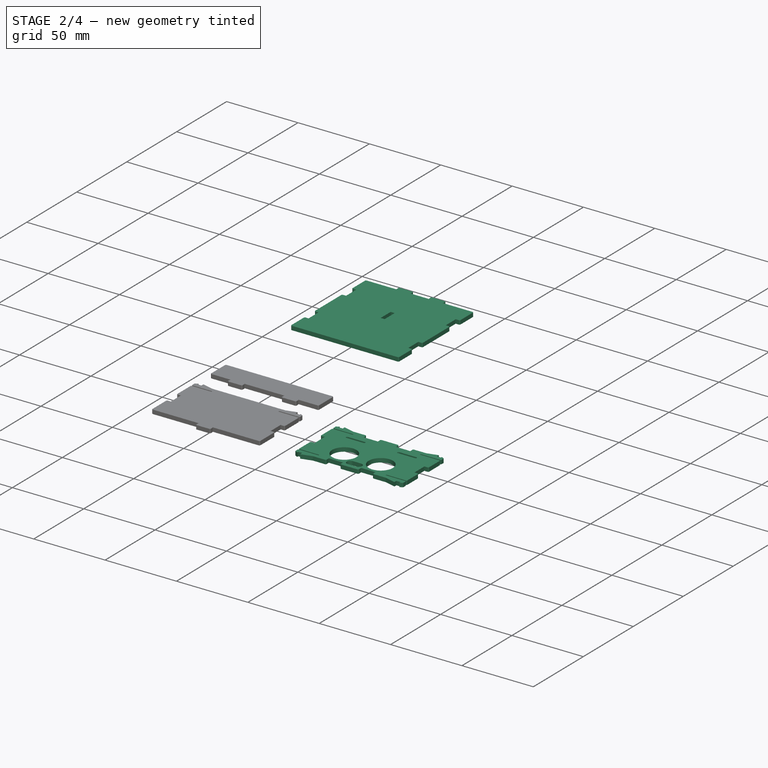
[diagram: stage 2 of 4 — iso view after this stage's code; geometry added in this stage tinted green]
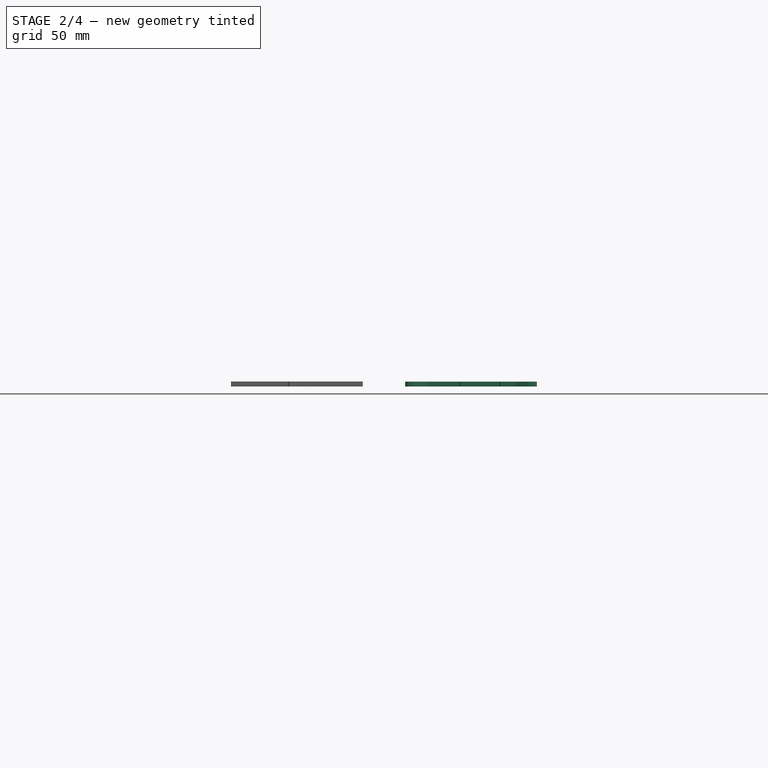
[diagram: stage 2 of 4 — front view after this stage's code; geometry added in this stage tinted green]
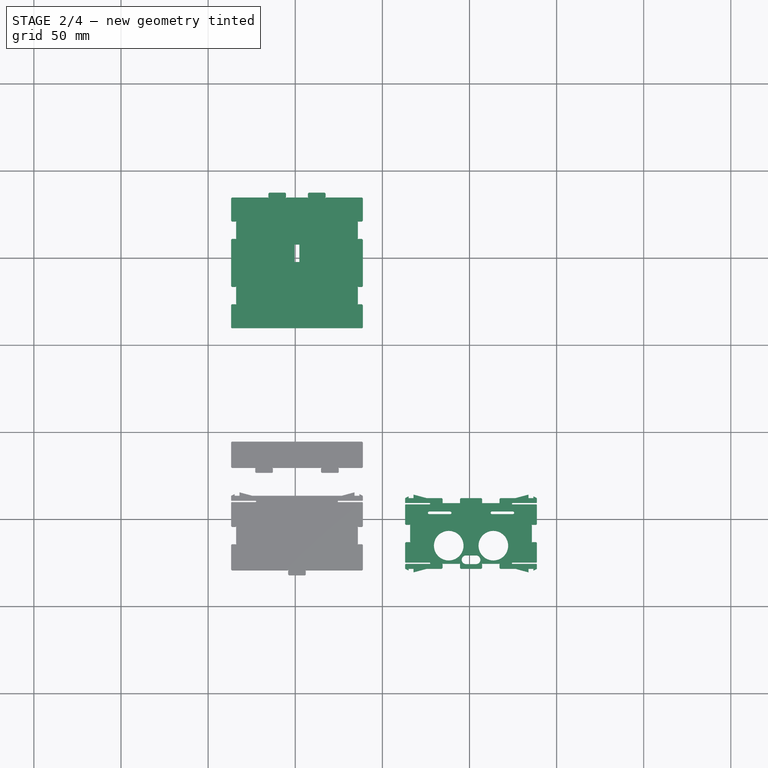
[diagram: stage 2 of 4 — top view after this stage's code; geometry added in this stage tinted green]
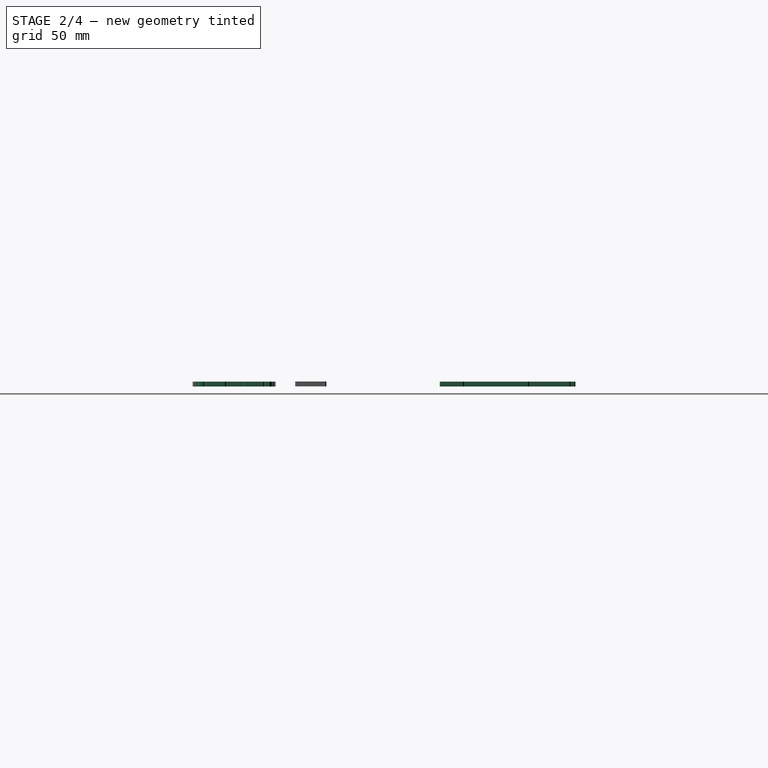
[diagram: stage 2 of 4 — right view after this stage's code; geometry added in this stage tinted green]
FEATURE [Part::Chamfer] Chamfer005
  Base = -> test005
  EdgeLinks = -> test005 [Edge243,Edge248,Edge249,Edge254,Edge269,Edge274,Edge289,Edge294,Edge295,Edge300,Edge315,Edge320]
  Edges = 12 edges r=0.5: [Edge243,Edge248,Edge249,Edge254,Edge269,Edge274,Edge289,Edge294,Edge295,Edge300,Edge315,Edge320]
FEATURE [Part::Chamfer] Chamfer006
  Base = -> test006
  EdgeLinks = -> test006 [Edge1,Edge2,Edge7,Edge9,Edge27,Edge30,Edge45,Edge48,Edge59,Edge61,Edge81,Edge83,Edge95,Edge98,Edge125,Edge126]
  Edges = 16 edges r=0.5: [Edge1,Edge2,Edge7,Edge9,Edge27,Edge30,Edge45,Edge48,Edge59,Edge61,Edge81,Edge83,Edge95,Edge98,Edge125,Edge126]
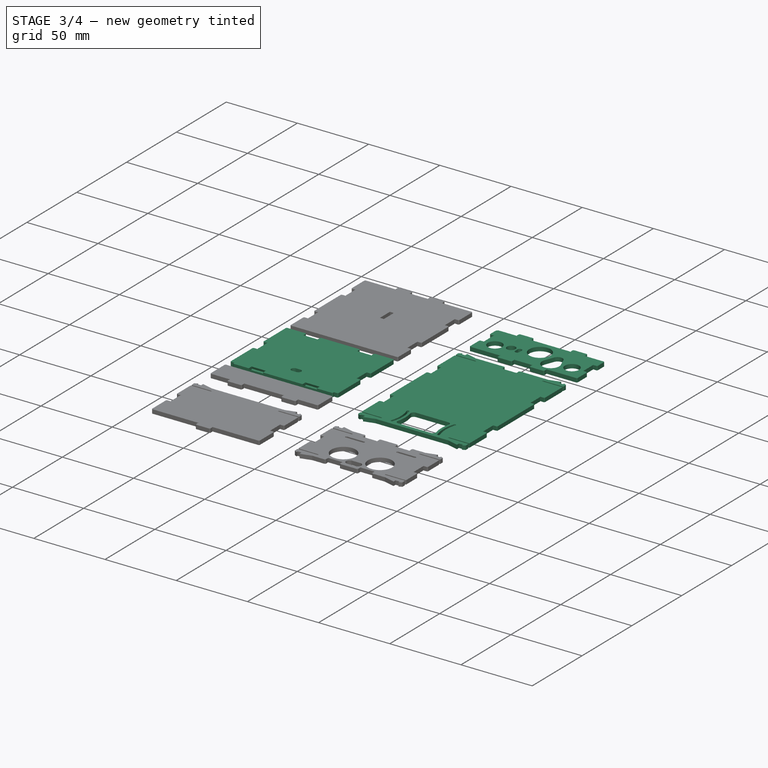
[diagram: stage 3 of 4 — iso view after this stage's code; geometry added in this stage tinted green]
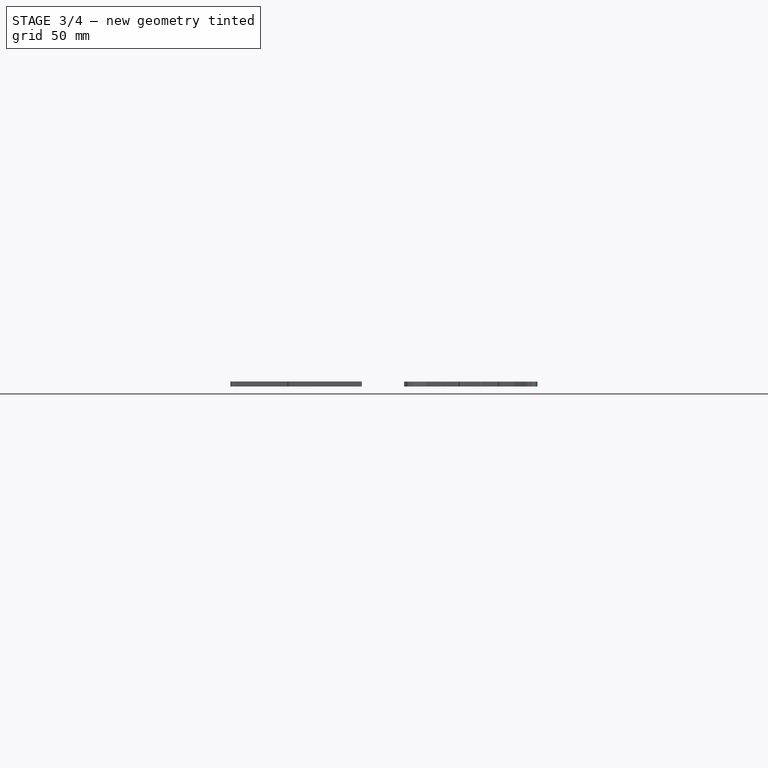
[diagram: stage 3 of 4 — front view after this stage's code; geometry added in this stage tinted green]
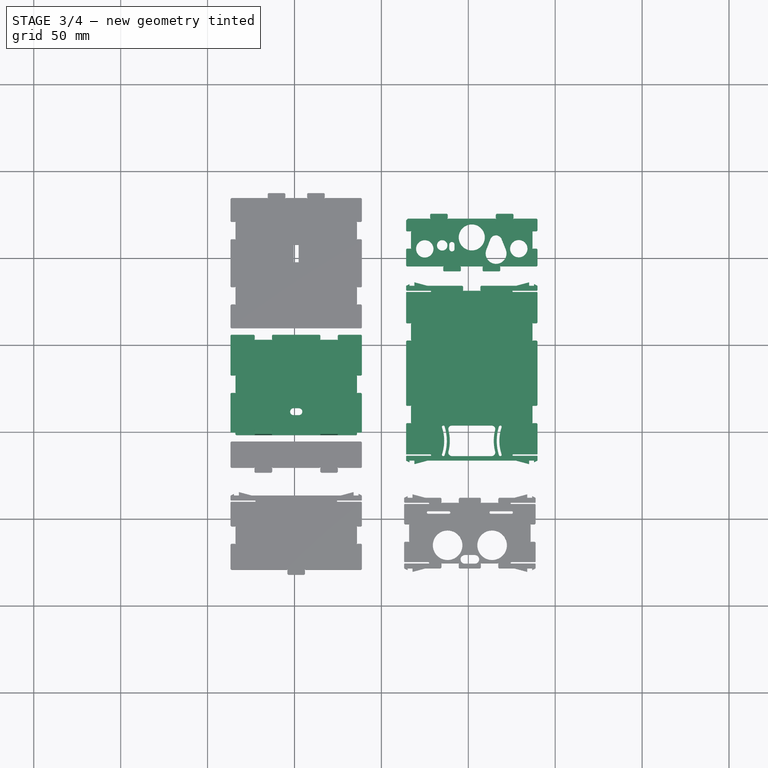
[diagram: stage 3 of 4 — top view after this stage's code; geometry added in this stage tinted green]
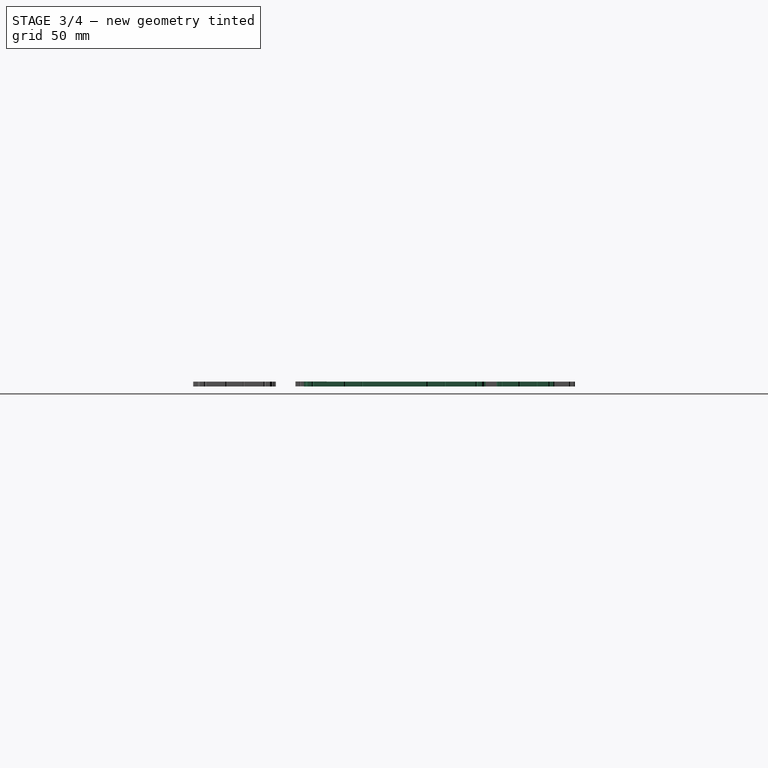
[diagram: stage 3 of 4 — right view after this stage's code; geometry added in this stage tinted green]
FEATURE [Part::Chamfer] Chamfer002
  Base = -> test002
  EdgeLinks = -> test002 [Edge227,Edge232,Edge233,Edge238,Edge267,Edge272,Edge273,Edge278,Edge293,Edge298]
  Edges = 10 edges r=0.5: [Edge227,Edge232,Edge233,Edge238,Edge267,Edge272,Edge273,Edge278,Edge293,Edge298]
FEATURE [Part::Chamfer] Chamfer003
  Base = -> test003
  EdgeLinks = -> test003 [Edge2,Edge4,Edge104,Edge105,Edge107,Edge118,Edge142,Edge143,Edge148,Edge149,Edge150,Edge155,Edge156,Edge164]
  Edges = 14 edges r=0.5: [Edge2,Edge4,Edge104,Edge105,Edge107,Edge118,Edge142,Edge143,Edge148,Edge149,Edge150,Edge155,Edge156,Edge164]
FEATURE [Part::Chamfer] Chamfer004
  Base = -> test004
  EdgeLinks = -> test004 [Edge4,Edge7,Edge17,Edge20,Edge39,Edge42,Edge52,Edge55,Edge69,Edge73,Edge85,Edge88,Edge107,Edge110,Edge115,Edge123]
  Edges = 16 edges: [Edge4 r=0.5,Edge7 r=1,Edge17 r=0.5,Edge20 r=0.5,Edge39 r=0.5,Edge42 r=0.5,Edge52 r=0.5,Edge55 r=0.5,Edge69 r=0.5,Edge73 r=0.5,Edge85 r=0.5,Edge88 r=0.5,Edge107 r=0.5,Edge110 r=0.5,Edge115 r=0.5,Edge123 r=0.5]
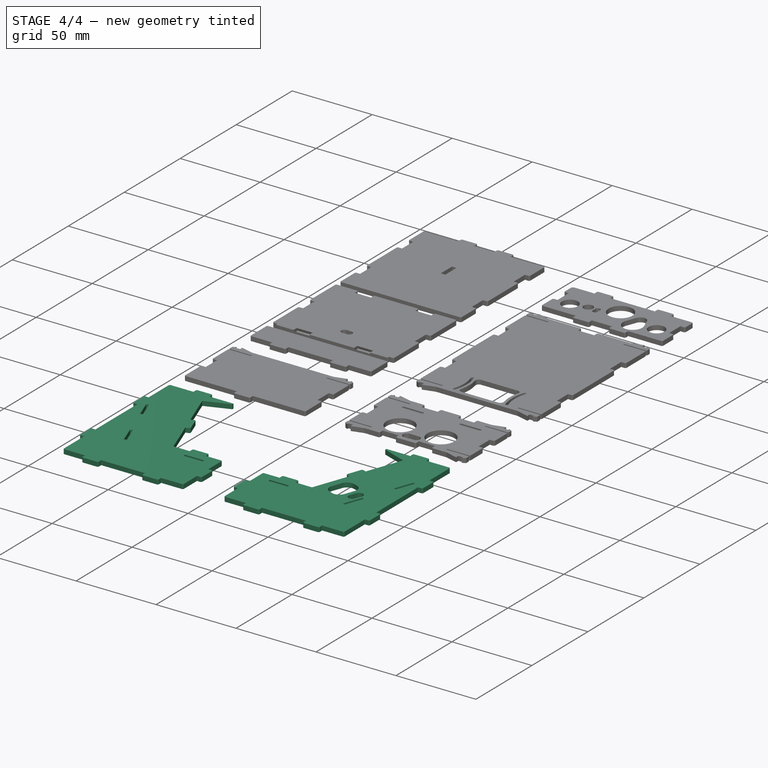
[diagram: stage 4 of 4 — iso view after this stage's code; geometry added in this stage tinted green]
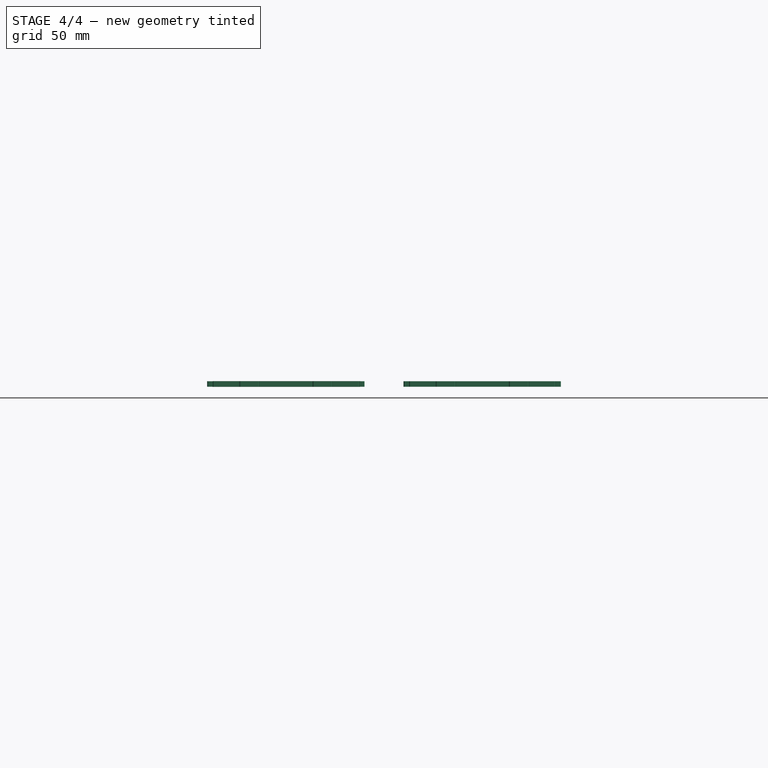
[diagram: stage 4 of 4 — front view after this stage's code; geometry added in this stage tinted green]
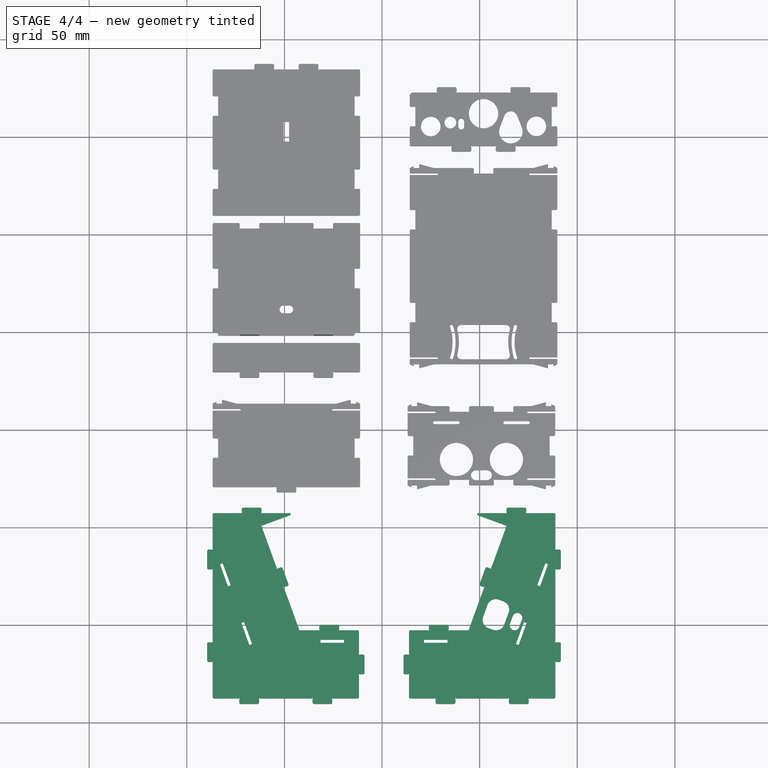
[diagram: stage 4 of 4 — top view after this stage's code; geometry added in this stage tinted green]
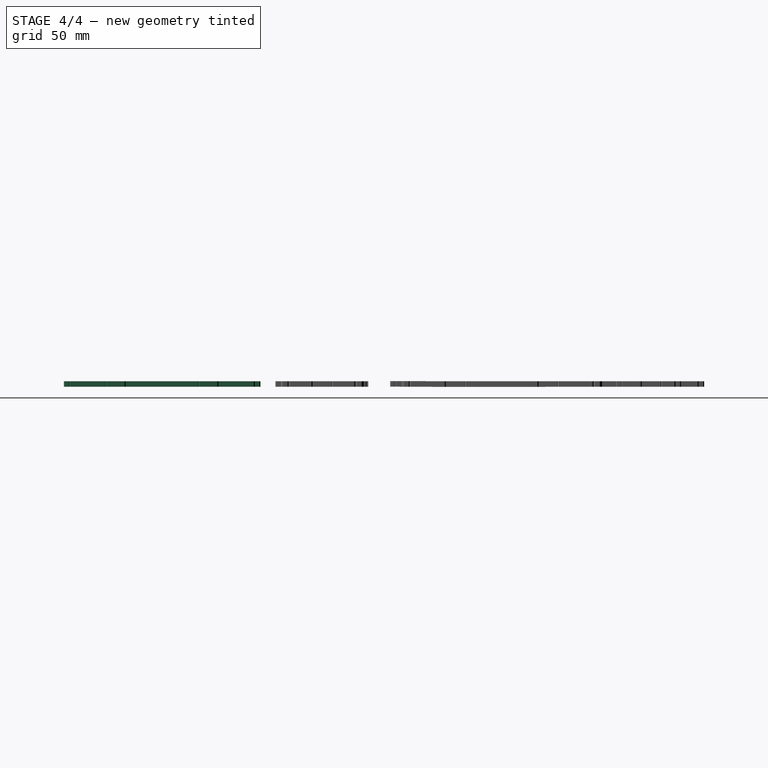
[diagram: stage 4 of 4 — right view after this stage's code; geometry added in this stage tinted green]
FEATURE [Part::Feature] test
  Placement = pos=(171.5,47,-35) rot=(-0.57735,-0.57735,-0.57735;2.0944rad)
  shape: bbox 80.6 x 100.6 x 2.8 mm, 82 faces (baked)
FEATURE [Part::Feature] test001
  Placement = pos=(30.5,47,-35) rot=(0.57735,-0.57735,-0.57735;4.18879rad)
  shape: bbox 80.6 x 100.6 x 2.8 mm, 70 faces (baked)
FEATURE [Part::Feature] test002
  Placement = pos=(152,221,20.1) rot=(-1,0,0;1.5708rad)
  shape: bbox 75.6 x 104.6 x 2.8 mm, 104 faces (baked)
FEATURE [Part::Feature] test003
  Placement = pos=(51,208,-25.7) rot=(-0.939693,0,0;1.22173rad)
  shape: bbox 75.6 x 58.11 x 2.925 mm, 56 faces (baked)
FEATURE [Part::Feature] test004
  Placement = pos=(152,353,-0.4) rot=(0,0,1;0rad)
  shape: bbox 75.6 x 33.14 x 2.8 mm, 54 faces (baked)
FEATURE [Part::Feature] test005
  Placement = pos=(150.9,159,60.5) rot=(0,0.707107,0.707107;3.14159rad)
  shape: bbox 75.6 x 44.6 x 2.8 mm, 108 faces (baked)
FEATURE [Part::Feature] test006
  Placement = pos=(51,277,-34.6) rot=(1,0,0;3.14159rad)
  shape: bbox 75.6 x 77.8 x 2.8 mm, 46 faces (baked)
FEATURE [Part::Feature] test007
  Placement = pos=(51,138,-60.4) rot=(0,0,1;3.14159rad)
  shape: bbox 75.6 x 47.6 x 2.8 mm, 50 faces (baked)
FEATURE [Part::Feature] test008
  Placement = pos=(51,151,48.1) rot=(-0.34202,0,0;2.79253rad)
  shape: bbox 75.6 x 17.92 x 2.8 mm, 18 faces (baked)
FEATURE [Part::Feature] test009
  Placement = pos=(171.5,47,-33) rot=(-0.57735,-0.57735,-0.57735;2.0944rad)
  shape: bbox 90.2 x 110.2 x 2.8 mm, 46 faces (baked)
FEATURE [Part::Feature] test010
  Placement = pos=(30.5,47,-33) rot=(0.57735,-0.57735,-0.57735;4.18879rad)
  shape: bbox 90.2 x 110.2 x 2.8 mm, 46 faces (baked)
FEATURE [Sketcher::SketchObject] Sketch
  ArcFitTolerance = 1e-06
  FullyConstrained = true
  MakeInternals = false
  sketch-geometry (52):
    g0: LineSegment StartX=5 StartY=0 StartZ=0 EndX=95 EndY=0 EndZ=0
    g1: LineSegment StartX=100 StartY=5 StartZ=0 EndX=100 EndY=165 EndZ=0
    g2: LineSegment StartX=95 StartY=170 StartZ=0 EndX=5 EndY=170 EndZ=0
    g3: LineSegment StartX=0 StartY=165 StartZ=0 EndX=0 EndY=5 EndZ=0
    g4: LineSegment StartX=5 StartY=171 StartZ=0 EndX=95 EndY=171 EndZ=0
    g5: LineSegment StartX=100 StartY=176 StartZ=0 EndX=100 EndY=336 EndZ=0
    g6: LineSegment StartX=95 StartY=341 StartZ=0 EndX=5 EndY=341 EndZ=0
    g7: LineSegment StartX=0 StartY=336 StartZ=0 EndX=0 EndY=176 EndZ=0
    g8: LineSegment StartX=106 StartY=171 StartZ=0 EndX=196 EndY=171 EndZ=0
    g9: LineSegment StartX=201 StartY=176 StartZ=0 EndX=201 EndY=336 EndZ=0
    g10: LineSegment StartX=196 StartY=341 StartZ=0 EndX=106 EndY=341 EndZ=0
    g11: LineSegment StartX=101 StartY=336 StartZ=0 EndX=101 EndY=176 EndZ=0
    g12: LineSegment StartX=106 StartY=0 StartZ=0 EndX=196 EndY=0 EndZ=0
    g13: LineSegment StartX=201 StartY=5 StartZ=0 EndX=201 EndY=165 EndZ=0
    g14: LineSegment StartX=196 StartY=170 StartZ=0 EndX=106 EndY=170 EndZ=0
    g15: LineSegment StartX=101 StartY=165 StartZ=0 EndX=101 EndY=5 EndZ=0
    g16: LineSegment [constr] StartX=100 StartY=170 StartZ=0 EndX=101 EndY=170 EndZ=0
    g17: LineSegment [constr] StartX=101 StartY=170 StartZ=0 EndX=101 EndY=171 EndZ=0
    g18: LineSegment [constr] StartX=101 StartY=171 StartZ=0 EndX=100 EndY=171 EndZ=0
    g19: LineSegment [constr] StartX=100 StartY=171 StartZ=0 EndX=100 EndY=170 EndZ=0
    g20: ArcOfCircle CenterX=5 CenterY=5 CenterZ=0 NormalX=0 NormalY=0 NormalZ=1 AngleXU=0 Radius=5 StartAngle=3.14159 EndAngle=4.71239
    g21: GeomPoint [constr] X=0 Y=0 Z=0
    g22: ArcOfCircle CenterX=95 CenterY=5 CenterZ=0 NormalX=0 NormalY=0 NormalZ=1 AngleXU=0 Radius=5 StartAngle=4.71239 EndAngle=6.28319
    g23: GeomPoint [constr] X=100 Y=0 Z=0
    g24: ArcOfCircle CenterX=106 CenterY=5 CenterZ=0 NormalX=0 NormalY=0 NormalZ=1 AngleXU=0 Radius=5 StartAngle=3.14159 EndAngle=4.71239
    g25: GeomPoint [constr] X=101 Y=0 Z=0
    g26: ArcOfCircle CenterX=196 CenterY=5 CenterZ=0 NormalX=0 NormalY=0 NormalZ=1 AngleXU=0 Radius=5 StartAngle=4.71239 EndAngle=6.28319
    g27: GeomPoint [constr] X=201 Y=0 Z=0
    g28: ArcOfCircle CenterX=95 CenterY=176 CenterZ=0 NormalX=0 NormalY=0 NormalZ=1 AngleXU=0 Radius=5 StartAngle=4.71239 EndAngle=6.28319
    g29: GeomPoint [constr] X=100 Y=171 Z=0
    g30: ArcOfCircle CenterX=95 CenterY=165 CenterZ=0 NormalX=0 NormalY=0 NormalZ=1 AngleXU=0 Radius=5 StartAngle=3e-16 EndAngle=1.5708
    g31: GeomPoint [constr] X=100 Y=170 Z=0
    g32: ArcOfCircle CenterX=106 CenterY=165 CenterZ=0 NormalX=0 NormalY=0 NormalZ=1 AngleXU=0 Radius=5 StartAngle=1.5708 EndAngle=3.14159
    g33: GeomPoint [constr] X=101 Y=170 Z=0
    g34: ArcOfCircle CenterX=106 CenterY=176 CenterZ=0 NormalX=0 NormalY=0 NormalZ=1 AngleXU=0 Radius=5 StartAngle=3.14159 EndAngle=4.71239
    g35: GeomPoint [constr] X=101 Y=171 Z=0
    g36: ArcOfCircle CenterX=5 CenterY=176 CenterZ=0 NormalX=0 NormalY=0 NormalZ=1 AngleXU=0 Radius=5 StartAngle=3.14159 EndAngle=4.71239
    g37: GeomPoint [constr] X=0 Y=171 Z=0
    g38: ArcOfCircle CenterX=196 CenterY=176 CenterZ=0 NormalX=0 NormalY=0 NormalZ=1 AngleXU=0 Radius=5 StartAngle=4.71239 EndAngle=6.28319
    g39: GeomPoint [constr] X=201 Y=171 Z=0
    g40: ArcOfCircle CenterX=196 CenterY=165 CenterZ=0 NormalX=0 NormalY=0 NormalZ=1 AngleXU=0 Radius=5 StartAngle=2.4e-15 EndAngle=1.5708
    g41: GeomPoint [constr] X=201 Y=170 Z=0
    g42: ArcOfCircle CenterX=5 CenterY=165 CenterZ=0 NormalX=0 NormalY=0 NormalZ=1 AngleXU=0 Radius=5 StartAngle=1.5708 EndAngle=3.14159
    g43: GeomPoint [constr] X=0 Y=170 Z=0
    g44: ArcOfCircle CenterX=5 CenterY=336 CenterZ=0 NormalX=0 NormalY=0 NormalZ=1 AngleXU=0 Radius=5 StartAngle=1.5708 EndAngle=3.14159
    g45: GeomPoint [constr] X=0 Y=341 Z=0
    g46: ArcOfCircle CenterX=95 CenterY=336 CenterZ=0 NormalX=0 NormalY=0 NormalZ=1 AngleXU=0 Radius=5 StartAngle=1.7e-15 EndAngle=1.5708
    g47: GeomPoint [constr] X=100 Y=341 Z=0
    g48: ArcOfCircle CenterX=106 CenterY=336 CenterZ=0 NormalX=0 NormalY=0 NormalZ=1 AngleXU=0 Radius=5 StartAngle=1.5708 EndAngle=3.14159
    g49: GeomPoint [constr] X=101 Y=341 Z=0
    g50: ArcOfCircle CenterX=196 CenterY=336 CenterZ=0 NormalX=0 NormalY=0 NormalZ=1 AngleXU=0 Radius=5 StartAngle=-2.7e-15 EndAngle=1.5708
    g51: GeomPoint [constr] X=201 Y=341 Z=0
  constraints (119):
    c: Horizontal(g0)
    c: Horizontal(g2)
    c: Vertical(g1)
    c: Vertical(g3)
    c: Coincident(g21,g-1)
    c: Horizontal(g4)
    c: Horizontal(g6)
    c: Vertical(g5)
    c: Vertical(g7)
    c: Horizontal(g8)
    c: Horizontal(g10)
    c: Vertical(g9)
    c: Vertical(g11)
    c: Horizontal(g12)
    c: Horizontal(g14)
    c: Vertical(g13)
    c: Vertical(g15)
    c: DistanceX(g21,g23) = 100
    c: DistanceY(g21,g43) = 170
    c: Coincident(g16,g17)
    c: Coincident(g17,g18)
    c: Coincident(g18,g19)
    c: Coincident(g19,g16)
    c: Horizontal(g16)
    c: Horizontal(g18)
    c: Vertical(g17)
    c: Vertical(g19)
    c: Distance(g17,g19) = 1
    c: Distance(g16,g18) = 1
    c: Coincident(g16,g31)
    c: Coincident(g18,g29)
    c: Coincident(g17,g35)
    c: Coincident(g16,g33)
    c: PointOnObject(g21,g0)
    c: PointOnObject(g21,g3)
    c: Tangent(g0,g20) = -1.5708
    c: Tangent(g3,g20) = -1.5708
    c: PointOnObject(g23,g0)
    c: PointOnObject(g23,g1)
    c: Tangent(g0,g22) = -1.5708
    c: Tangent(g1,g22) = -1.5708
    c: PointOnObject(g25,g12)
    c: PointOnObject(g25,g15)
    c: Tangent(g12,g24) = -1.5708
    c: Tangent(g15,g24) = -1.5708
    c: PointOnObject(g27,g13)
    c: PointOnObject(g27,g12)
    c: Tangent(g13,g26) = -1.5708
    c: Tangent(g12,g26) = -1.5708
    c: PointOnObject(g29,g5)
    c: PointOnObject(g29,g4)
    c: Tangent(g5,g28) = -1.5708
    c: Tangent(g4,g28) = -1.5708
    c: PointOnObject(g31,g2)
    c: PointOnObject(g31,g1)
    c: Tangent(g2,g30) = -1.5708
    c: Tangent(g1,g30) = -1.5708
    c: PointOnObject(g33,g14)
    c: PointOnObject(g33,g15)
    c: Tangent(g14,g32) = -1.5708
    c: Tangent(g15,g32) = -1.5708
    c: PointOnObject(g35,g8)
    c: PointOnObject(g35,g11)
    c: Tangent(g8,g34) = -1.5708
    c: Tangent(g11,g34) = -1.5708
    c: PointOnObject(g37,g4)
    c: PointOnObject(g37,g7)
    c: Tangent(g4,g36) = -1.5708
    c: Tangent(g7,g36) = -1.5708
    c: PointOnObject(g39,g8)
    c: PointOnObject(g39,g9)
    c: Tangent(g8,g38) = -1.5708
    c: Tangent(g9,g38) = -1.5708
    c: PointOnObject(g41,g14)
    c: PointOnObject(g41,g13)
    c: Tangent(g14,g40) = -1.5708
    c: Tangent(g13,g40) = -1.5708
    c: PointOnObject(g43,g2)
    c: PointOnObject(g43,g3)
    c: Tangent(g2,g42) = -1.5708
    c: Tangent(g3,g42) = -1.5708
    c: PointOnObject(g45,g6)
    c: PointOnObject(g45,g7)
    c: Tangent(g6,g44) = -1.5708
    c: Tangent(g7,g44) = -1.5708
    c: PointOnObject(g47,g6)
    c: PointOnObject(g47,g5)
    c: Tangent(g6,g46) = -1.5708
    c: Tangent(g5,g46) = -1.5708
    c: PointOnObject(g49,g10)
    c: PointOnObject(g49,g11)
    c: Tangent(g10,g48) = -1.5708
    c: Tangent(g11,g48) = -1.5708
    c: PointOnObject(g51,g10)
    c: PointOnObject(g51,g9)
    c: Tangent(g10,g50) = -1.5708
    c: Tangent(g9,g50) = -1.5708
    c: Equal(g50,g48)
    c: Equal(g48,g46)
    c: Equal(g46,g44)
    c: Equal(g44,g36)
    c: Equal(g36,g42)
    c: Equal(g42,g28)
    c: Equal(g28,g34)
    c: Equal(g34,g32)
    c: Equal(g32,g30)
    c: Equal(g30,g38)
    c: Equal(g38,g40)
    c: Equal(g40,g26)
    c: Equal(g26,g24)
    c: Equal(g24,g22)
    c: Equal(g22,g20)
    c: Radius(g20) = 5
    c: Vertical(g37,g43)
    c: Horizontal(g25,g23)
    c: Vertical(g39,g41)
    c: Horizontal(g47,g49)
    c: Equal(g7,g3)
    c: Equal(g6,g10)
FEATURE [Part::Chamfer] Chamfer
  Base = -> test
  EdgeLinks = -> test [Edge25,Edge27,Edge39,Edge50,Edge52,Edge72,Edge74,Edge86,Edge97,Edge99,Edge119,Edge121,Edge133,Edge144,Edge146,Edge158,Edge169,Edge171,Edge194,Edge196]
  Edges = 20 edges r=0.5: [Edge25,Edge27,Edge39,Edge50,Edge52,Edge72,Edge74,Edge86,Edge97,Edge99,Edge119,Edge121,Edge133,Edge144,Edge146,Edge158,Edge169,Edge171,Edge194,Edge196]
FEATURE [Part::Chamfer] Chamfer001
  Base = -> test001
  EdgeLinks = -> test001 [Edge25,Edge27,Edge39,Edge50,Edge52,Edge72,Edge74,Edge86,Edge97,Edge99,Edge119,Edge121,Edge133,Edge144,Edge146,Edge158,Edge169,Edge171,Edge194,Edge196]
  Edges = 20 edges r=0.5: [Edge25,Edge27,Edge39,Edge50,Edge52,Edge72,Edge74,Edge86,Edge97,Edge99,Edge119,Edge121,Edge133,Edge144,Edge146,Edge158,Edge169,Edge171,Edge194,Edge196]
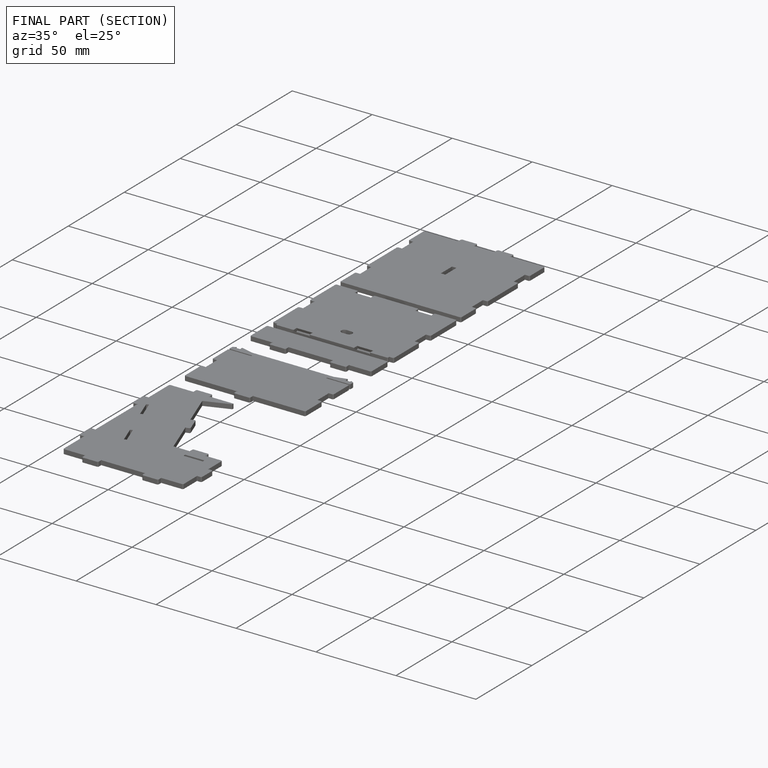
[diagram: finished part — half-section view (interior)]
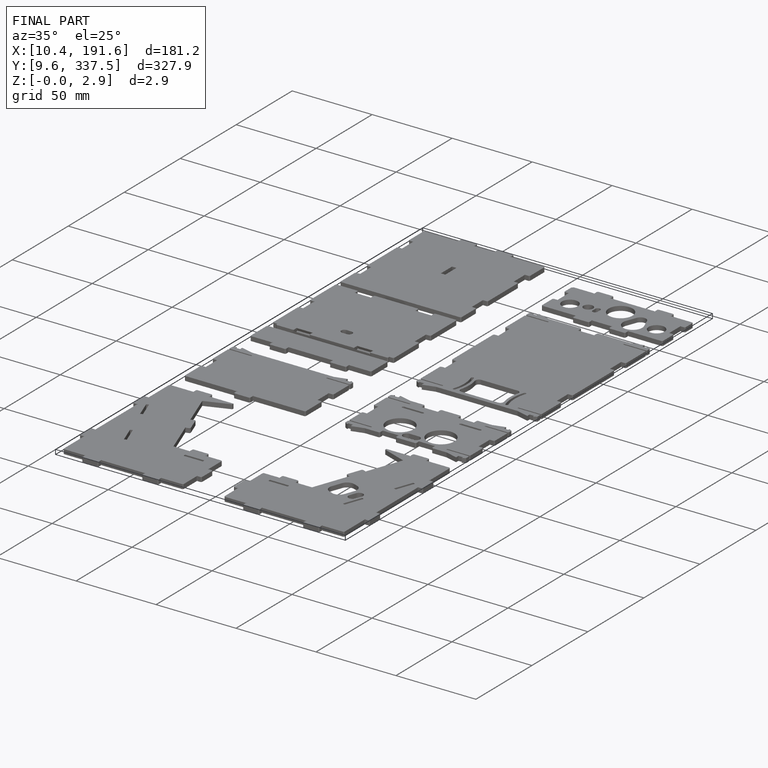
[diagram: finished part — iso view with bounding-box wireframe]
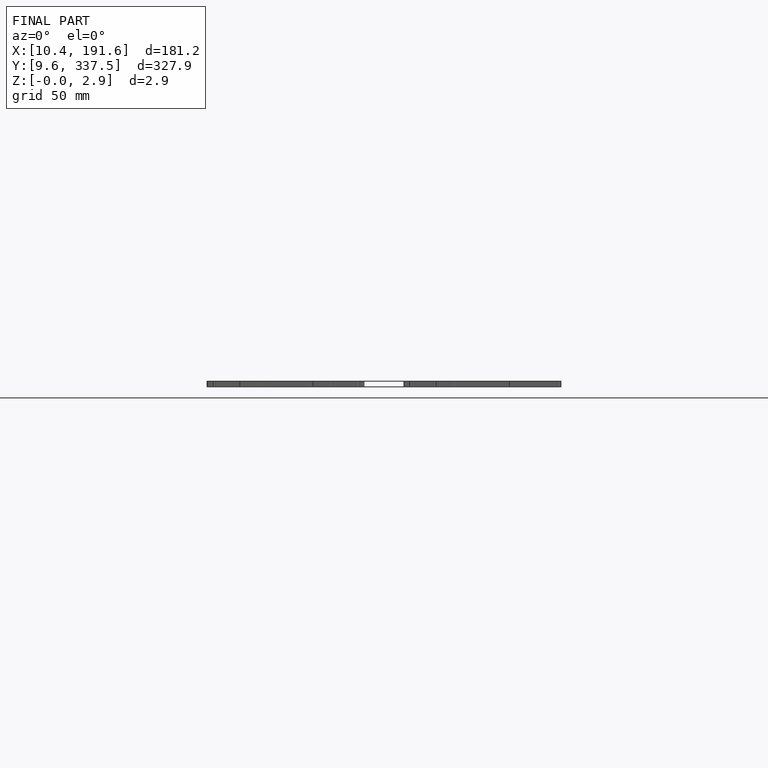
[diagram: finished part — front view with bounding-box wireframe]
